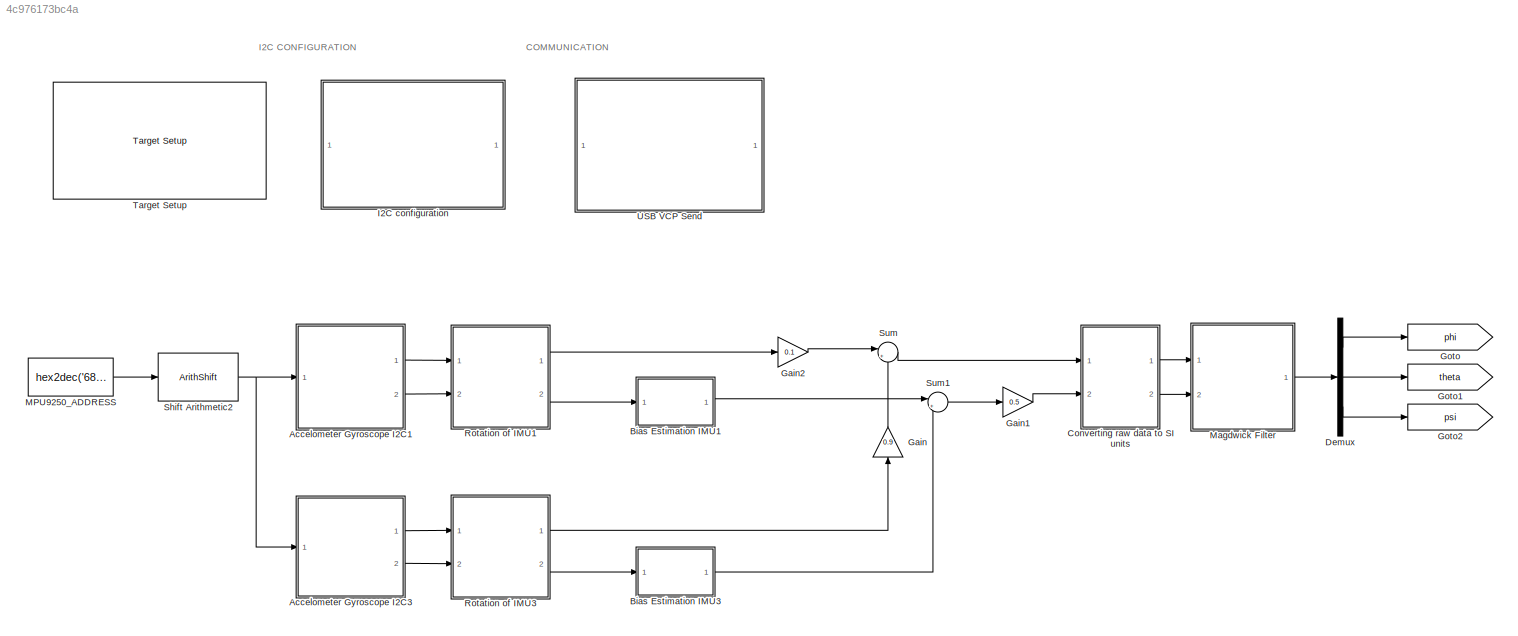
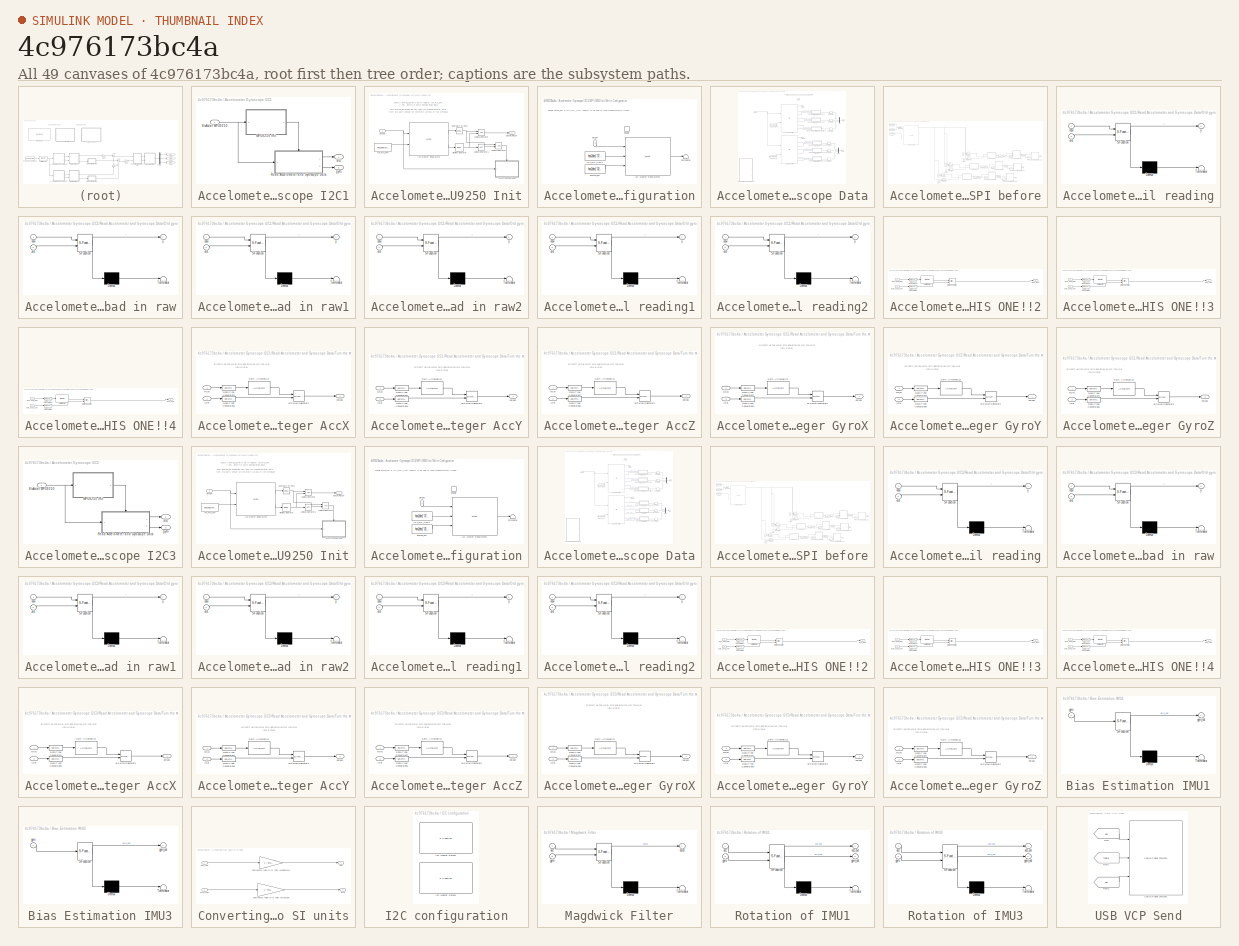
[diagram: thumbnail index - all 49 canvases of the model, root first then tree order]
MODEL slx_4c976173bc4a
KIND model
CONFIG AbsTol = auto
CONFIG EnableMultiTasking = off
CONFIG FixedStep = auto
CONFIG InitFcn = cubeparameters
CONFIG MaxStep = auto
CONFIG MinStep = auto
CONFIG PreLoadFcn = waijung.modelPreload; % Required for working with Waijung Blockset. Do not remove.
CONFIG RelTol = 1e-3
CONFIG SampleTimeConstraint = Unconstrained
CONFIG Solver = FixedStepAuto
CONFIG SolverName = FixedStepAuto
CONFIG StartTime = 0.0
CONFIG StopTime = 10.0
BLOCK [Constant]  MPU9250_ADDRESS
  OutDataTypeStr = uint8
  SampleTime = Ts.IMU
  Value = hex2dec('68')
BLOCK [SubSystem] Accelometer Gyroscope I2C1
  Ports = [1, 2]
  RequestExecContextInheritance = off
  Variant = off
BLOCK [SubSystem] Accelometer Gyroscope I2C1/MPU9250 Init
  Ports = [1, 1]
  RequestExecContextInheritance = off
  Variant = off
BLOCK [Reference] Accelometer Gyroscope I2C1/MPU9250 Init/Bitwise Operator  REF=simulink/Logic and Bit
Operations/Bitwise
Operator
  Ports = [1, 1]
  SourceBlock = simulink/Logic and Bit\nOperations/Bitwise\nOperator
  SourceType = Bitwise Operator
BLOCK [Reference] Accelometer Gyroscope I2C1/MPU9250 Init/Compare To Zero  REF=simulink/Logic and Bit
Operations/Compare
To Zero
  Ports = [1, 1]
  SourceBlock = simulink/Logic and Bit\nOperations/Compare\nTo Zero
  SourceType = Compare To Zero
BLOCK [Reference] Accelometer Gyroscope I2C1/MPU9250 Init/I2C Master Read//Write  REF=stm32f4_i2c_lib/I2C Master Read//Write
  Ports = [2, 2]
  SourceBlock = stm32f4_i2c_lib/I2C Master Read//Write
  SourceType = stm32f4_i2c
BLOCK [Constant] Accelometer Gyroscope I2C1/MPU9250 Init/INT_PIN_CFG
  OutDataTypeStr = uint8
  SampleTime = -1
  Value = hex2dec('37')
BLOCK [Logic] Accelometer Gyroscope I2C1/MPU9250 Init/Logical Operator
  AllPortsSameDT = off
  OutDataTypeStr = boolean
  Ports = [2, 1]
BLOCK [Logic] Accelometer Gyroscope I2C1/MPU9250 Init/Logical Operator1
  AllPortsSameDT = off
  Operator = NOT
  OutDataTypeStr = boolean
  Ports = [1, 1]
BLOCK [Logic] Accelometer Gyroscope I2C1/MPU9250 Init/Logical Operator2
  AllPortsSameDT = off
  OutDataTypeStr = boolean
  Ports = [2, 1]
BLOCK [Outport] Accelometer Gyroscope I2C1/MPU9250 Init/SETUP_READY
  IconDisplay = Port number
BLOCK [Inport] Accelometer Gyroscope I2C1/MPU9250 Init/SlvAddr
  IconDisplay = Port number
BLOCK [SubSystem] Accelometer Gyroscope I2C1/MPU9250 Init/Write Configuration
  Ports = [1, 0, 1]
  RequestExecContextInheritance = off
  Variant = off
BLOCK [Constant] Accelometer Gyroscope I2C1/MPU9250 Init/Write Configuration/BYPASS_EN
  OutDataTypeStr = uint8
  SampleTime = -1
  Value = hex2dec('02')
BLOCK [EnablePort] Accelometer Gyroscope I2C1/MPU9250 Init/Write Configuration/Enable
  Ports = []
BLOCK [Reference] Accelometer Gyroscope I2C1/MPU9250 Init/Write Configuration/I2C Master Read//Write1  REF=stm32f4_i2c_lib/I2C Master Read//Write
  Ports = [3, 1]
  SourceBlock = stm32f4_i2c_lib/I2C Master Read//Write
  SourceType = stm32f4_i2c
BLOCK [Constant] Accelometer Gyroscope I2C1/MPU9250 Init/Write Configuration/INT_PIN_CFG1
  OutDataTypeStr = uint8
  SampleTime = -1
  Value = hex2dec('37')
BLOCK [Inport] Accelometer Gyroscope I2C1/MPU9250 Init/Write Configuration/SlvAddr
  IconDisplay = Port number
BLOCK [Terminator] Accelometer Gyroscope I2C1/MPU9250 Init/Write Configuration/Terminator
BLOCK [SubSystem] Accelometer Gyroscope I2C1/Read Accelometer and Gyroscope Data
  Ports = [1, 2, 1]
  RequestExecContextInheritance = off
  Variant = off
BLOCK [Constant] Accelometer Gyroscope I2C1/Read Accelometer and Gyroscope Data/ACCEL_XOUT_H
  OutDataTypeStr = uint8
  SampleTime = -1
  Value = hex2dec('3B')
BLOCK [Terminator] Accelometer Gyroscope I2C1/Read Accelometer and Gyroscope Data/DUMMY
BLOCK [DataTypeConversion] Accelometer Gyroscope I2C1/Read Accelometer and Gyroscope Data/Data Type Conversion1
  OutDataTypeStr = int16
  RndMeth = Floor
  SaturateOnIntegerOverflow = off
BLOCK [DataTypeConversion] Accelometer Gyroscope I2C1/Read Accelometer and Gyroscope Data/Data Type Conversion12
  OutDataTypeStr = int16
  RndMeth = Floor
  SaturateOnIntegerOverflow = off
BLOCK [DataTypeConversion] Accelometer Gyroscope I2C1/Read Accelometer and Gyroscope Data/Data Type Conversion16
  OutDataTypeStr = int16
  RndMeth = Floor
  SaturateOnIntegerOverflow = off
BLOCK [DataTypeConversion] Accelometer Gyroscope I2C1/Read Accelometer and Gyroscope Data/Data Type Conversion17
  OutDataTypeStr = int16
  RndMeth = Floor
  SaturateOnIntegerOverflow = off
BLOCK [DataTypeConversion] Accelometer Gyroscope I2C1/Read Accelometer and Gyroscope Data/Data Type Conversion18
  OutDataTypeStr = int16
  RndMeth = Floor
  SaturateOnIntegerOverflow = off
BLOCK [DataTypeConversion] Accelometer Gyroscope I2C1/Read Accelometer and Gyroscope Data/Data Type Conversion6
  OutDataTypeStr = int16
  RndMeth = Floor
  SaturateOnIntegerOverflow = off
BLOCK [EnablePort] Accelometer Gyroscope I2C1/Read Accelometer and Gyroscope Data/Enable
  Ports = []
BLOCK [Constant] Accelometer Gyroscope I2C1/Read Accelometer and Gyroscope Data/GYRO_XOUT_H
  OutDataTypeStr = uint8
  SampleTime = -1
  Value = hex2dec('43')
BLOCK [Reference] Accelometer Gyroscope I2C1/Read Accelometer and Gyroscope Data/I2C Master Read//Write  REF=stm32f4_i2c_lib/I2C Master Read//Write
  Ports = [2, 7]
  SourceBlock = stm32f4_i2c_lib/I2C Master Read//Write
  SourceType = stm32f4_i2c
BLOCK [Reference] Accelometer Gyroscope I2C1/Read Accelometer and Gyroscope Data/I2C Master Read//Write2  REF=stm32f4_i2c_lib/I2C Master Read//Write
  Ports = [2, 7]
  SourceBlock = stm32f4_i2c_lib/I2C Master Read//Write
  SourceType = stm32f4_i2c
BLOCK [Mux] Accelometer Gyroscope I2C1/Read Accelometer and Gyroscope Data/Mux
  DisplayOption = bar
  Inputs = 3
  Ports = [3, 1]
BLOCK [Mux] Accelometer Gyroscope I2C1/Read Accelometer and Gyroscope Data/Mux1
  DisplayOption = bar
  Inputs = 3
  Ports = [3, 1]
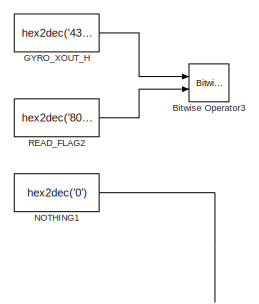
[diagram: Accelometer Gyroscope I2C1/Read Accelometer and Gyroscope Data/Old gyro get data Used during SPI before - part 1/4, top left region]
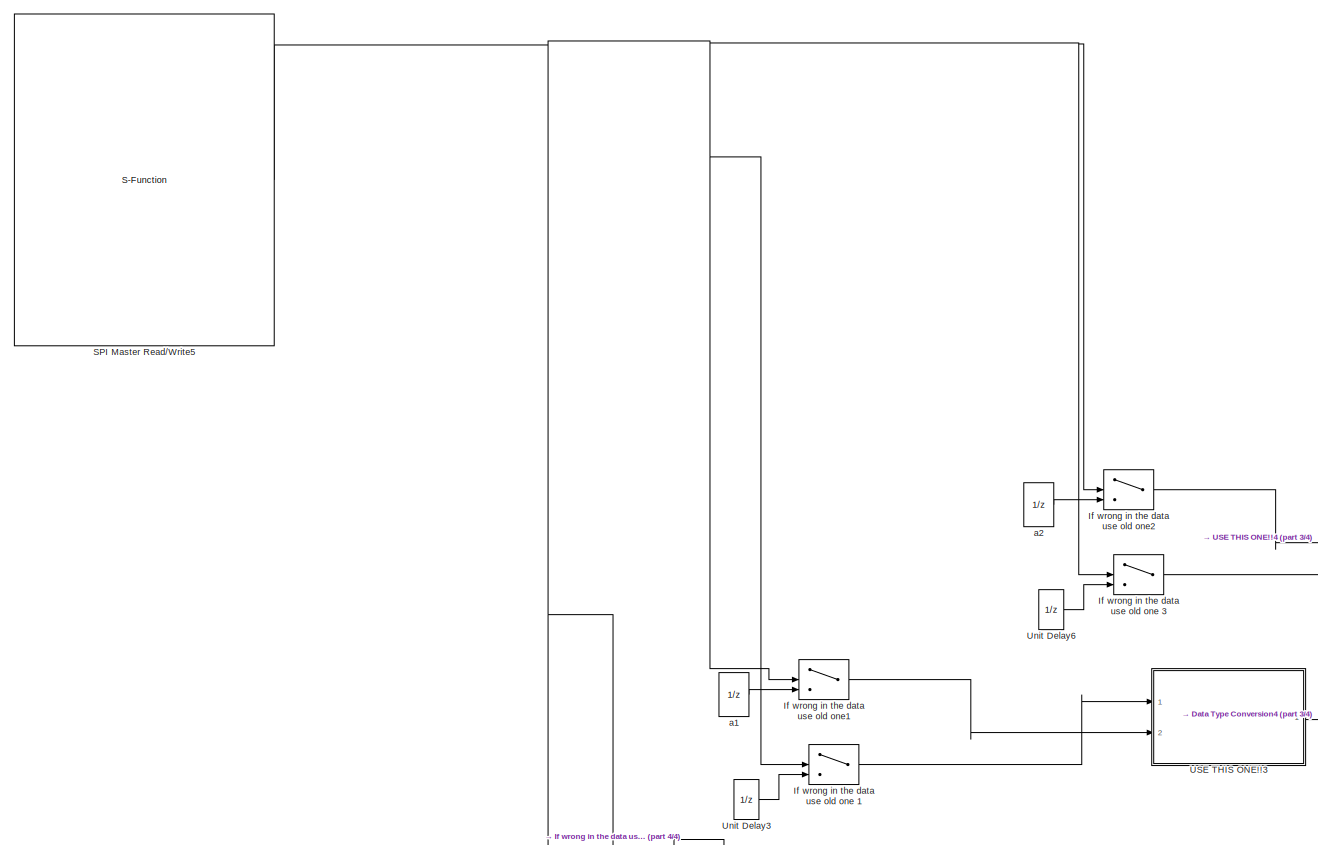
[diagram: Accelometer Gyroscope I2C1/Read Accelometer and Gyroscope Data/Old gyro get data Used during SPI before - part 2/4, center side, full height]
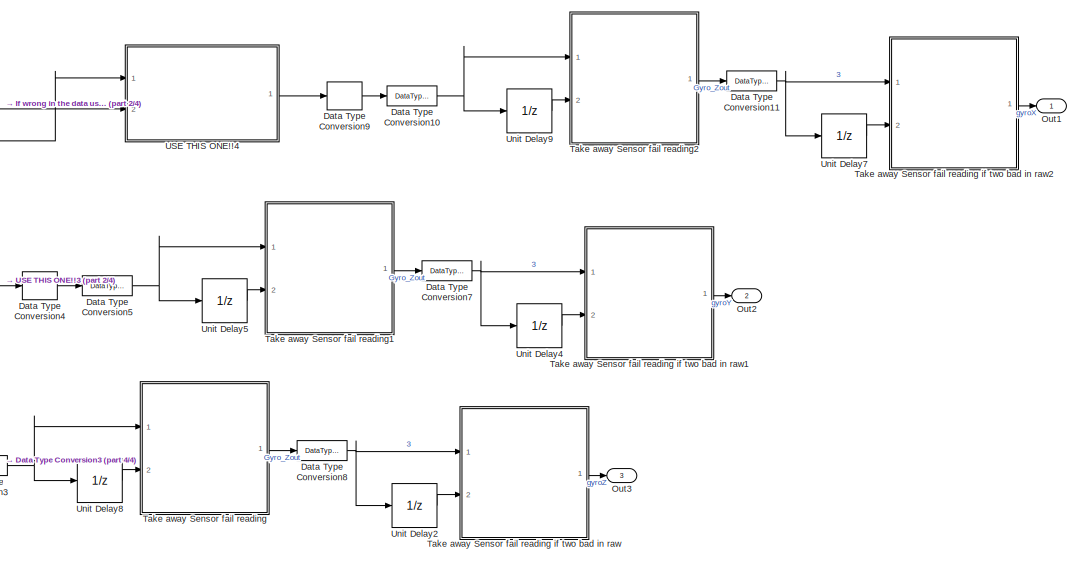
[diagram: Accelometer Gyroscope I2C1/Read Accelometer and Gyroscope Data/Old gyro get data Used during SPI before - part 3/4, bottom right region]
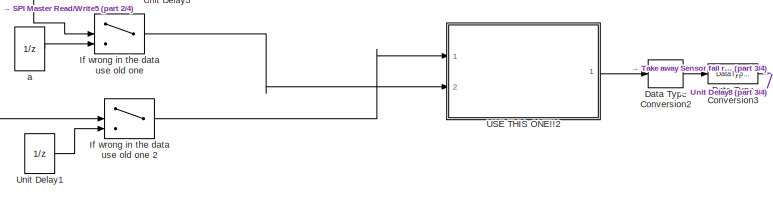
[diagram: Accelometer Gyroscope I2C1/Read Accelometer and Gyroscope Data/Old gyro get data Used during SPI before - part 4/4, bottom center region]
BLOCK [SubSystem] Accelometer Gyroscope I2C1/Read Accelometer and Gyroscope Data/Old gyro get data Used during SPI before
  Commented = on
  Ports = [0, 3]
  RequestExecContextInheritance = off
  Variant = off
BLOCK [UnitDelay] Accelometer Gyroscope I2C1/Read Accelometer and Gyroscope Data/Old gyro get data Used during SPI before/ a
  Commented = on
  InputProcessing = Elements as channels (sample based)
  SampleTime = -1
BLOCK [UnitDelay] Accelometer Gyroscope I2C1/Read Accelometer and Gyroscope Data/Old gyro get data Used during SPI before/ a1
  Commented = on
  InputProcessing = Elements as channels (sample based)
  SampleTime = -1
BLOCK [UnitDelay] Accelometer Gyroscope I2C1/Read Accelometer and Gyroscope Data/Old gyro get data Used during SPI before/ a2
  Commented = on
  InputProcessing = Elements as channels (sample based)
  SampleTime = -1
BLOCK [Reference] Accelometer Gyroscope I2C1/Read Accelometer and Gyroscope Data/Old gyro get data Used during SPI before/Bitwise Operator3  REF=simulink/Logic and Bit
Operations/Bitwise
Operator
  Commented = on
  Ports = [2, 1]
  SourceBlock = simulink/Logic and Bit\nOperations/Bitwise\nOperator
  SourceType = Bitwise Operator
BLOCK [DataTypeConversion] Accelometer Gyroscope I2C1/Read Accelometer and Gyroscope Data/Old gyro get data Used during SPI before/Data Type Conversion10
  Commented = on
  RndMeth = Floor
  SaturateOnIntegerOverflow = off
BLOCK [DataTypeConversion] Accelometer Gyroscope I2C1/Read Accelometer and Gyroscope Data/Old gyro get data Used during SPI before/Data Type Conversion11
  Commented = on
  RndMeth = Floor
  SaturateOnIntegerOverflow = off
BLOCK [DataTypeConversion] Accelometer Gyroscope I2C1/Read Accelometer and Gyroscope Data/Old gyro get data Used during SPI before/Data Type Conversion2
  Commented = on
  OutDataTypeStr = int16
  RndMeth = Floor
  SaturateOnIntegerOverflow = off
BLOCK [DataTypeConversion] Accelometer Gyroscope I2C1/Read Accelometer and Gyroscope Data/Old gyro get data Used during SPI before/Data Type Conversion3
  Commented = on
  RndMeth = Floor
  SaturateOnIntegerOverflow = off
BLOCK [DataTypeConversion] Accelometer Gyroscope I2C1/Read Accelometer and Gyroscope Data/Old gyro get data Used during SPI before/Data Type Conversion4
  Commented = on
  OutDataTypeStr = int16
  RndMeth = Floor
  SaturateOnIntegerOverflow = off
BLOCK [DataTypeConversion] Accelometer Gyroscope I2C1/Read Accelometer and Gyroscope Data/Old gyro get data Used during SPI before/Data Type Conversion5
  Commented = on
  RndMeth = Floor
  SaturateOnIntegerOverflow = off
BLOCK [DataTypeConversion] Accelometer Gyroscope I2C1/Read Accelometer and Gyroscope Data/Old gyro get data Used during SPI before/Data Type Conversion7
  Commented = on
  RndMeth = Floor
  SaturateOnIntegerOverflow = off
BLOCK [DataTypeConversion] Accelometer Gyroscope I2C1/Read Accelometer and Gyroscope Data/Old gyro get data Used during SPI before/Data Type Conversion8
  Commented = on
  RndMeth = Floor
  SaturateOnIntegerOverflow = off
BLOCK [DataTypeConversion] Accelometer Gyroscope I2C1/Read Accelometer and Gyroscope Data/Old gyro get data Used during SPI before/Data Type Conversion9
  Commented = on
  OutDataTypeStr = int16
  RndMeth = Floor
  SaturateOnIntegerOverflow = off
BLOCK [Constant] Accelometer Gyroscope I2C1/Read Accelometer and Gyroscope Data/Old gyro get data Used during SPI before/GYRO_XOUT_H
  Commented = on
  OutDataTypeStr = uint8
  Value = hex2dec('43')
BLOCK [Switch] Accelometer Gyroscope I2C1/Read Accelometer and Gyroscope Data/Old gyro get data Used during SPI before/If wrong in the data use old one
  Commented = on
  Criteria = u2 ~= 0
  InputSameDT = off
  SaturateOnIntegerOverflow = off
BLOCK [Switch] Accelometer Gyroscope I2C1/Read Accelometer and Gyroscope Data/Old gyro get data Used during SPI before/If wrong in the data use old one 1
  Commented = on
  Criteria = u2 ~= 0
  InputSameDT = off
  SaturateOnIntegerOverflow = off
BLOCK [Switch] Accelometer Gyroscope I2C1/Read Accelometer and Gyroscope Data/Old gyro get data Used during SPI before/If wrong in the data use old one 2
  Commented = on
  Criteria = u2 ~= 0
  InputSameDT = off
  SaturateOnIntegerOverflow = off
BLOCK [Switch] Accelometer Gyroscope I2C1/Read Accelometer and Gyroscope Data/Old gyro get data Used during SPI before/If wrong in the data use old one 3
  Commented = on
  Criteria = u2 ~= 0
  InputSameDT = off
  SaturateOnIntegerOverflow = off
BLOCK [Switch] Accelometer Gyroscope I2C1/Read Accelometer and Gyroscope Data/Old gyro get data Used during SPI before/If wrong in the data use old one1
  Commented = on
  Criteria = u2 ~= 0
  InputSameDT = off
  SaturateOnIntegerOverflow = off
BLOCK [Switch] Accelometer Gyroscope I2C1/Read Accelometer and Gyroscope Data/Old gyro get data Used during SPI before/If wrong in the data use old one2
  Commented = on
  Criteria = u2 ~= 0
  InputSameDT = off
  SaturateOnIntegerOverflow = off
BLOCK [Constant] Accelometer Gyroscope I2C1/Read Accelometer and Gyroscope Data/Old gyro get data Used during SPI before/NOTHING1
  Commented = on
  OutDataTypeStr = uint8
  Value = hex2dec('0')
BLOCK [Outport] Accelometer Gyroscope I2C1/Read Accelometer and Gyroscope Data/Old gyro get data Used during SPI before/Out1
  IconDisplay = Port number
BLOCK [Outport] Accelometer Gyroscope I2C1/Read Accelometer and Gyroscope Data/Old gyro get data Used during SPI before/Out2
  IconDisplay = Port number
  Port = 2
BLOCK [Outport] Accelometer Gyroscope I2C1/Read Accelometer and Gyroscope Data/Old gyro get data Used during SPI before/Out3
  IconDisplay = Port number
  Port = 3
BLOCK [Constant] Accelometer Gyroscope I2C1/Read Accelometer and Gyroscope Data/Old gyro get data Used during SPI before/READ_FLAG2
  Commented = on
  OutDataTypeStr = uint8
  Value = hex2dec('80')
BLOCK [S-Function] Accelometer Gyroscope I2C1/Read Accelometer and Gyroscope Data/Old gyro get data Used during SPI before/SPI Master Read//Write5
  Commented = on
  EnableBusSupport = off
  FunctionName = stm32f4_spimaster
  Parameters = mode,configuration,module,datacount,inputtypearray,outputtypearray,confstr,sampletime,sampletimestr,blockid
  Ports = [0, 1]
  SFcnIsStateOwnerBlock = off
  SFunctionDeploymentMode = off
BLOCK [SubSystem] Accelometer Gyroscope I2C1/Read Accelometer and Gyroscope Data/Old gyro get data Used during SPI before/Take away Sensor fail reading
  Commented = on
  ErrorFcn = Stateflow.Translate.translate
  PermitHierarchicalResolution = ExplicitOnly
  Ports = [2, 1]
  RequestExecContextInheritance = off
  SFBlockType = MATLAB Function
  TreatAsAtomicUnit = on
  Variant = off
BLOCK [SubSystem] Accelometer Gyroscope I2C1/Read Accelometer and Gyroscope Data/Old gyro get data Used during SPI before/Take away Sensor fail reading if two bad in raw
  Commented = on
  ErrorFcn = Stateflow.Translate.translate
  PermitHierarchicalResolution = ExplicitOnly
  Ports = [2, 1]
  RequestExecContextInheritance = off
  SFBlockType = MATLAB Function
  TreatAsAtomicUnit = on
  Variant = off
BLOCK [Demux] Accelometer Gyroscope I2C1/Read Accelometer and Gyroscope Data/Old gyro get data Used during SPI before/Take away Sensor fail reading if two bad in raw/ Demux 
  Outputs = 1
  Ports = [1, 1]
BLOCK [S-Function] Accelometer Gyroscope I2C1/Read Accelometer and Gyroscope Data/Old gyro get data Used during SPI before/Take away Sensor fail reading if two bad in raw/ SFunction 
  EnableBusSupport = on
  FunctionName = sf_sfun
  PortCounts = [2 2]
  Ports = [2, 2]
  SFcnIsStateOwnerBlock = off
  SFunctionDeploymentMode = off
  Tag = Stateflow S-Function I2C_communication 29
BLOCK [Terminator] Accelometer Gyroscope I2C1/Read Accelometer and Gyroscope Data/Old gyro get data Used during SPI before/Take away Sensor fail reading if two bad in raw/ Terminator 
BLOCK [Inport] Accelometer Gyroscope I2C1/Read Accelometer and Gyroscope Data/Old gyro get data Used during SPI before/Take away Sensor fail reading if two bad in raw/new
  IconDisplay = Port number
BLOCK [Inport] Accelometer Gyroscope I2C1/Read Accelometer and Gyroscope Data/Old gyro get data Used during SPI before/Take away Sensor fail reading if two bad in raw/old
  IconDisplay = Port number
  Port = 2
BLOCK [Outport] Accelometer Gyroscope I2C1/Read Accelometer and Gyroscope Data/Old gyro get data Used during SPI before/Take away Sensor fail reading if two bad in raw/y
  IconDisplay = Port number
BLOCK [SubSystem] Accelometer Gyroscope I2C1/Read Accelometer and Gyroscope Data/Old gyro get data Used during SPI before/Take away Sensor fail reading if two bad in raw1
  Commented = on
  ErrorFcn = Stateflow.Translate.translate
  PermitHierarchicalResolution = ExplicitOnly
  Ports = [2, 1]
  RequestExecContextInheritance = off
  SFBlockType = MATLAB Function
  TreatAsAtomicUnit = on
  Variant = off
BLOCK [Demux] Accelometer Gyroscope I2C1/Read Accelometer and Gyroscope Data/Old gyro get data Used during SPI before/Take away Sensor fail reading if two bad in raw1/ Demux 
  Outputs = 1
  Ports = [1, 1]
BLOCK [S-Function] Accelometer Gyroscope I2C1/Read Accelometer and Gyroscope Data/Old gyro get data Used during SPI before/Take away Sensor fail reading if two bad in raw1/ SFunction 
  EnableBusSupport = on
  FunctionName = sf_sfun
  PortCounts = [2 2]
  Ports = [2, 2]
  SFcnIsStateOwnerBlock = off
  SFunctionDeploymentMode = off
  Tag = Stateflow S-Function I2C_communication 30
BLOCK [Terminator] Accelometer Gyroscope I2C1/Read Accelometer and Gyroscope Data/Old gyro get data Used during SPI before/Take away Sensor fail reading if two bad in raw1/ Terminator 
BLOCK [Inport] Accelometer Gyroscope I2C1/Read Accelometer and Gyroscope Data/Old gyro get data Used during SPI before/Take away Sensor fail reading if two bad in raw1/new
  IconDisplay = Port number
BLOCK [Inport] Accelometer Gyroscope I2C1/Read Accelometer and Gyroscope Data/Old gyro get data Used during SPI before/Take away Sensor fail reading if two bad in raw1/old
  IconDisplay = Port number
  Port = 2
BLOCK [Outport] Accelometer Gyroscope I2C1/Read Accelometer and Gyroscope Data/Old gyro get data Used during SPI before/Take away Sensor fail reading if two bad in raw1/y
  IconDisplay = Port number
BLOCK [SubSystem] Accelometer Gyroscope I2C1/Read Accelometer and Gyroscope Data/Old gyro get data Used during SPI before/Take away Sensor fail reading if two bad in raw2
  Commented = on
  ErrorFcn = Stateflow.Translate.translate
  PermitHierarchicalResolution = ExplicitOnly
  Ports = [2, 1]
  RequestExecContextInheritance = off
  SFBlockType = MATLAB Function
  TreatAsAtomicUnit = on
  Variant = off
BLOCK [Demux] Accelometer Gyroscope I2C1/Read Accelometer and Gyroscope Data/Old gyro get data Used during SPI before/Take away Sensor fail reading if two bad in raw2/ Demux 
  Outputs = 1
  Ports = [1, 1]
BLOCK [S-Function] Accelometer Gyroscope I2C1/Read Accelometer and Gyroscope Data/Old gyro get data Used during SPI before/Take away Sensor fail reading if two bad in raw2/ SFunction 
  EnableBusSupport = on
  FunctionName = sf_sfun
  PortCounts = [2 2]
  Ports = [2, 2]
  SFcnIsStateOwnerBlock = off
  SFunctionDeploymentMode = off
  Tag = Stateflow S-Function I2C_communication 32
BLOCK [Terminator] Accelometer Gyroscope I2C1/Read Accelometer and Gyroscope Data/Old gyro get data Used during SPI before/Take away Sensor fail reading if two bad in raw2/ Terminator 
BLOCK [Inport] Accelometer Gyroscope I2C1/Read Accelometer and Gyroscope Data/Old gyro get data Used during SPI before/Take away Sensor fail reading if two bad in raw2/new
  IconDisplay = Port number
BLOCK [Inport] Accelometer Gyroscope I2C1/Read Accelometer and Gyroscope Data/Old gyro get data Used during SPI before/Take away Sensor fail reading if two bad in raw2/old
  IconDisplay = Port number
  Port = 2
BLOCK [Outport] Accelometer Gyroscope I2C1/Read Accelometer and Gyroscope Data/Old gyro get data Used during SPI before/Take away Sensor fail reading if two bad in raw2/y
  IconDisplay = Port number
BLOCK [Demux] Accelometer Gyroscope I2C1/Read Accelometer and Gyroscope Data/Old gyro get data Used during SPI before/Take away Sensor fail reading/ Demux 
  Outputs = 1
  Ports = [1, 1]
BLOCK [S-Function] Accelometer Gyroscope I2C1/Read Accelometer and Gyroscope Data/Old gyro get data Used during SPI before/Take away Sensor fail reading/ SFunction 
  EnableBusSupport = on
  FunctionName = sf_sfun
  PortCounts = [2 2]
  Ports = [2, 2]
  SFcnIsStateOwnerBlock = off
  SFunctionDeploymentMode = off
  Tag = Stateflow S-Function I2C_communication 28
BLOCK [Terminator] Accelometer Gyroscope I2C1/Read Accelometer and Gyroscope Data/Old gyro get data Used during SPI before/Take away Sensor fail reading/ Terminator 
BLOCK [Inport] Accelometer Gyroscope I2C1/Read Accelometer and Gyroscope Data/Old gyro get data Used during SPI before/Take away Sensor fail reading/new
  IconDisplay = Port number
BLOCK [Inport] Accelometer Gyroscope I2C1/Read Accelometer and Gyroscope Data/Old gyro get data Used during SPI before/Take away Sensor fail reading/old
  IconDisplay = Port number
  Port = 2
BLOCK [Outport] Accelometer Gyroscope I2C1/Read Accelometer and Gyroscope Data/Old gyro get data Used during SPI before/Take away Sensor fail reading/y
  IconDisplay = Port number
BLOCK [SubSystem] Accelometer Gyroscope I2C1/Read Accelometer and Gyroscope Data/Old gyro get data Used during SPI before/Take away Sensor fail reading1
  Commented = on
  ErrorFcn = Stateflow.Translate.translate
  PermitHierarchicalResolution = ExplicitOnly
  Ports = [2, 1]
  RequestExecContextInheritance = off
  SFBlockType = MATLAB Function
  TreatAsAtomicUnit = on
  Variant = off
BLOCK [Demux] Accelometer Gyroscope I2C1/Read Accelometer and Gyroscope Data/Old gyro get data Used during SPI before/Take away Sensor fail reading1/ Demux 
  Outputs = 1
  Ports = [1, 1]
BLOCK [S-Function] Accelometer Gyroscope I2C1/Read Accelometer and Gyroscope Data/Old gyro get data Used during SPI before/Take away Sensor fail reading1/ SFunction 
  EnableBusSupport = on
  FunctionName = sf_sfun
  PortCounts = [2 2]
  Ports = [2, 2]
  SFcnIsStateOwnerBlock = off
  SFunctionDeploymentMode = off
  Tag = Stateflow S-Function I2C_communication 31
BLOCK [Terminator] Accelometer Gyroscope I2C1/Read Accelometer and Gyroscope Data/Old gyro get data Used during SPI before/Take away Sensor fail reading1/ Terminator 
BLOCK [Inport] Accelometer Gyroscope I2C1/Read Accelometer and Gyroscope Data/Old gyro get data Used during SPI before/Take away Sensor fail reading1/new
  IconDisplay = Port number
BLOCK [Inport] Accelometer Gyroscope I2C1/Read Accelometer and Gyroscope Data/Old gyro get data Used during SPI before/Take away Sensor fail reading1/old
  IconDisplay = Port number
  Port = 2
BLOCK [Outport] Accelometer Gyroscope I2C1/Read Accelometer and Gyroscope Data/Old gyro get data Used during SPI before/Take away Sensor fail reading1/y
  IconDisplay = Port number
BLOCK [SubSystem] Accelometer Gyroscope I2C1/Read Accelometer and Gyroscope Data/Old gyro get data Used during SPI before/Take away Sensor fail reading2
  Commented = on
  ErrorFcn = Stateflow.Translate.translate
  PermitHierarchicalResolution = ExplicitOnly
  Ports = [2, 1]
  RequestExecContextInheritance = off
  SFBlockType = MATLAB Function
  TreatAsAtomicUnit = on
  Variant = off
BLOCK [Demux] Accelometer Gyroscope I2C1/Read Accelometer and Gyroscope Data/Old gyro get data Used during SPI before/Take away Sensor fail reading2/ Demux 
  Outputs = 1
  Ports = [1, 1]
BLOCK [S-Function] Accelometer Gyroscope I2C1/Read Accelometer and Gyroscope Data/Old gyro get data Used during SPI before/Take away Sensor fail reading2/ SFunction 
  EnableBusSupport = on
  FunctionName = sf_sfun
  PortCounts = [2 2]
  Ports = [2, 2]
  SFcnIsStateOwnerBlock = off
  SFunctionDeploymentMode = off
  Tag = Stateflow S-Function I2C_communication 33
BLOCK [Terminator] Accelometer Gyroscope I2C1/Read Accelometer and Gyroscope Data/Old gyro get data Used during SPI before/Take away Sensor fail reading2/ Terminator 
BLOCK [Inport] Accelometer Gyroscope I2C1/Read Accelometer and Gyroscope Data/Old gyro get data Used during SPI before/Take away Sensor fail reading2/new
  IconDisplay = Port number
BLOCK [Inport] Accelometer Gyroscope I2C1/Read Accelometer and Gyroscope Data/Old gyro get data Used during SPI before/Take away Sensor fail reading2/old
  IconDisplay = Port number
  Port = 2
BLOCK [Outport] Accelometer Gyroscope I2C1/Read Accelometer and Gyroscope Data/Old gyro get data Used during SPI before/Take away Sensor fail reading2/y
  IconDisplay = Port number
BLOCK [SubSystem] Accelometer Gyroscope I2C1/Read Accelometer and Gyroscope Data/Old gyro get data Used during SPI before/USE THIS ONE!!2
  Commented = on
  Ports = [2, 1]
  RequestExecContextInheritance = off
  Variant = off
BLOCK [Reference] Accelometer Gyroscope I2C1/Read Accelometer and Gyroscope Data/Old gyro get data Used during SPI before/USE THIS ONE!!2/Bitwise Operator  REF=simulink/Logic and Bit
Operations/Bitwise
Operator
  Ports = [2, 1]
  SourceBlock = simulink/Logic and Bit\nOperations/Bitwise\nOperator
  SourceType = Bitwise Operator
BLOCK [DataTypeConversion] Accelometer Gyroscope I2C1/Read Accelometer and Gyroscope Data/Old gyro get data Used during SPI before/USE THIS ONE!!2/Data Type Conversion
  OutDataTypeStr = uint16
  RndMeth = Floor
  SaturateOnIntegerOverflow = off
BLOCK [DataTypeConversion] Accelometer Gyroscope I2C1/Read Accelometer and Gyroscope Data/Old gyro get data Used during SPI before/USE THIS ONE!!2/Data Type Conversion1
  OutDataTypeStr = uint16
  RndMeth = Floor
  SaturateOnIntegerOverflow = off
BLOCK [Outport] Accelometer Gyroscope I2C1/Read Accelometer and Gyroscope Data/Old gyro get data Used during SPI before/USE THIS ONE!!2/Gyro_Zout
  IconDisplay = Port number
BLOCK [Inport] Accelometer Gyroscope I2C1/Read Accelometer and Gyroscope Data/Old gyro get data Used during SPI before/USE THIS ONE!!2/Gyro_Zout_High 
  IconDisplay = Port number
BLOCK [Inport] Accelometer Gyroscope I2C1/Read Accelometer and Gyroscope Data/Old gyro get data Used during SPI before/USE THIS ONE!!2/Gyro_Zout_Low
  IconDisplay = Port number
  Port = 2
BLOCK [ArithShift] Accelometer Gyroscope I2C1/Read Accelometer and Gyroscope Data/Old gyro get data Used during SPI before/USE THIS ONE!!2/Shift Arithmetic
  BitShiftNumber = -8
  InputPortMap = u0
  Ports = [1, 1]
BLOCK [SubSystem] Accelometer Gyroscope I2C1/Read Accelometer and Gyroscope Data/Old gyro get data Used during SPI before/USE THIS ONE!!3
  Commented = on
  Ports = [2, 1]
  RequestExecContextInheritance = off
  Variant = off
BLOCK [Reference] Accelometer Gyroscope I2C1/Read Accelometer and Gyroscope Data/Old gyro get data Used during SPI before/USE THIS ONE!!3/Bitwise Operator  REF=simulink/Logic and Bit
Operations/Bitwise
Operator
  Ports = [2, 1]
  SourceBlock = simulink/Logic and Bit\nOperations/Bitwise\nOperator
  SourceType = Bitwise Operator
BLOCK [DataTypeConversion] Accelometer Gyroscope I2C1/Read Accelometer and Gyroscope Data/Old gyro get data Used during SPI before/USE THIS ONE!!3/Data Type Conversion
  OutDataTypeStr = uint16
  RndMeth = Floor
  SaturateOnIntegerOverflow = off
BLOCK [DataTypeConversion] Accelometer Gyroscope I2C1/Read Accelometer and Gyroscope Data/Old gyro get data Used during SPI before/USE THIS ONE!!3/Data Type Conversion1
  OutDataTypeStr = uint16
  RndMeth = Floor
  SaturateOnIntegerOverflow = off
BLOCK [Outport] Accelometer Gyroscope I2C1/Read Accelometer and Gyroscope Data/Old gyro get data Used during SPI before/USE THIS ONE!!3/Gyro_Zout
  IconDisplay = Port number
BLOCK [Inport] Accelometer Gyroscope I2C1/Read Accelometer and Gyroscope Data/Old gyro get data Used during SPI before/USE THIS ONE!!3/Gyro_Zout_High 
  IconDisplay = Port number
BLOCK [Inport] Accelometer Gyroscope I2C1/Read Accelometer and Gyroscope Data/Old gyro get data Used during SPI before/USE THIS ONE!!3/Gyro_Zout_Low
  IconDisplay = Port number
  Port = 2
BLOCK [ArithShift] Accelometer Gyroscope I2C1/Read Accelometer and Gyroscope Data/Old gyro get data Used during SPI before/USE THIS ONE!!3/Shift Arithmetic
  BitShiftNumber = -8
  InputPortMap = u0
  Ports = [1, 1]
BLOCK [SubSystem] Accelometer Gyroscope I2C1/Read Accelometer and Gyroscope Data/Old gyro get data Used during SPI before/USE THIS ONE!!4
  Commented = on
  Ports = [2, 1]
  RequestExecContextInheritance = off
  Variant = off
BLOCK [Reference] Accelometer Gyroscope I2C1/Read Accelometer and Gyroscope Data/Old gyro get data Used during SPI before/USE THIS ONE!!4/Bitwise Operator  REF=simulink/Logic and Bit
Operations/Bitwise
Operator
  Ports = [2, 1]
  SourceBlock = simulink/Logic and Bit\nOperations/Bitwise\nOperator
  SourceType = Bitwise Operator
BLOCK [DataTypeConversion] Accelometer Gyroscope I2C1/Read Accelometer and Gyroscope Data/Old gyro get data Used during SPI before/USE THIS ONE!!4/Data Type Conversion
  OutDataTypeStr = uint16
  RndMeth = Floor
  SaturateOnIntegerOverflow = off
BLOCK [DataTypeConversion] Accelometer Gyroscope I2C1/Read Accelometer and Gyroscope Data/Old gyro get data Used during SPI before/USE THIS ONE!!4/Data Type Conversion1
  OutDataTypeStr = uint16
  RndMeth = Floor
  SaturateOnIntegerOverflow = off
BLOCK [Outport] Accelometer Gyroscope I2C1/Read Accelometer and Gyroscope Data/Old gyro get data Used during SPI before/USE THIS ONE!!4/Gyro_Zout
  IconDisplay = Port number
BLOCK [Inport] Accelometer Gyroscope I2C1/Read Accelometer and Gyroscope Data/Old gyro get data Used during SPI before/USE THIS ONE!!4/Gyro_Zout_High 
  IconDisplay = Port number
BLOCK [Inport] Accelometer Gyroscope I2C1/Read Accelometer and Gyroscope Data/Old gyro get data Used during SPI before/USE THIS ONE!!4/Gyro_Zout_Low
  IconDisplay = Port number
  Port = 2
BLOCK [ArithShift] Accelometer Gyroscope I2C1/Read Accelometer and Gyroscope Data/Old gyro get data Used during SPI before/USE THIS ONE!!4/Shift Arithmetic
  BitShiftNumber = -8
  InputPortMap = u0
  Ports = [1, 1]
BLOCK [UnitDelay] Accelometer Gyroscope I2C1/Read Accelometer and Gyroscope Data/Old gyro get data Used during SPI before/Unit Delay1
  Commented = on
  InputProcessing = Elements as channels (sample based)
  SampleTime = -1
BLOCK [UnitDelay] Accelometer Gyroscope I2C1/Read Accelometer and Gyroscope Data/Old gyro get data Used during SPI before/Unit Delay2
  Commented = on
  InitialCondition = -40.45
  InputProcessing = Elements as channels (sample based)
  SampleTime = -1
BLOCK [UnitDelay] Accelometer Gyroscope I2C1/Read Accelometer and Gyroscope Data/Old gyro get data Used during SPI before/Unit Delay3
  Commented = on
  InputProcessing = Elements as channels (sample based)
  SampleTime = -1
BLOCK [UnitDelay] Accelometer Gyroscope I2C1/Read Accelometer and Gyroscope Data/Old gyro get data Used during SPI before/Unit Delay4
  Commented = on
  InitialCondition = -40.45
  InputProcessing = Elements as channels (sample based)
  SampleTime = -1
BLOCK [UnitDelay] Accelometer Gyroscope I2C1/Read Accelometer and Gyroscope Data/Old gyro get data Used during SPI before/Unit Delay5
  Commented = on
  InitialCondition = -40.45
  InputProcessing = Elements as channels (sample based)
  SampleTime = -1
BLOCK [UnitDelay] Accelometer Gyroscope I2C1/Read Accelometer and Gyroscope Data/Old gyro get data Used during SPI before/Unit Delay6
  Commented = on
  InputProcessing = Elements as channels (sample based)
  SampleTime = -1
BLOCK [UnitDelay] Accelometer Gyroscope I2C1/Read Accelometer and Gyroscope Data/Old gyro get data Used during SPI before/Unit Delay7
  Commented = on
  InitialCondition = -40.45
  InputProcessing = Elements as channels (sample based)
  SampleTime = -1
BLOCK [UnitDelay] Accelometer Gyroscope I2C1/Read Accelometer and Gyroscope Data/Old gyro get data Used during SPI before/Unit Delay8
  Commented = on
  InitialCondition = -40.45
  InputProcessing = Elements as channels (sample based)
  SampleTime = -1
BLOCK [UnitDelay] Accelometer Gyroscope I2C1/Read Accelometer and Gyroscope Data/Old gyro get data Used during SPI before/Unit Delay9
  Commented = on
  InitialCondition = -40.45
  InputProcessing = Elements as channels (sample based)
  SampleTime = -1
BLOCK [Inport] Accelometer Gyroscope I2C1/Read Accelometer and Gyroscope Data/SlvAddr
  IconDisplay = Port number
BLOCK [Terminator] Accelometer Gyroscope I2C1/Read Accelometer and Gyroscope Data/Terminator
BLOCK [SubSystem] Accelometer Gyroscope I2C1/Read Accelometer and Gyroscope Data/Turn the MSB and LSB into a signed 16-bit integer AccX
  Ports = [2, 1]
  RequestExecContextInheritance = off
  Variant = off
BLOCK [Reference] Accelometer Gyroscope I2C1/Read Accelometer and Gyroscope Data/Turn the MSB and LSB into a signed 16-bit integer AccX/Bitwise Operator2  REF=simulink/Logic and Bit
Operations/Bitwise
Operator
  Ports = [2, 1]
  SourceBlock = simulink/Logic and Bit\nOperations/Bitwise\nOperator
  SourceType = Bitwise Operator
BLOCK [DataTypeConversion] Accelometer Gyroscope I2C1/Read Accelometer and Gyroscope Data/Turn the MSB and LSB into a signed 16-bit integer AccX/Data Type Conversion6
  OutDataTypeStr = uint16
  RndMeth = Floor
  SaturateOnIntegerOverflow = off
BLOCK [DataTypeConversion] Accelometer Gyroscope I2C1/Read Accelometer and Gyroscope Data/Turn the MSB and LSB into a signed 16-bit integer AccX/Data Type Conversion7
  OutDataTypeStr = uint16
  RndMeth = Floor
  SaturateOnIntegerOverflow = off
BLOCK [Inport] Accelometer Gyroscope I2C1/Read Accelometer and Gyroscope Data/Turn the MSB and LSB into a signed 16-bit integer AccX/LSB
  IconDisplay = Port number
  Port = 2
BLOCK [Inport] Accelometer Gyroscope I2C1/Read Accelometer and Gyroscope Data/Turn the MSB and LSB into a signed 16-bit integer AccX/MSB
  IconDisplay = Port number
BLOCK [ArithShift] Accelometer Gyroscope I2C1/Read Accelometer and Gyroscope Data/Turn the MSB and LSB into a signed 16-bit integer AccX/Shift Arithmetic2
  BitShiftNumber = -8
  InputPortMap = u0
  Ports = [1, 1]
BLOCK [Outport] Accelometer Gyroscope I2C1/Read Accelometer and Gyroscope Data/Turn the MSB and LSB into a signed 16-bit integer AccX/out16b
  IconDisplay = Port number
BLOCK [SubSystem] Accelometer Gyroscope I2C1/Read Accelometer and Gyroscope Data/Turn the MSB and LSB into a signed 16-bit integer AccY
  Ports = [2, 1]
  RequestExecContextInheritance = off
  Variant = off
BLOCK [Reference] Accelometer Gyroscope I2C1/Read Accelometer and Gyroscope Data/Turn the MSB and LSB into a signed 16-bit integer AccY/Bitwise Operator2  REF=simulink/Logic and Bit
Operations/Bitwise
Operator
  Ports = [2, 1]
  SourceBlock = simulink/Logic and Bit\nOperations/Bitwise\nOperator
  SourceType = Bitwise Operator
BLOCK [DataTypeConversion] Accelometer Gyroscope I2C1/Read Accelometer and Gyroscope Data/Turn the MSB and LSB into a signed 16-bit integer AccY/Data Type Conversion6
  OutDataTypeStr = uint16
  RndMeth = Floor
  SaturateOnIntegerOverflow = off
BLOCK [DataTypeConversion] Accelometer Gyroscope I2C1/Read Accelometer and Gyroscope Data/Turn the MSB and LSB into a signed 16-bit integer AccY/Data Type Conversion7
  OutDataTypeStr = uint16
  RndMeth = Floor
  SaturateOnIntegerOverflow = off
BLOCK [Inport] Accelometer Gyroscope I2C1/Read Accelometer and Gyroscope Data/Turn the MSB and LSB into a signed 16-bit integer AccY/LSB
  IconDisplay = Port number
  Port = 2
BLOCK [Inport] Accelometer Gyroscope I2C1/Read Accelometer and Gyroscope Data/Turn the MSB and LSB into a signed 16-bit integer AccY/MSB
  IconDisplay = Port number
BLOCK [ArithShift] Accelometer Gyroscope I2C1/Read Accelometer and Gyroscope Data/Turn the MSB and LSB into a signed 16-bit integer AccY/Shift Arithmetic2
  BitShiftNumber = -8
  InputPortMap = u0
  Ports = [1, 1]
BLOCK [Outport] Accelometer Gyroscope I2C1/Read Accelometer and Gyroscope Data/Turn the MSB and LSB into a signed 16-bit integer AccY/out16b
  IconDisplay = Port number
BLOCK [SubSystem] Accelometer Gyroscope I2C1/Read Accelometer and Gyroscope Data/Turn the MSB and LSB into a signed 16-bit integer AccZ
  Ports = [2, 1]
  RequestExecContextInheritance = off
  Variant = off
BLOCK [Reference] Accelometer Gyroscope I2C1/Read Accelometer and Gyroscope Data/Turn the MSB and LSB into a signed 16-bit integer AccZ/Bitwise Operator2  REF=simulink/Logic and Bit
Operations/Bitwise
Operator
  Ports = [2, 1]
  SourceBlock = simulink/Logic and Bit\nOperations/Bitwise\nOperator
  SourceType = Bitwise Operator
BLOCK [DataTypeConversion] Accelometer Gyroscope I2C1/Read Accelometer and Gyroscope Data/Turn the MSB and LSB into a signed 16-bit integer AccZ/Data Type Conversion6
  OutDataTypeStr = uint16
  RndMeth = Floor
  SaturateOnIntegerOverflow = off
BLOCK [DataTypeConversion] Accelometer Gyroscope I2C1/Read Accelometer and Gyroscope Data/Turn the MSB and LSB into a signed 16-bit integer AccZ/Data Type Conversion7
  OutDataTypeStr = uint16
  RndMeth = Floor
  SaturateOnIntegerOverflow = off
BLOCK [Inport] Accelometer Gyroscope I2C1/Read Accelometer and Gyroscope Data/Turn the MSB and LSB into a signed 16-bit integer AccZ/LSB
  IconDisplay = Port number
  Port = 2
BLOCK [Inport] Accelometer Gyroscope I2C1/Read Accelometer and Gyroscope Data/Turn the MSB and LSB into a signed 16-bit integer AccZ/MSB
  IconDisplay = Port number
BLOCK [ArithShift] Accelometer Gyroscope I2C1/Read Accelometer and Gyroscope Data/Turn the MSB and LSB into a signed 16-bit integer AccZ/Shift Arithmetic2
  BitShiftNumber = -8
  InputPortMap = u0
  Ports = [1, 1]
BLOCK [Outport] Accelometer Gyroscope I2C1/Read Accelometer and Gyroscope Data/Turn the MSB and LSB into a signed 16-bit integer AccZ/out16b
  IconDisplay = Port number
BLOCK [SubSystem] Accelometer Gyroscope I2C1/Read Accelometer and Gyroscope Data/Turn the MSB and LSB into a signed 16-bit integer GyroX
  Ports = [2, 1]
  RequestExecContextInheritance = off
  Variant = off
BLOCK [Reference] Accelometer Gyroscope I2C1/Read Accelometer and Gyroscope Data/Turn the MSB and LSB into a signed 16-bit integer GyroX/Bitwise Operator2  REF=simulink/Logic and Bit
Operations/Bitwise
Operator
  Ports = [2, 1]
  SourceBlock = simulink/Logic and Bit\nOperations/Bitwise\nOperator
  SourceType = Bitwise Operator
BLOCK [DataTypeConversion] Accelometer Gyroscope I2C1/Read Accelometer and Gyroscope Data/Turn the MSB and LSB into a signed 16-bit integer GyroX/Data Type Conversion6
  OutDataTypeStr = uint16
  RndMeth = Floor
  SaturateOnIntegerOverflow = off
BLOCK [DataTypeConversion] Accelometer Gyroscope I2C1/Read Accelometer and Gyroscope Data/Turn the MSB and LSB into a signed 16-bit integer GyroX/Data Type Conversion7
  OutDataTypeStr = uint16
  RndMeth = Floor
  SaturateOnIntegerOverflow = off
BLOCK [Inport] Accelometer Gyroscope I2C1/Read Accelometer and Gyroscope Data/Turn the MSB and LSB into a signed 16-bit integer GyroX/LSB
  IconDisplay = Port number
  Port = 2
BLOCK [Inport] Accelometer Gyroscope I2C1/Read Accelometer and Gyroscope Data/Turn the MSB and LSB into a signed 16-bit integer GyroX/MSB
  IconDisplay = Port number
BLOCK [ArithShift] Accelometer Gyroscope I2C1/Read Accelometer and Gyroscope Data/Turn the MSB and LSB into a signed 16-bit integer GyroX/Shift Arithmetic2
  BitShiftNumber = -8
  InputPortMap = u0
  Ports = [1, 1]
BLOCK [Outport] Accelometer Gyroscope I2C1/Read Accelometer and Gyroscope Data/Turn the MSB and LSB into a signed 16-bit integer GyroX/out16b
  IconDisplay = Port number
BLOCK [SubSystem] Accelometer Gyroscope I2C1/Read Accelometer and Gyroscope Data/Turn the MSB and LSB into a signed 16-bit integer GyroY
  Ports = [2, 1]
  RequestExecContextInheritance = off
  Variant = off
BLOCK [Reference] Accelometer Gyroscope I2C1/Read Accelometer and Gyroscope Data/Turn the MSB and LSB into a signed 16-bit integer GyroY/Bitwise Operator2  REF=simulink/Logic and Bit
Operations/Bitwise
Operator
  Ports = [2, 1]
  SourceBlock = simulink/Logic and Bit\nOperations/Bitwise\nOperator
  SourceType = Bitwise Operator
BLOCK [DataTypeConversion] Accelometer Gyroscope I2C1/Read Accelometer and Gyroscope Data/Turn the MSB and LSB into a signed 16-bit integer GyroY/Data Type Conversion6
  OutDataTypeStr = uint16
  RndMeth = Floor
  SaturateOnIntegerOverflow = off
BLOCK [DataTypeConversion] Accelometer Gyroscope I2C1/Read Accelometer and Gyroscope Data/Turn the MSB and LSB into a signed 16-bit integer GyroY/Data Type Conversion7
  OutDataTypeStr = uint16
  RndMeth = Floor
  SaturateOnIntegerOverflow = off
BLOCK [Inport] Accelometer Gyroscope I2C1/Read Accelometer and Gyroscope Data/Turn the MSB and LSB into a signed 16-bit integer GyroY/LSB
  IconDisplay = Port number
  Port = 2
BLOCK [Inport] Accelometer Gyroscope I2C1/Read Accelometer and Gyroscope Data/Turn the MSB and LSB into a signed 16-bit integer GyroY/MSB
  IconDisplay = Port number
BLOCK [ArithShift] Accelometer Gyroscope I2C1/Read Accelometer and Gyroscope Data/Turn the MSB and LSB into a signed 16-bit integer GyroY/Shift Arithmetic2
  BitShiftNumber = -8
  InputPortMap = u0
  Ports = [1, 1]
BLOCK [Outport] Accelometer Gyroscope I2C1/Read Accelometer and Gyroscope Data/Turn the MSB and LSB into a signed 16-bit integer GyroY/out16b
  IconDisplay = Port number
BLOCK [SubSystem] Accelometer Gyroscope I2C1/Read Accelometer and Gyroscope Data/Turn the MSB and LSB into a signed 16-bit integer GyroZ
  Ports = [2, 1]
  RequestExecContextInheritance = off
  Variant = off
BLOCK [Reference] Accelometer Gyroscope I2C1/Read Accelometer and Gyroscope Data/Turn the MSB and LSB into a signed 16-bit integer GyroZ/Bitwise Operator2  REF=simulink/Logic and Bit
Operations/Bitwise
Operator
  Ports = [2, 1]
  SourceBlock = simulink/Logic and Bit\nOperations/Bitwise\nOperator
  SourceType = Bitwise Operator
BLOCK [DataTypeConversion] Accelometer Gyroscope I2C1/Read Accelometer and Gyroscope Data/Turn the MSB and LSB into a signed 16-bit integer GyroZ/Data Type Conversion6
  OutDataTypeStr = uint16
  RndMeth = Floor
  SaturateOnIntegerOverflow = off
BLOCK [DataTypeConversion] Accelometer Gyroscope I2C1/Read Accelometer and Gyroscope Data/Turn the MSB and LSB into a signed 16-bit integer GyroZ/Data Type Conversion7
  OutDataTypeStr = uint16
  RndMeth = Floor
  SaturateOnIntegerOverflow = off
BLOCK [Inport] Accelometer Gyroscope I2C1/Read Accelometer and Gyroscope Data/Turn the MSB and LSB into a signed 16-bit integer GyroZ/LSB
  IconDisplay = Port number
  Port = 2
BLOCK [Inport] Accelometer Gyroscope I2C1/Read Accelometer and Gyroscope Data/Turn the MSB and LSB into a signed 16-bit integer GyroZ/MSB
  IconDisplay = Port number
BLOCK [ArithShift] Accelometer Gyroscope I2C1/Read Accelometer and Gyroscope Data/Turn the MSB and LSB into a signed 16-bit integer GyroZ/Shift Arithmetic2
  BitShiftNumber = -8
  InputPortMap = u0
  Ports = [1, 1]
BLOCK [Outport] Accelometer Gyroscope I2C1/Read Accelometer and Gyroscope Data/Turn the MSB and LSB into a signed 16-bit integer GyroZ/out16b
  IconDisplay = Port number
BLOCK [Outport] Accelometer Gyroscope I2C1/Read Accelometer and Gyroscope Data/acc
  IconDisplay = Port number
BLOCK [Outport] Accelometer Gyroscope I2C1/Read Accelometer and Gyroscope Data/gyro
  IconDisplay = Port number
  Port = 2
BLOCK [Inport] Accelometer Gyroscope I2C1/SlvAddr MPU9250
  IconDisplay = Port number
BLOCK [Outport] Accelometer Gyroscope I2C1/acc
  IconDisplay = Port number
BLOCK [Outport] Accelometer Gyroscope I2C1/gyro
  IconDisplay = Port number
  Port = 2
BLOCK [SubSystem] Accelometer Gyroscope I2C3
  Ports = [1, 2]
  RequestExecContextInheritance = off
  Variant = off
BLOCK [SubSystem] Accelometer Gyroscope I2C3/MPU9250 Init
  Ports = [1, 1]
  RequestExecContextInheritance = off
  Variant = off
BLOCK [Reference] Accelometer Gyroscope I2C3/MPU9250 Init/Bitwise Operator  REF=simulink/Logic and Bit
Operations/Bitwise
Operator
  Ports = [1, 1]
  SourceBlock = simulink/Logic and Bit\nOperations/Bitwise\nOperator
  SourceType = Bitwise Operator
BLOCK [Reference] Accelometer Gyroscope I2C3/MPU9250 Init/Compare To Zero  REF=simulink/Logic and Bit
Operations/Compare
To Zero
  Ports = [1, 1]
  SourceBlock = simulink/Logic and Bit\nOperations/Compare\nTo Zero
  SourceType = Compare To Zero
BLOCK [Reference] Accelometer Gyroscope I2C3/MPU9250 Init/I2C Master Read//Write  REF=stm32f4_i2c_lib/I2C Master Read//Write
  Ports = [2, 2]
  SourceBlock = stm32f4_i2c_lib/I2C Master Read//Write
  SourceType = stm32f4_i2c
BLOCK [Constant] Accelometer Gyroscope I2C3/MPU9250 Init/INT_PIN_CFG
  OutDataTypeStr = uint8
  SampleTime = -1
  Value = hex2dec('37')
BLOCK [Logic] Accelometer Gyroscope I2C3/MPU9250 Init/Logical Operator
  AllPortsSameDT = off
  OutDataTypeStr = boolean
  Ports = [2, 1]
BLOCK [Logic] Accelometer Gyroscope I2C3/MPU9250 Init/Logical Operator1
  AllPortsSameDT = off
  Operator = NOT
  OutDataTypeStr = boolean
  Ports = [1, 1]
BLOCK [Logic] Accelometer Gyroscope I2C3/MPU9250 Init/Logical Operator2
  AllPortsSameDT = off
  OutDataTypeStr = boolean
  Ports = [2, 1]
BLOCK [Outport] Accelometer Gyroscope I2C3/MPU9250 Init/SETUP_READY
  IconDisplay = Port number
BLOCK [Inport] Accelometer Gyroscope I2C3/MPU9250 Init/SlvAddr
  IconDisplay = Port number
BLOCK [SubSystem] Accelometer Gyroscope I2C3/MPU9250 Init/Write Configuration
  Ports = [1, 0, 1]
  RequestExecContextInheritance = off
  Variant = off
BLOCK [Constant] Accelometer Gyroscope I2C3/MPU9250 Init/Write Configuration/BYPASS_EN
  OutDataTypeStr = uint8
  SampleTime = -1
  Value = hex2dec('02')
BLOCK [EnablePort] Accelometer Gyroscope I2C3/MPU9250 Init/Write Configuration/Enable
  Ports = []
BLOCK [Reference] Accelometer Gyroscope I2C3/MPU9250 Init/Write Configuration/I2C Master Read//Write1  REF=stm32f4_i2c_lib/I2C Master Read//Write
  Ports = [3, 1]
  SourceBlock = stm32f4_i2c_lib/I2C Master Read//Write
  SourceType = stm32f4_i2c
BLOCK [Constant] Accelometer Gyroscope I2C3/MPU9250 Init/Write Configuration/INT_PIN_CFG1
  OutDataTypeStr = uint8
  SampleTime = -1
  Value = hex2dec('37')
BLOCK [Inport] Accelometer Gyroscope I2C3/MPU9250 Init/Write Configuration/SlvAddr
  IconDisplay = Port number
BLOCK [Terminator] Accelometer Gyroscope I2C3/MPU9250 Init/Write Configuration/Terminator
BLOCK [SubSystem] Accelometer Gyroscope I2C3/Read Accelometer and Gyroscope Data
  Ports = [1, 2, 1]
  RequestExecContextInheritance = off
  Variant = off
BLOCK [Constant] Accelometer Gyroscope I2C3/Read Accelometer and Gyroscope Data/ACCEL_XOUT_H
  OutDataTypeStr = uint8
  SampleTime = -1
  Value = hex2dec('3B')
BLOCK [Terminator] Accelometer Gyroscope I2C3/Read Accelometer and Gyroscope Data/DUMMY
BLOCK [Terminator] Accelometer Gyroscope I2C3/Read Accelometer and Gyroscope Data/DUMMY2
BLOCK [DataTypeConversion] Accelometer Gyroscope I2C3/Read Accelometer and Gyroscope Data/Data Type Conversion1
  OutDataTypeStr = int16
  RndMeth = Floor
  SaturateOnIntegerOverflow = off
BLOCK [DataTypeConversion] Accelometer Gyroscope I2C3/Read Accelometer and Gyroscope Data/Data Type Conversion12
  OutDataTypeStr = int16
  RndMeth = Floor
  SaturateOnIntegerOverflow = off
BLOCK [DataTypeConversion] Accelometer Gyroscope I2C3/Read Accelometer and Gyroscope Data/Data Type Conversion16
  OutDataTypeStr = int16
  RndMeth = Floor
  SaturateOnIntegerOverflow = off
BLOCK [DataTypeConversion] Accelometer Gyroscope I2C3/Read Accelometer and Gyroscope Data/Data Type Conversion17
  OutDataTypeStr = int16
  RndMeth = Floor
  SaturateOnIntegerOverflow = off
BLOCK [DataTypeConversion] Accelometer Gyroscope I2C3/Read Accelometer and Gyroscope Data/Data Type Conversion18
  OutDataTypeStr = int16
  RndMeth = Floor
  SaturateOnIntegerOverflow = off
BLOCK [DataTypeConversion] Accelometer Gyroscope I2C3/Read Accelometer and Gyroscope Data/Data Type Conversion6
  OutDataTypeStr = int16
  RndMeth = Floor
  SaturateOnIntegerOverflow = off
BLOCK [EnablePort] Accelometer Gyroscope I2C3/Read Accelometer and Gyroscope Data/Enable
  Ports = []
BLOCK [Constant] Accelometer Gyroscope I2C3/Read Accelometer and Gyroscope Data/GYRO_XOUT_H
  OutDataTypeStr = uint8
  SampleTime = -1
  Value = hex2dec('43')
BLOCK [Reference] Accelometer Gyroscope I2C3/Read Accelometer and Gyroscope Data/I2C Master Read//Write1  REF=stm32f4_i2c_lib/I2C Master Read//Write
  Ports = [2, 7]
  SourceBlock = stm32f4_i2c_lib/I2C Master Read//Write
  SourceType = stm32f4_i2c
BLOCK [Reference] Accelometer Gyroscope I2C3/Read Accelometer and Gyroscope Data/I2C Master Read//Write2  REF=stm32f4_i2c_lib/I2C Master Read//Write
  Ports = [2, 7]
  SourceBlock = stm32f4_i2c_lib/I2C Master Read//Write
  SourceType = stm32f4_i2c
BLOCK [Mux] Accelometer Gyroscope I2C3/Read Accelometer and Gyroscope Data/Mux
  DisplayOption = bar
  Inputs = 3
  Ports = [3, 1]
BLOCK [Mux] Accelometer Gyroscope I2C3/Read Accelometer and Gyroscope Data/Mux1
  DisplayOption = bar
  Inputs = 3
  Ports = [3, 1]
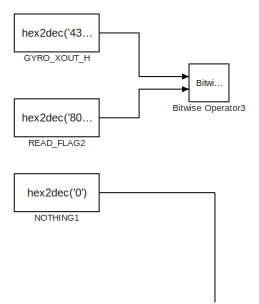
[diagram: Accelometer Gyroscope I2C3/Read Accelometer and Gyroscope Data/Old gyro get data Used during SPI before - part 1/4, top left region]
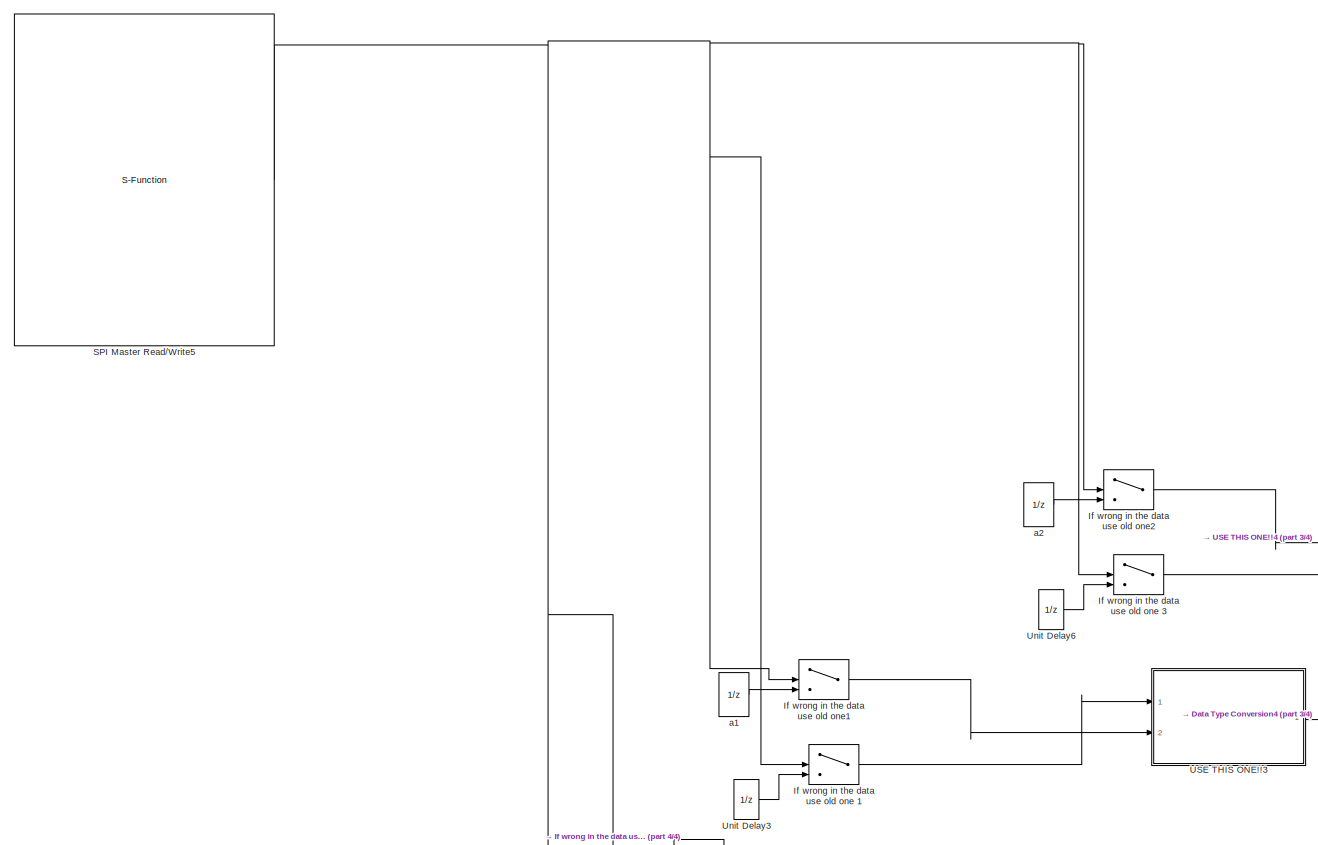
[diagram: Accelometer Gyroscope I2C3/Read Accelometer and Gyroscope Data/Old gyro get data Used during SPI before - part 2/4, center side, full height]
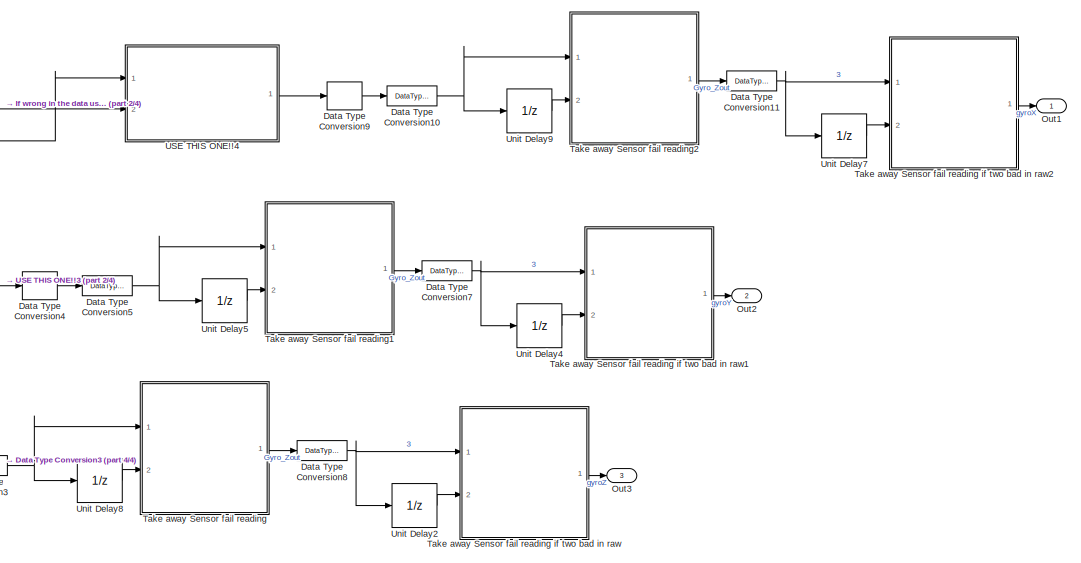
[diagram: Accelometer Gyroscope I2C3/Read Accelometer and Gyroscope Data/Old gyro get data Used during SPI before - part 3/4, bottom right region]
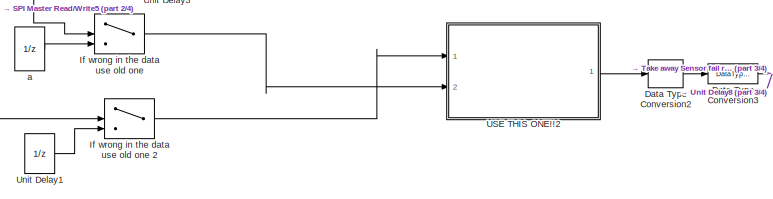
[diagram: Accelometer Gyroscope I2C3/Read Accelometer and Gyroscope Data/Old gyro get data Used during SPI before - part 4/4, bottom center region]
BLOCK [SubSystem] Accelometer Gyroscope I2C3/Read Accelometer and Gyroscope Data/Old gyro get data Used during SPI before
  Commented = on
  Ports = [0, 3]
  RequestExecContextInheritance = off
  Variant = off
BLOCK [UnitDelay] Accelometer Gyroscope I2C3/Read Accelometer and Gyroscope Data/Old gyro get data Used during SPI before/ a
  Commented = on
  InputProcessing = Elements as channels (sample based)
  SampleTime = -1
BLOCK [UnitDelay] Accelometer Gyroscope I2C3/Read Accelometer and Gyroscope Data/Old gyro get data Used during SPI before/ a1
  Commented = on
  InputProcessing = Elements as channels (sample based)
  SampleTime = -1
BLOCK [UnitDelay] Accelometer Gyroscope I2C3/Read Accelometer and Gyroscope Data/Old gyro get data Used during SPI before/ a2
  Commented = on
  InputProcessing = Elements as channels (sample based)
  SampleTime = -1
BLOCK [Reference] Accelometer Gyroscope I2C3/Read Accelometer and Gyroscope Data/Old gyro get data Used during SPI before/Bitwise Operator3  REF=simulink/Logic and Bit
Operations/Bitwise
Operator
  Commented = on
  Ports = [2, 1]
  SourceBlock = simulink/Logic and Bit\nOperations/Bitwise\nOperator
  SourceType = Bitwise Operator
BLOCK [DataTypeConversion] Accelometer Gyroscope I2C3/Read Accelometer and Gyroscope Data/Old gyro get data Used during SPI before/Data Type Conversion10
  Commented = on
  RndMeth = Floor
  SaturateOnIntegerOverflow = off
BLOCK [DataTypeConversion] Accelometer Gyroscope I2C3/Read Accelometer and Gyroscope Data/Old gyro get data Used during SPI before/Data Type Conversion11
  Commented = on
  RndMeth = Floor
  SaturateOnIntegerOverflow = off
BLOCK [DataTypeConversion] Accelometer Gyroscope I2C3/Read Accelometer and Gyroscope Data/Old gyro get data Used during SPI before/Data Type Conversion2
  Commented = on
  OutDataTypeStr = int16
  RndMeth = Floor
  SaturateOnIntegerOverflow = off
BLOCK [DataTypeConversion] Accelometer Gyroscope I2C3/Read Accelometer and Gyroscope Data/Old gyro get data Used during SPI before/Data Type Conversion3
  Commented = on
  RndMeth = Floor
  SaturateOnIntegerOverflow = off
BLOCK [DataTypeConversion] Accelometer Gyroscope I2C3/Read Accelometer and Gyroscope Data/Old gyro get data Used during SPI before/Data Type Conversion4
  Commented = on
  OutDataTypeStr = int16
  RndMeth = Floor
  SaturateOnIntegerOverflow = off
BLOCK [DataTypeConversion] Accelometer Gyroscope I2C3/Read Accelometer and Gyroscope Data/Old gyro get data Used during SPI before/Data Type Conversion5
  Commented = on
  RndMeth = Floor
  SaturateOnIntegerOverflow = off
BLOCK [DataTypeConversion] Accelometer Gyroscope I2C3/Read Accelometer and Gyroscope Data/Old gyro get data Used during SPI before/Data Type Conversion7
  Commented = on
  RndMeth = Floor
  SaturateOnIntegerOverflow = off
BLOCK [DataTypeConversion] Accelometer Gyroscope I2C3/Read Accelometer and Gyroscope Data/Old gyro get data Used during SPI before/Data Type Conversion8
  Commented = on
  RndMeth = Floor
  SaturateOnIntegerOverflow = off
BLOCK [DataTypeConversion] Accelometer Gyroscope I2C3/Read Accelometer and Gyroscope Data/Old gyro get data Used during SPI before/Data Type Conversion9
  Commented = on
  OutDataTypeStr = int16
  RndMeth = Floor
  SaturateOnIntegerOverflow = off
BLOCK [Constant] Accelometer Gyroscope I2C3/Read Accelometer and Gyroscope Data/Old gyro get data Used during SPI before/GYRO_XOUT_H
  Commented = on
  OutDataTypeStr = uint8
  Value = hex2dec('43')
BLOCK [Switch] Accelometer Gyroscope I2C3/Read Accelometer and Gyroscope Data/Old gyro get data Used during SPI before/If wrong in the data use old one
  Commented = on
  Criteria = u2 ~= 0
  InputSameDT = off
  SaturateOnIntegerOverflow = off
BLOCK [Switch] Accelometer Gyroscope I2C3/Read Accelometer and Gyroscope Data/Old gyro get data Used during SPI before/If wrong in the data use old one 1
  Commented = on
  Criteria = u2 ~= 0
  InputSameDT = off
  SaturateOnIntegerOverflow = off
BLOCK [Switch] Accelometer Gyroscope I2C3/Read Accelometer and Gyroscope Data/Old gyro get data Used during SPI before/If wrong in the data use old one 2
  Commented = on
  Criteria = u2 ~= 0
  InputSameDT = off
  SaturateOnIntegerOverflow = off
BLOCK [Switch] Accelometer Gyroscope I2C3/Read Accelometer and Gyroscope Data/Old gyro get data Used during SPI before/If wrong in the data use old one 3
  Commented = on
  Criteria = u2 ~= 0
  InputSameDT = off
  SaturateOnIntegerOverflow = off
BLOCK [Switch] Accelometer Gyroscope I2C3/Read Accelometer and Gyroscope Data/Old gyro get data Used during SPI before/If wrong in the data use old one1
  Commented = on
  Criteria = u2 ~= 0
  InputSameDT = off
  SaturateOnIntegerOverflow = off
BLOCK [Switch] Accelometer Gyroscope I2C3/Read Accelometer and Gyroscope Data/Old gyro get data Used during SPI before/If wrong in the data use old one2
  Commented = on
  Criteria = u2 ~= 0
  InputSameDT = off
  SaturateOnIntegerOverflow = off
BLOCK [Constant] Accelometer Gyroscope I2C3/Read Accelometer and Gyroscope Data/Old gyro get data Used during SPI before/NOTHING1
  Commented = on
  OutDataTypeStr = uint8
  Value = hex2dec('0')
BLOCK [Outport] Accelometer Gyroscope I2C3/Read Accelometer and Gyroscope Data/Old gyro get data Used during SPI before/Out1
  IconDisplay = Port number
BLOCK [Outport] Accelometer Gyroscope I2C3/Read Accelometer and Gyroscope Data/Old gyro get data Used during SPI before/Out2
  IconDisplay = Port number
  Port = 2
BLOCK [Outport] Accelometer Gyroscope I2C3/Read Accelometer and Gyroscope Data/Old gyro get data Used during SPI before/Out3
  IconDisplay = Port number
  Port = 3
BLOCK [Constant] Accelometer Gyroscope I2C3/Read Accelometer and Gyroscope Data/Old gyro get data Used during SPI before/READ_FLAG2
  Commented = on
  OutDataTypeStr = uint8
  Value = hex2dec('80')
BLOCK [S-Function] Accelometer Gyroscope I2C3/Read Accelometer and Gyroscope Data/Old gyro get data Used during SPI before/SPI Master Read//Write5
  Commented = on
  EnableBusSupport = off
  FunctionName = stm32f4_spimaster
  Parameters = mode,configuration,module,datacount,inputtypearray,outputtypearray,confstr,sampletime,sampletimestr,blockid
  Ports = [0, 1]
  SFcnIsStateOwnerBlock = off
  SFunctionDeploymentMode = off
BLOCK [SubSystem] Accelometer Gyroscope I2C3/Read Accelometer and Gyroscope Data/Old gyro get data Used during SPI before/Take away Sensor fail reading
  Commented = on
  ErrorFcn = Stateflow.Translate.translate
  PermitHierarchicalResolution = ExplicitOnly
  Ports = [2, 1]
  RequestExecContextInheritance = off
  SFBlockType = MATLAB Function
  TreatAsAtomicUnit = on
  Variant = off
BLOCK [SubSystem] Accelometer Gyroscope I2C3/Read Accelometer and Gyroscope Data/Old gyro get data Used during SPI before/Take away Sensor fail reading if two bad in raw
  Commented = on
  ErrorFcn = Stateflow.Translate.translate
  PermitHierarchicalResolution = ExplicitOnly
  Ports = [2, 1]
  RequestExecContextInheritance = off
  SFBlockType = MATLAB Function
  TreatAsAtomicUnit = on
  Variant = off
BLOCK [Demux] Accelometer Gyroscope I2C3/Read Accelometer and Gyroscope Data/Old gyro get data Used during SPI before/Take away Sensor fail reading if two bad in raw/ Demux 
  Outputs = 1
  Ports = [1, 1]
BLOCK [S-Function] Accelometer Gyroscope I2C3/Read Accelometer and Gyroscope Data/Old gyro get data Used during SPI before/Take away Sensor fail reading if two bad in raw/ SFunction 
  EnableBusSupport = on
  FunctionName = sf_sfun
  PortCounts = [2 2]
  Ports = [2, 2]
  SFcnIsStateOwnerBlock = off
  SFunctionDeploymentMode = off
  Tag = Stateflow S-Function I2C_communication 13
BLOCK [Terminator] Accelometer Gyroscope I2C3/Read Accelometer and Gyroscope Data/Old gyro get data Used during SPI before/Take away Sensor fail reading if two bad in raw/ Terminator 
BLOCK [Inport] Accelometer Gyroscope I2C3/Read Accelometer and Gyroscope Data/Old gyro get data Used during SPI before/Take away Sensor fail reading if two bad in raw/new
  IconDisplay = Port number
BLOCK [Inport] Accelometer Gyroscope I2C3/Read Accelometer and Gyroscope Data/Old gyro get data Used during SPI before/Take away Sensor fail reading if two bad in raw/old
  IconDisplay = Port number
  Port = 2
BLOCK [Outport] Accelometer Gyroscope I2C3/Read Accelometer and Gyroscope Data/Old gyro get data Used during SPI before/Take away Sensor fail reading if two bad in raw/y
  IconDisplay = Port number
BLOCK [SubSystem] Accelometer Gyroscope I2C3/Read Accelometer and Gyroscope Data/Old gyro get data Used during SPI before/Take away Sensor fail reading if two bad in raw1
  Commented = on
  ErrorFcn = Stateflow.Translate.translate
  PermitHierarchicalResolution = ExplicitOnly
  Ports = [2, 1]
  RequestExecContextInheritance = off
  SFBlockType = MATLAB Function
  TreatAsAtomicUnit = on
  Variant = off
BLOCK [Demux] Accelometer Gyroscope I2C3/Read Accelometer and Gyroscope Data/Old gyro get data Used during SPI before/Take away Sensor fail reading if two bad in raw1/ Demux 
  Outputs = 1
  Ports = [1, 1]
BLOCK [S-Function] Accelometer Gyroscope I2C3/Read Accelometer and Gyroscope Data/Old gyro get data Used during SPI before/Take away Sensor fail reading if two bad in raw1/ SFunction 
  EnableBusSupport = on
  FunctionName = sf_sfun
  PortCounts = [2 2]
  Ports = [2, 2]
  SFcnIsStateOwnerBlock = off
  SFunctionDeploymentMode = off
  Tag = Stateflow S-Function I2C_communication 14
BLOCK [Terminator] Accelometer Gyroscope I2C3/Read Accelometer and Gyroscope Data/Old gyro get data Used during SPI before/Take away Sensor fail reading if two bad in raw1/ Terminator 
BLOCK [Inport] Accelometer Gyroscope I2C3/Read Accelometer and Gyroscope Data/Old gyro get data Used during SPI before/Take away Sensor fail reading if two bad in raw1/new
  IconDisplay = Port number
BLOCK [Inport] Accelometer Gyroscope I2C3/Read Accelometer and Gyroscope Data/Old gyro get data Used during SPI before/Take away Sensor fail reading if two bad in raw1/old
  IconDisplay = Port number
  Port = 2
BLOCK [Outport] Accelometer Gyroscope I2C3/Read Accelometer and Gyroscope Data/Old gyro get data Used during SPI before/Take away Sensor fail reading if two bad in raw1/y
  IconDisplay = Port number
BLOCK [SubSystem] Accelometer Gyroscope I2C3/Read Accelometer and Gyroscope Data/Old gyro get data Used during SPI before/Take away Sensor fail reading if two bad in raw2
  Commented = on
  ErrorFcn = Stateflow.Translate.translate
  PermitHierarchicalResolution = ExplicitOnly
  Ports = [2, 1]
  RequestExecContextInheritance = off
  SFBlockType = MATLAB Function
  TreatAsAtomicUnit = on
  Variant = off
BLOCK [Demux] Accelometer Gyroscope I2C3/Read Accelometer and Gyroscope Data/Old gyro get data Used during SPI before/Take away Sensor fail reading if two bad in raw2/ Demux 
  Outputs = 1
  Ports = [1, 1]
BLOCK [S-Function] Accelometer Gyroscope I2C3/Read Accelometer and Gyroscope Data/Old gyro get data Used during SPI before/Take away Sensor fail reading if two bad in raw2/ SFunction 
  EnableBusSupport = on
  FunctionName = sf_sfun
  PortCounts = [2 2]
  Ports = [2, 2]
  SFcnIsStateOwnerBlock = off
  SFunctionDeploymentMode = off
  Tag = Stateflow S-Function I2C_communication 15
BLOCK [Terminator] Accelometer Gyroscope I2C3/Read Accelometer and Gyroscope Data/Old gyro get data Used during SPI before/Take away Sensor fail reading if two bad in raw2/ Terminator 
BLOCK [Inport] Accelometer Gyroscope I2C3/Read Accelometer and Gyroscope Data/Old gyro get data Used during SPI before/Take away Sensor fail reading if two bad in raw2/new
  IconDisplay = Port number
BLOCK [Inport] Accelometer Gyroscope I2C3/Read Accelometer and Gyroscope Data/Old gyro get data Used during SPI before/Take away Sensor fail reading if two bad in raw2/old
  IconDisplay = Port number
  Port = 2
BLOCK [Outport] Accelometer Gyroscope I2C3/Read Accelometer and Gyroscope Data/Old gyro get data Used during SPI before/Take away Sensor fail reading if two bad in raw2/y
  IconDisplay = Port number
BLOCK [Demux] Accelometer Gyroscope I2C3/Read Accelometer and Gyroscope Data/Old gyro get data Used during SPI before/Take away Sensor fail reading/ Demux 
  Outputs = 1
  Ports = [1, 1]
BLOCK [S-Function] Accelometer Gyroscope I2C3/Read Accelometer and Gyroscope Data/Old gyro get data Used during SPI before/Take away Sensor fail reading/ SFunction 
  EnableBusSupport = on
  FunctionName = sf_sfun
  PortCounts = [2 2]
  Ports = [2, 2]
  SFcnIsStateOwnerBlock = off
  SFunctionDeploymentMode = off
  Tag = Stateflow S-Function I2C_communication 12
BLOCK [Terminator] Accelometer Gyroscope I2C3/Read Accelometer and Gyroscope Data/Old gyro get data Used during SPI before/Take away Sensor fail reading/ Terminator 
BLOCK [Inport] Accelometer Gyroscope I2C3/Read Accelometer and Gyroscope Data/Old gyro get data Used during SPI before/Take away Sensor fail reading/new
  IconDisplay = Port number
BLOCK [Inport] Accelometer Gyroscope I2C3/Read Accelometer and Gyroscope Data/Old gyro get data Used during SPI before/Take away Sensor fail reading/old
  IconDisplay = Port number
  Port = 2
BLOCK [Outport] Accelometer Gyroscope I2C3/Read Accelometer and Gyroscope Data/Old gyro get data Used during SPI before/Take away Sensor fail reading/y
  IconDisplay = Port number
BLOCK [SubSystem] Accelometer Gyroscope I2C3/Read Accelometer and Gyroscope Data/Old gyro get data Used during SPI before/Take away Sensor fail reading1
  Commented = on
  ErrorFcn = Stateflow.Translate.translate
  PermitHierarchicalResolution = ExplicitOnly
  Ports = [2, 1]
  RequestExecContextInheritance = off
  SFBlockType = MATLAB Function
  TreatAsAtomicUnit = on
  Variant = off
BLOCK [Demux] Accelometer Gyroscope I2C3/Read Accelometer and Gyroscope Data/Old gyro get data Used during SPI before/Take away Sensor fail reading1/ Demux 
  Outputs = 1
  Ports = [1, 1]
BLOCK [S-Function] Accelometer Gyroscope I2C3/Read Accelometer and Gyroscope Data/Old gyro get data Used during SPI before/Take away Sensor fail reading1/ SFunction 
  EnableBusSupport = on
  FunctionName = sf_sfun
  PortCounts = [2 2]
  Ports = [2, 2]
  SFcnIsStateOwnerBlock = off
  SFunctionDeploymentMode = off
  Tag = Stateflow S-Function I2C_communication 18
BLOCK [Terminator] Accelometer Gyroscope I2C3/Read Accelometer and Gyroscope Data/Old gyro get data Used during SPI before/Take away Sensor fail reading1/ Terminator 
BLOCK [Inport] Accelometer Gyroscope I2C3/Read Accelometer and Gyroscope Data/Old gyro get data Used during SPI before/Take away Sensor fail reading1/new
  IconDisplay = Port number
BLOCK [Inport] Accelometer Gyroscope I2C3/Read Accelometer and Gyroscope Data/Old gyro get data Used during SPI before/Take away Sensor fail reading1/old
  IconDisplay = Port number
  Port = 2
BLOCK [Outport] Accelometer Gyroscope I2C3/Read Accelometer and Gyroscope Data/Old gyro get data Used during SPI before/Take away Sensor fail reading1/y
  IconDisplay = Port number
BLOCK [SubSystem] Accelometer Gyroscope I2C3/Read Accelometer and Gyroscope Data/Old gyro get data Used during SPI before/Take away Sensor fail reading2
  Commented = on
  ErrorFcn = Stateflow.Translate.translate
  PermitHierarchicalResolution = ExplicitOnly
  Ports = [2, 1]
  RequestExecContextInheritance = off
  SFBlockType = MATLAB Function
  TreatAsAtomicUnit = on
  Variant = off
BLOCK [Demux] Accelometer Gyroscope I2C3/Read Accelometer and Gyroscope Data/Old gyro get data Used during SPI before/Take away Sensor fail reading2/ Demux 
  Outputs = 1
  Ports = [1, 1]
BLOCK [S-Function] Accelometer Gyroscope I2C3/Read Accelometer and Gyroscope Data/Old gyro get data Used during SPI before/Take away Sensor fail reading2/ SFunction 
  EnableBusSupport = on
  FunctionName = sf_sfun
  PortCounts = [2 2]
  Ports = [2, 2]
  SFcnIsStateOwnerBlock = off
  SFunctionDeploymentMode = off
  Tag = Stateflow S-Function I2C_communication 19
BLOCK [Terminator] Accelometer Gyroscope I2C3/Read Accelometer and Gyroscope Data/Old gyro get data Used during SPI before/Take away Sensor fail reading2/ Terminator 
BLOCK [Inport] Accelometer Gyroscope I2C3/Read Accelometer and Gyroscope Data/Old gyro get data Used during SPI before/Take away Sensor fail reading2/new
  IconDisplay = Port number
BLOCK [Inport] Accelometer Gyroscope I2C3/Read Accelometer and Gyroscope Data/Old gyro get data Used during SPI before/Take away Sensor fail reading2/old
  IconDisplay = Port number
  Port = 2
BLOCK [Outport] Accelometer Gyroscope I2C3/Read Accelometer and Gyroscope Data/Old gyro get data Used during SPI before/Take away Sensor fail reading2/y
  IconDisplay = Port number
BLOCK [SubSystem] Accelometer Gyroscope I2C3/Read Accelometer and Gyroscope Data/Old gyro get data Used during SPI before/USE THIS ONE!!2
  Commented = on
  Ports = [2, 1]
  RequestExecContextInheritance = off
  Variant = off
BLOCK [Reference] Accelometer Gyroscope I2C3/Read Accelometer and Gyroscope Data/Old gyro get data Used during SPI before/USE THIS ONE!!2/Bitwise Operator  REF=simulink/Logic and Bit
Operations/Bitwise
Operator
  Ports = [2, 1]
  SourceBlock = simulink/Logic and Bit\nOperations/Bitwise\nOperator
  SourceType = Bitwise Operator
BLOCK [DataTypeConversion] Accelometer Gyroscope I2C3/Read Accelometer and Gyroscope Data/Old gyro get data Used during SPI before/USE THIS ONE!!2/Data Type Conversion
  OutDataTypeStr = uint16
  RndMeth = Floor
  SaturateOnIntegerOverflow = off
BLOCK [DataTypeConversion] Accelometer Gyroscope I2C3/Read Accelometer and Gyroscope Data/Old gyro get data Used during SPI before/USE THIS ONE!!2/Data Type Conversion1
  OutDataTypeStr = uint16
  RndMeth = Floor
  SaturateOnIntegerOverflow = off
BLOCK [Outport] Accelometer Gyroscope I2C3/Read Accelometer and Gyroscope Data/Old gyro get data Used during SPI before/USE THIS ONE!!2/Gyro_Zout
  IconDisplay = Port number
BLOCK [Inport] Accelometer Gyroscope I2C3/Read Accelometer and Gyroscope Data/Old gyro get data Used during SPI before/USE THIS ONE!!2/Gyro_Zout_High 
  IconDisplay = Port number
BLOCK [Inport] Accelometer Gyroscope I2C3/Read Accelometer and Gyroscope Data/Old gyro get data Used during SPI before/USE THIS ONE!!2/Gyro_Zout_Low
  IconDisplay = Port number
  Port = 2
BLOCK [ArithShift] Accelometer Gyroscope I2C3/Read Accelometer and Gyroscope Data/Old gyro get data Used during SPI before/USE THIS ONE!!2/Shift Arithmetic
  BitShiftNumber = -8
  InputPortMap = u0
  Ports = [1, 1]
BLOCK [SubSystem] Accelometer Gyroscope I2C3/Read Accelometer and Gyroscope Data/Old gyro get data Used during SPI before/USE THIS ONE!!3
  Commented = on
  Ports = [2, 1]
  RequestExecContextInheritance = off
  Variant = off
BLOCK [Reference] Accelometer Gyroscope I2C3/Read Accelometer and Gyroscope Data/Old gyro get data Used during SPI before/USE THIS ONE!!3/Bitwise Operator  REF=simulink/Logic and Bit
Operations/Bitwise
Operator
  Ports = [2, 1]
  SourceBlock = simulink/Logic and Bit\nOperations/Bitwise\nOperator
  SourceType = Bitwise Operator
BLOCK [DataTypeConversion] Accelometer Gyroscope I2C3/Read Accelometer and Gyroscope Data/Old gyro get data Used during SPI before/USE THIS ONE!!3/Data Type Conversion
  OutDataTypeStr = uint16
  RndMeth = Floor
  SaturateOnIntegerOverflow = off
BLOCK [DataTypeConversion] Accelometer Gyroscope I2C3/Read Accelometer and Gyroscope Data/Old gyro get data Used during SPI before/USE THIS ONE!!3/Data Type Conversion1
  OutDataTypeStr = uint16
  RndMeth = Floor
  SaturateOnIntegerOverflow = off
BLOCK [Outport] Accelometer Gyroscope I2C3/Read Accelometer and Gyroscope Data/Old gyro get data Used during SPI before/USE THIS ONE!!3/Gyro_Zout
  IconDisplay = Port number
BLOCK [Inport] Accelometer Gyroscope I2C3/Read Accelometer and Gyroscope Data/Old gyro get data Used during SPI before/USE THIS ONE!!3/Gyro_Zout_High 
  IconDisplay = Port number
BLOCK [Inport] Accelometer Gyroscope I2C3/Read Accelometer and Gyroscope Data/Old gyro get data Used during SPI before/USE THIS ONE!!3/Gyro_Zout_Low
  IconDisplay = Port number
  Port = 2
BLOCK [ArithShift] Accelometer Gyroscope I2C3/Read Accelometer and Gyroscope Data/Old gyro get data Used during SPI before/USE THIS ONE!!3/Shift Arithmetic
  BitShiftNumber = -8
  InputPortMap = u0
  Ports = [1, 1]
BLOCK [SubSystem] Accelometer Gyroscope I2C3/Read Accelometer and Gyroscope Data/Old gyro get data Used during SPI before/USE THIS ONE!!4
  Commented = on
  Ports = [2, 1]
  RequestExecContextInheritance = off
  Variant = off
BLOCK [Reference] Accelometer Gyroscope I2C3/Read Accelometer and Gyroscope Data/Old gyro get data Used during SPI before/USE THIS ONE!!4/Bitwise Operator  REF=simulink/Logic and Bit
Operations/Bitwise
Operator
  Ports = [2, 1]
  SourceBlock = simulink/Logic and Bit\nOperations/Bitwise\nOperator
  SourceType = Bitwise Operator
BLOCK [DataTypeConversion] Accelometer Gyroscope I2C3/Read Accelometer and Gyroscope Data/Old gyro get data Used during SPI before/USE THIS ONE!!4/Data Type Conversion
  OutDataTypeStr = uint16
  RndMeth = Floor
  SaturateOnIntegerOverflow = off
BLOCK [DataTypeConversion] Accelometer Gyroscope I2C3/Read Accelometer and Gyroscope Data/Old gyro get data Used during SPI before/USE THIS ONE!!4/Data Type Conversion1
  OutDataTypeStr = uint16
  RndMeth = Floor
  SaturateOnIntegerOverflow = off
BLOCK [Outport] Accelometer Gyroscope I2C3/Read Accelometer and Gyroscope Data/Old gyro get data Used during SPI before/USE THIS ONE!!4/Gyro_Zout
  IconDisplay = Port number
BLOCK [Inport] Accelometer Gyroscope I2C3/Read Accelometer and Gyroscope Data/Old gyro get data Used during SPI before/USE THIS ONE!!4/Gyro_Zout_High 
  IconDisplay = Port number
BLOCK [Inport] Accelometer Gyroscope I2C3/Read Accelometer and Gyroscope Data/Old gyro get data Used during SPI before/USE THIS ONE!!4/Gyro_Zout_Low
  IconDisplay = Port number
  Port = 2
BLOCK [ArithShift] Accelometer Gyroscope I2C3/Read Accelometer and Gyroscope Data/Old gyro get data Used during SPI before/USE THIS ONE!!4/Shift Arithmetic
  BitShiftNumber = -8
  InputPortMap = u0
  Ports = [1, 1]
BLOCK [UnitDelay] Accelometer Gyroscope I2C3/Read Accelometer and Gyroscope Data/Old gyro get data Used during SPI before/Unit Delay1
  Commented = on
  InputProcessing = Elements as channels (sample based)
  SampleTime = -1
BLOCK [UnitDelay] Accelometer Gyroscope I2C3/Read Accelometer and Gyroscope Data/Old gyro get data Used during SPI before/Unit Delay2
  Commented = on
  InitialCondition = -40.45
  InputProcessing = Elements as channels (sample based)
  SampleTime = -1
BLOCK [UnitDelay] Accelometer Gyroscope I2C3/Read Accelometer and Gyroscope Data/Old gyro get data Used during SPI before/Unit Delay3
  Commented = on
  InputProcessing = Elements as channels (sample based)
  SampleTime = -1
BLOCK [UnitDelay] Accelometer Gyroscope I2C3/Read Accelometer and Gyroscope Data/Old gyro get data Used during SPI before/Unit Delay4
  Commented = on
  InitialCondition = -40.45
  InputProcessing = Elements as channels (sample based)
  SampleTime = -1
BLOCK [UnitDelay] Accelometer Gyroscope I2C3/Read Accelometer and Gyroscope Data/Old gyro get data Used during SPI before/Unit Delay5
  Commented = on
  InitialCondition = -40.45
  InputProcessing = Elements as channels (sample based)
  SampleTime = -1
BLOCK [UnitDelay] Accelometer Gyroscope I2C3/Read Accelometer and Gyroscope Data/Old gyro get data Used during SPI before/Unit Delay6
  Commented = on
  InputProcessing = Elements as channels (sample based)
  SampleTime = -1
BLOCK [UnitDelay] Accelometer Gyroscope I2C3/Read Accelometer and Gyroscope Data/Old gyro get data Used during SPI before/Unit Delay7
  Commented = on
  InitialCondition = -40.45
  InputProcessing = Elements as channels (sample based)
  SampleTime = -1
BLOCK [UnitDelay] Accelometer Gyroscope I2C3/Read Accelometer and Gyroscope Data/Old gyro get data Used during SPI before/Unit Delay8
  Commented = on
  InitialCondition = -40.45
  InputProcessing = Elements as channels (sample based)
  SampleTime = -1
BLOCK [UnitDelay] Accelometer Gyroscope I2C3/Read Accelometer and Gyroscope Data/Old gyro get data Used during SPI before/Unit Delay9
  Commented = on
  InitialCondition = -40.45
  InputProcessing = Elements as channels (sample based)
  SampleTime = -1
BLOCK [Inport] Accelometer Gyroscope I2C3/Read Accelometer and Gyroscope Data/SlvAddr
  IconDisplay = Port number
BLOCK [SubSystem] Accelometer Gyroscope I2C3/Read Accelometer and Gyroscope Data/Turn the MSB and LSB into a signed 16-bit integer AccX
  Ports = [2, 1]
  RequestExecContextInheritance = off
  Variant = off
BLOCK [Reference] Accelometer Gyroscope I2C3/Read Accelometer and Gyroscope Data/Turn the MSB and LSB into a signed 16-bit integer AccX/Bitwise Operator2  REF=simulink/Logic and Bit
Operations/Bitwise
Operator
  Ports = [2, 1]
  SourceBlock = simulink/Logic and Bit\nOperations/Bitwise\nOperator
  SourceType = Bitwise Operator
BLOCK [DataTypeConversion] Accelometer Gyroscope I2C3/Read Accelometer and Gyroscope Data/Turn the MSB and LSB into a signed 16-bit integer AccX/Data Type Conversion6
  OutDataTypeStr = uint16
  RndMeth = Floor
  SaturateOnIntegerOverflow = off
BLOCK [DataTypeConversion] Accelometer Gyroscope I2C3/Read Accelometer and Gyroscope Data/Turn the MSB and LSB into a signed 16-bit integer AccX/Data Type Conversion7
  OutDataTypeStr = uint16
  RndMeth = Floor
  SaturateOnIntegerOverflow = off
BLOCK [Inport] Accelometer Gyroscope I2C3/Read Accelometer and Gyroscope Data/Turn the MSB and LSB into a signed 16-bit integer AccX/LSB
  IconDisplay = Port number
  Port = 2
BLOCK [Inport] Accelometer Gyroscope I2C3/Read Accelometer and Gyroscope Data/Turn the MSB and LSB into a signed 16-bit integer AccX/MSB
  IconDisplay = Port number
BLOCK [ArithShift] Accelometer Gyroscope I2C3/Read Accelometer and Gyroscope Data/Turn the MSB and LSB into a signed 16-bit integer AccX/Shift Arithmetic2
  BitShiftNumber = -8
  InputPortMap = u0
  Ports = [1, 1]
BLOCK [Outport] Accelometer Gyroscope I2C3/Read Accelometer and Gyroscope Data/Turn the MSB and LSB into a signed 16-bit integer AccX/out16b
  IconDisplay = Port number
BLOCK [SubSystem] Accelometer Gyroscope I2C3/Read Accelometer and Gyroscope Data/Turn the MSB and LSB into a signed 16-bit integer AccY
  Ports = [2, 1]
  RequestExecContextInheritance = off
  Variant = off
BLOCK [Reference] Accelometer Gyroscope I2C3/Read Accelometer and Gyroscope Data/Turn the MSB and LSB into a signed 16-bit integer AccY/Bitwise Operator2  REF=simulink/Logic and Bit
Operations/Bitwise
Operator
  Ports = [2, 1]
  SourceBlock = simulink/Logic and Bit\nOperations/Bitwise\nOperator
  SourceType = Bitwise Operator
BLOCK [DataTypeConversion] Accelometer Gyroscope I2C3/Read Accelometer and Gyroscope Data/Turn the MSB and LSB into a signed 16-bit integer AccY/Data Type Conversion6
  OutDataTypeStr = uint16
  RndMeth = Floor
  SaturateOnIntegerOverflow = off
BLOCK [DataTypeConversion] Accelometer Gyroscope I2C3/Read Accelometer and Gyroscope Data/Turn the MSB and LSB into a signed 16-bit integer AccY/Data Type Conversion7
  OutDataTypeStr = uint16
  RndMeth = Floor
  SaturateOnIntegerOverflow = off
BLOCK [Inport] Accelometer Gyroscope I2C3/Read Accelometer and Gyroscope Data/Turn the MSB and LSB into a signed 16-bit integer AccY/LSB
  IconDisplay = Port number
  Port = 2
BLOCK [Inport] Accelometer Gyroscope I2C3/Read Accelometer and Gyroscope Data/Turn the MSB and LSB into a signed 16-bit integer AccY/MSB
  IconDisplay = Port number
BLOCK [ArithShift] Accelometer Gyroscope I2C3/Read Accelometer and Gyroscope Data/Turn the MSB and LSB into a signed 16-bit integer AccY/Shift Arithmetic2
  BitShiftNumber = -8
  InputPortMap = u0
  Ports = [1, 1]
BLOCK [Outport] Accelometer Gyroscope I2C3/Read Accelometer and Gyroscope Data/Turn the MSB and LSB into a signed 16-bit integer AccY/out16b
  IconDisplay = Port number
BLOCK [SubSystem] Accelometer Gyroscope I2C3/Read Accelometer and Gyroscope Data/Turn the MSB and LSB into a signed 16-bit integer AccZ
  Ports = [2, 1]
  RequestExecContextInheritance = off
  Variant = off
BLOCK [Reference] Accelometer Gyroscope I2C3/Read Accelometer and Gyroscope Data/Turn the MSB and LSB into a signed 16-bit integer AccZ/Bitwise Operator2  REF=simulink/Logic and Bit
Operations/Bitwise
Operator
  Ports = [2, 1]
  SourceBlock = simulink/Logic and Bit\nOperations/Bitwise\nOperator
  SourceType = Bitwise Operator
BLOCK [DataTypeConversion] Accelometer Gyroscope I2C3/Read Accelometer and Gyroscope Data/Turn the MSB and LSB into a signed 16-bit integer AccZ/Data Type Conversion6
  OutDataTypeStr = uint16
  RndMeth = Floor
  SaturateOnIntegerOverflow = off
BLOCK [DataTypeConversion] Accelometer Gyroscope I2C3/Read Accelometer and Gyroscope Data/Turn the MSB and LSB into a signed 16-bit integer AccZ/Data Type Conversion7
  OutDataTypeStr = uint16
  RndMeth = Floor
  SaturateOnIntegerOverflow = off
BLOCK [Inport] Accelometer Gyroscope I2C3/Read Accelometer and Gyroscope Data/Turn the MSB and LSB into a signed 16-bit integer AccZ/LSB
  IconDisplay = Port number
  Port = 2
BLOCK [Inport] Accelometer Gyroscope I2C3/Read Accelometer and Gyroscope Data/Turn the MSB and LSB into a signed 16-bit integer AccZ/MSB
  IconDisplay = Port number
BLOCK [ArithShift] Accelometer Gyroscope I2C3/Read Accelometer and Gyroscope Data/Turn the MSB and LSB into a signed 16-bit integer AccZ/Shift Arithmetic2
  BitShiftNumber = -8
  InputPortMap = u0
  Ports = [1, 1]
BLOCK [Outport] Accelometer Gyroscope I2C3/Read Accelometer and Gyroscope Data/Turn the MSB and LSB into a signed 16-bit integer AccZ/out16b
  IconDisplay = Port number
BLOCK [SubSystem] Accelometer Gyroscope I2C3/Read Accelometer and Gyroscope Data/Turn the MSB and LSB into a signed 16-bit integer GyroX
  Ports = [2, 1]
  RequestExecContextInheritance = off
  Variant = off
BLOCK [Reference] Accelometer Gyroscope I2C3/Read Accelometer and Gyroscope Data/Turn the MSB and LSB into a signed 16-bit integer GyroX/Bitwise Operator2  REF=simulink/Logic and Bit
Operations/Bitwise
Operator
  Ports = [2, 1]
  SourceBlock = simulink/Logic and Bit\nOperations/Bitwise\nOperator
  SourceType = Bitwise Operator
BLOCK [DataTypeConversion] Accelometer Gyroscope I2C3/Read Accelometer and Gyroscope Data/Turn the MSB and LSB into a signed 16-bit integer GyroX/Data Type Conversion6
  OutDataTypeStr = uint16
  RndMeth = Floor
  SaturateOnIntegerOverflow = off
BLOCK [DataTypeConversion] Accelometer Gyroscope I2C3/Read Accelometer and Gyroscope Data/Turn the MSB and LSB into a signed 16-bit integer GyroX/Data Type Conversion7
  OutDataTypeStr = uint16
  RndMeth = Floor
  SaturateOnIntegerOverflow = off
BLOCK [Inport] Accelometer Gyroscope I2C3/Read Accelometer and Gyroscope Data/Turn the MSB and LSB into a signed 16-bit integer GyroX/LSB
  IconDisplay = Port number
  Port = 2
BLOCK [Inport] Accelometer Gyroscope I2C3/Read Accelometer and Gyroscope Data/Turn the MSB and LSB into a signed 16-bit integer GyroX/MSB
  IconDisplay = Port number
BLOCK [ArithShift] Accelometer Gyroscope I2C3/Read Accelometer and Gyroscope Data/Turn the MSB and LSB into a signed 16-bit integer GyroX/Shift Arithmetic2
  BitShiftNumber = -8
  InputPortMap = u0
  Ports = [1, 1]
BLOCK [Outport] Accelometer Gyroscope I2C3/Read Accelometer and Gyroscope Data/Turn the MSB and LSB into a signed 16-bit integer GyroX/out16b
  IconDisplay = Port number
BLOCK [SubSystem] Accelometer Gyroscope I2C3/Read Accelometer and Gyroscope Data/Turn the MSB and LSB into a signed 16-bit integer GyroY
  Ports = [2, 1]
  RequestExecContextInheritance = off
  Variant = off
BLOCK [Reference] Accelometer Gyroscope I2C3/Read Accelometer and Gyroscope Data/Turn the MSB and LSB into a signed 16-bit integer GyroY/Bitwise Operator2  REF=simulink/Logic and Bit
Operations/Bitwise
Operator
  Ports = [2, 1]
  SourceBlock = simulink/Logic and Bit\nOperations/Bitwise\nOperator
  SourceType = Bitwise Operator
BLOCK [DataTypeConversion] Accelometer Gyroscope I2C3/Read Accelometer and Gyroscope Data/Turn the MSB and LSB into a signed 16-bit integer GyroY/Data Type Conversion6
  OutDataTypeStr = uint16
  RndMeth = Floor
  SaturateOnIntegerOverflow = off
BLOCK [DataTypeConversion] Accelometer Gyroscope I2C3/Read Accelometer and Gyroscope Data/Turn the MSB and LSB into a signed 16-bit integer GyroY/Data Type Conversion7
  OutDataTypeStr = uint16
  RndMeth = Floor
  SaturateOnIntegerOverflow = off
BLOCK [Inport] Accelometer Gyroscope I2C3/Read Accelometer and Gyroscope Data/Turn the MSB and LSB into a signed 16-bit integer GyroY/LSB
  IconDisplay = Port number
  Port = 2
BLOCK [Inport] Accelometer Gyroscope I2C3/Read Accelometer and Gyroscope Data/Turn the MSB and LSB into a signed 16-bit integer GyroY/MSB
  IconDisplay = Port number
BLOCK [ArithShift] Accelometer Gyroscope I2C3/Read Accelometer and Gyroscope Data/Turn the MSB and LSB into a signed 16-bit integer GyroY/Shift Arithmetic2
  BitShiftNumber = -8
  InputPortMap = u0
  Ports = [1, 1]
BLOCK [Outport] Accelometer Gyroscope I2C3/Read Accelometer and Gyroscope Data/Turn the MSB and LSB into a signed 16-bit integer GyroY/out16b
  IconDisplay = Port number
BLOCK [SubSystem] Accelometer Gyroscope I2C3/Read Accelometer and Gyroscope Data/Turn the MSB and LSB into a signed 16-bit integer GyroZ
  Ports = [2, 1]
  RequestExecContextInheritance = off
  Variant = off
BLOCK [Reference] Accelometer Gyroscope I2C3/Read Accelometer and Gyroscope Data/Turn the MSB and LSB into a signed 16-bit integer GyroZ/Bitwise Operator2  REF=simulink/Logic and Bit
Operations/Bitwise
Operator
  Ports = [2, 1]
  SourceBlock = simulink/Logic and Bit\nOperations/Bitwise\nOperator
  SourceType = Bitwise Operator
BLOCK [DataTypeConversion] Accelometer Gyroscope I2C3/Read Accelometer and Gyroscope Data/Turn the MSB and LSB into a signed 16-bit integer GyroZ/Data Type Conversion6
  OutDataTypeStr = uint16
  RndMeth = Floor
  SaturateOnIntegerOverflow = off
BLOCK [DataTypeConversion] Accelometer Gyroscope I2C3/Read Accelometer and Gyroscope Data/Turn the MSB and LSB into a signed 16-bit integer GyroZ/Data Type Conversion7
  OutDataTypeStr = uint16
  RndMeth = Floor
  SaturateOnIntegerOverflow = off
BLOCK [Inport] Accelometer Gyroscope I2C3/Read Accelometer and Gyroscope Data/Turn the MSB and LSB into a signed 16-bit integer GyroZ/LSB
  IconDisplay = Port number
  Port = 2
BLOCK [Inport] Accelometer Gyroscope I2C3/Read Accelometer and Gyroscope Data/Turn the MSB and LSB into a signed 16-bit integer GyroZ/MSB
  IconDisplay = Port number
BLOCK [ArithShift] Accelometer Gyroscope I2C3/Read Accelometer and Gyroscope Data/Turn the MSB and LSB into a signed 16-bit integer GyroZ/Shift Arithmetic2
  BitShiftNumber = -8
  InputPortMap = u0
  Ports = [1, 1]
BLOCK [Outport] Accelometer Gyroscope I2C3/Read Accelometer and Gyroscope Data/Turn the MSB and LSB into a signed 16-bit integer GyroZ/out16b
  IconDisplay = Port number
BLOCK [Outport] Accelometer Gyroscope I2C3/Read Accelometer and Gyroscope Data/acc
  IconDisplay = Port number
BLOCK [Outport] Accelometer Gyroscope I2C3/Read Accelometer and Gyroscope Data/gyro
  IconDisplay = Port number
  Port = 2
BLOCK [Inport] Accelometer Gyroscope I2C3/SlvAddr MPU9250
  IconDisplay = Port number
BLOCK [Outport] Accelometer Gyroscope I2C3/acc
  IconDisplay = Port number
BLOCK [Outport] Accelometer Gyroscope I2C3/gyro
  IconDisplay = Port number
  Port = 2
BLOCK [SubSystem] Bias Estimation IMU1
  ErrorFcn = Stateflow.Translate.translate
  PermitHierarchicalResolution = ExplicitOnly
  Ports = [1, 1]
  RequestExecContextInheritance = off
  SFBlockType = MATLAB Function
  TreatAsAtomicUnit = on
  Variant = off
BLOCK [Demux] Bias Estimation IMU1/ Demux 
  Outputs = 1
  Ports = [1, 1]
BLOCK [S-Function] Bias Estimation IMU1/ SFunction 
  EnableBusSupport = on
  FunctionName = sf_sfun
  PortCounts = [1 2]
  Ports = [1, 2]
  SFcnIsStateOwnerBlock = off
  SFunctionDeploymentMode = off
  Tag = Stateflow S-Function I2C_communication 26
BLOCK [Terminator] Bias Estimation IMU1/ Terminator 
BLOCK [Inport] Bias Estimation IMU1/gyro
  IconDisplay = Port number
BLOCK [Outport] Bias Estimation IMU1/gyro_out
  IconDisplay = Port number
BLOCK [SubSystem] Bias Estimation IMU3
  ErrorFcn = Stateflow.Translate.translate
  PermitHierarchicalResolution = ExplicitOnly
  Ports = [1, 1]
  RequestExecContextInheritance = off
  SFBlockType = MATLAB Function
  TreatAsAtomicUnit = on
  Variant = off
BLOCK [Demux] Bias Estimation IMU3/ Demux 
  Outputs = 1
  Ports = [1, 1]
BLOCK [S-Function] Bias Estimation IMU3/ SFunction 
  EnableBusSupport = on
  FunctionName = sf_sfun
  PortCounts = [1 2]
  Ports = [1, 2]
  SFcnIsStateOwnerBlock = off
  SFunctionDeploymentMode = off
  Tag = Stateflow S-Function I2C_communication 21
BLOCK [Terminator] Bias Estimation IMU3/ Terminator 
BLOCK [Inport] Bias Estimation IMU3/gyro
  IconDisplay = Port number
BLOCK [Outport] Bias Estimation IMU3/gyro_out
  IconDisplay = Port number
BLOCK [SubSystem] Converting raw data to SI units
  Ports = [2, 2]
  RequestExecContextInheritance = off
  Variant = off
BLOCK [Gain] Converting raw data to SI units/Raw sensor value to SI units Accelometer
  Gain = 1 / imu.a_scaling * g
  OutDataTypeStr = Inherit: Inherit via internal rule
  ParamDataTypeStr = Inherit: Inherit via internal rule
  SaturateOnIntegerOverflow = off
BLOCK [Gain] Converting raw data to SI units/Raw sensor value to SI units Gyroscope
  Gain = 1 / imu.w_scaling * deg_
  OutDataTypeStr = Inherit: Inherit via internal rule
  ParamDataTypeStr = Inherit: Inherit via internal rule
  SaturateOnIntegerOverflow = off
BLOCK [Outport] Converting raw data to SI units/acc
  IconDisplay = Port number
BLOCK [Inport] Converting raw data to SI units/acc_raw
  IconDisplay = Port number
BLOCK [Outport] Converting raw data to SI units/gyro
  IconDisplay = Port number
  Port = 2
BLOCK [Inport] Converting raw data to SI units/gyro_raw
  IconDisplay = Port number
  Port = 2
BLOCK [Demux] Demux
  DisplayOption = bar
  Outputs = 3
  Ports = [1, 3]
BLOCK [Gain] Gain
  Gain = 0.9
  OutDataTypeStr = Inherit: Inherit via internal rule
  ParamDataTypeStr = Inherit: Inherit via internal rule
  SaturateOnIntegerOverflow = off
BLOCK [Gain] Gain1
  Gain = 0.5
  OutDataTypeStr = Inherit: Inherit via internal rule
  ParamDataTypeStr = Inherit: Inherit via internal rule
  SaturateOnIntegerOverflow = off
BLOCK [Gain] Gain2
  Gain = 0.1
  OutDataTypeStr = Inherit: Inherit via internal rule
  ParamDataTypeStr = Inherit: Inherit via internal rule
  SaturateOnIntegerOverflow = off
BLOCK [Goto] Goto
  GotoTag = phi
  TagVisibility = global
BLOCK [Goto] Goto1
  GotoTag = theta
  TagVisibility = global
BLOCK [Goto] Goto2
  GotoTag = psi
  TagVisibility = global
BLOCK [SubSystem] I2C configuration
  Ports = []
  RequestExecContextInheritance = off
  Variant = off
BLOCK [S-Function] I2C configuration/I2C Master Setup1
  EnableBusSupport = off
  FunctionName = stm32f4_i2c
  Parameters = configuration,module,transfer,clkspeed,timeout,sdapin,sclpin,writecount,readcount,inputtypearray,outputtypearray,confstr,sampletime,sampletimestr,blockid
  Ports = []
  SFcnIsStateOwnerBlock = off
  SFunctionDeploymentMode = off
BLOCK [S-Function] I2C configuration/I2C Master Setup2
  EnableBusSupport = off
  FunctionName = stm32f4_i2c
  Parameters = configuration,module,transfer,clkspeed,timeout,sdapin,sclpin,writecount,readcount,inputtypearray,outputtypearray,confstr,sampletime,sampletimestr,blockid
  Ports = []
  SFcnIsStateOwnerBlock = off
  SFunctionDeploymentMode = off
BLOCK [SubSystem] Magdwick Filter
  ErrorFcn = Stateflow.Translate.translate
  PermitHierarchicalResolution = ExplicitOnly
  Ports = [2, 1]
  RequestExecContextInheritance = off
  SFBlockType = MATLAB Function
  TreatAsAtomicUnit = on
  Variant = off
BLOCK [Demux] Magdwick Filter/ Demux 
  Outputs = 1
  Ports = [1, 1]
BLOCK [S-Function] Magdwick Filter/ SFunction 
  EnableBusSupport = on
  FunctionName = sf_sfun
  Parameters = Ts
  PortCounts = [2 2]
  Ports = [2, 2]
  SFcnIsStateOwnerBlock = off
  SFunctionDeploymentMode = off
  Tag = Stateflow S-Function I2C_communication 4
BLOCK [Terminator] Magdwick Filter/ Terminator 
BLOCK [Inport] Magdwick Filter/acc
  IconDisplay = Port number
BLOCK [Outport] Magdwick Filter/euler
  IconDisplay = Port number
BLOCK [Inport] Magdwick Filter/gyro
  IconDisplay = Port number
  Port = 2
BLOCK [SubSystem] Rotation of IMU1
  ErrorFcn = Stateflow.Translate.translate
  PermitHierarchicalResolution = ExplicitOnly
  Ports = [2, 2]
  RequestExecContextInheritance = off
  SFBlockType = MATLAB Function
  TreatAsAtomicUnit = on
  Variant = off
BLOCK [Demux] Rotation of IMU1/ Demux 
  Outputs = 1
  Ports = [1, 1]
BLOCK [S-Function] Rotation of IMU1/ SFunction 
  EnableBusSupport = on
  FunctionName = sf_sfun
  Parameters = imu
  PortCounts = [2 3]
  Ports = [2, 3]
  SFcnIsStateOwnerBlock = off
  SFunctionDeploymentMode = off
  Tag = Stateflow S-Function I2C_communication 3
BLOCK [Terminator] Rotation of IMU1/ Terminator 
BLOCK [Inport] Rotation of IMU1/acc
  IconDisplay = Port number
BLOCK [Outport] Rotation of IMU1/acc_out
  IconDisplay = Port number
BLOCK [Inport] Rotation of IMU1/gyro
  IconDisplay = Port number
  Port = 2
BLOCK [Outport] Rotation of IMU1/gyro_out
  IconDisplay = Port number
  Port = 2
BLOCK [SubSystem] Rotation of IMU3
  ErrorFcn = Stateflow.Translate.translate
  PermitHierarchicalResolution = ExplicitOnly
  Ports = [2, 2]
  RequestExecContextInheritance = off
  SFBlockType = MATLAB Function
  TreatAsAtomicUnit = on
  Variant = off
BLOCK [Demux] Rotation of IMU3/ Demux 
  Outputs = 1
  Ports = [1, 1]
BLOCK [S-Function] Rotation of IMU3/ SFunction 
  EnableBusSupport = on
  FunctionName = sf_sfun
  Parameters = imu
  PortCounts = [2 3]
  Ports = [2, 3]
  SFcnIsStateOwnerBlock = off
  SFunctionDeploymentMode = off
  Tag = Stateflow S-Function I2C_communication 20
BLOCK [Terminator] Rotation of IMU3/ Terminator 
BLOCK [Inport] Rotation of IMU3/acc
  IconDisplay = Port number
BLOCK [Outport] Rotation of IMU3/acc_out
  IconDisplay = Port number
BLOCK [Inport] Rotation of IMU3/gyro
  IconDisplay = Port number
  Port = 2
BLOCK [Outport] Rotation of IMU3/gyro_out
  IconDisplay = Port number
  Port = 2
BLOCK [ArithShift] Shift Arithmetic2
  BitShiftNumber = -1
  InputPortMap = u0
  Ports = [1, 1]
BLOCK [Sum] Sum
  IconShape = round
  InputSameDT = off
  Inputs = |++
  OutDataTypeStr = Inherit: Inherit via internal rule
  Ports = [2, 1]
  SaturateOnIntegerOverflow = off
BLOCK [Sum] Sum1
  IconShape = round
  InputSameDT = off
  Inputs = |++
  OutDataTypeStr = Inherit: Inherit via internal rule
  Ports = [2, 1]
  SaturateOnIntegerOverflow = off
BLOCK [Reference] Target Setup  REF=stm32f4_device_config_lib/Target Setup
  Ports = []
  Priority = 100
  SourceBlock = stm32f4_device_config_lib/Target Setup
  SourceType = stm32f4_target_setup
BLOCK [SubSystem] USB VCP Send
  Ports = []
  RequestExecContextInheritance = off
  Variant = off
BLOCK [From] USB VCP Send/From
  GotoTag = phi
  TagVisibility = global
BLOCK [From] USB VCP Send/From1
  GotoTag = theta
  TagVisibility = global
BLOCK [From] USB VCP Send/From2
  GotoTag = psi
  TagVisibility = global
BLOCK [Reference] USB VCP Send/USB VCP Send STM32F1  REF=BC_USB/USB VCP Send STM32F4
  Ports = [3]
  SourceBlock = BC_USB/USB VCP Send STM32F4
  SourceType = USB_VCP_SEND_STM32F4 High Speed Large Data Packet Size
ANNOTATION (root): COMMUNICATION
ANNOTATION (root): I2C CONFIGURATION
ANNOTATION Accelometer Gyroscope I2C1/MPU9250 Init: Check if BYPASS_EN bit is set in register INT_PIN_CFG If not, write it in Wirte Configuration block With BYPASS_EN enable we can read the magnetometer data from 3rd party sensor on the intern I2C bus of the MPU9250
ANNOTATION Accelometer Gyroscope I2C1/MPU9250 Init/Write Configuration: Enable BYPSS_EN in INT_PIN_CFG register to be able to read magnetometer trough I2C
ANNOTATION Accelometer Gyroscope I2C1/Read Accelometer and Gyroscope Data: Read the accelometer and gyroscope data using I2C communication Write to both ACCEL_XOUT_H and GYRO_XOUT_H to read data
ANNOTATION Accelometer Gyroscope I2C1/Read Accelometer and Gyroscope Data/Turn the MSB and LSB into a signed 16-bit integer AccX: Bitshift up the MSB bits and bitwise OR the LSB into a int16
ANNOTATION Accelometer Gyroscope I2C1/Read Accelometer and Gyroscope Data/Turn the MSB and LSB into a signed 16-bit integer AccY: Bitshift up the MSB bits and bitwise OR the LSB into a int16
ANNOTATION Accelometer Gyroscope I2C1/Read Accelometer and Gyroscope Data/Turn the MSB and LSB into a signed 16-bit integer AccZ: Bitshift up the MSB bits and bitwise OR the LSB into a int16
ANNOTATION Accelometer Gyroscope I2C1/Read Accelometer and Gyroscope Data/Turn the MSB and LSB into a signed 16-bit integer GyroX: Bitshift up the MSB bits and bitwise OR the LSB into a int16
ANNOTATION Accelometer Gyroscope I2C1/Read Accelometer and Gyroscope Data/Turn the MSB and LSB into a signed 16-bit integer GyroY: Bitshift up the MSB bits and bitwise OR the LSB into a int16
ANNOTATION Accelometer Gyroscope I2C1/Read Accelometer and Gyroscope Data/Turn the MSB and LSB into a signed 16-bit integer GyroZ: Bitshift up the MSB bits and bitwise OR the LSB into a int16
ANNOTATION Accelometer Gyroscope I2C3/MPU9250 Init: Check if BYPASS_EN bit is set in register INT_PIN_CFG If not, write it in Wirte Configuration block With BYPASS_EN enable we can read the magnetometer data from 3rd party sensor on the intern I2C bus of the MPU9250
ANNOTATION Accelometer Gyroscope I2C3/MPU9250 Init/Write Configuration: Enable BYPSS_EN in INT_PIN_CFG register to be able to read magnetometer trough I2C
ANNOTATION Accelometer Gyroscope I2C3/Read Accelometer and Gyroscope Data: Read the accelometer and gyroscope data using I2C communication Write to both ACCEL_XOUT_H and GYRO_XOUT_H to read data
ANNOTATION Accelometer Gyroscope I2C3/Read Accelometer and Gyroscope Data/Turn the MSB and LSB into a signed 16-bit integer AccX: Bitshift up the MSB bits and bitwise OR the LSB into a int16
ANNOTATION Accelometer Gyroscope I2C3/Read Accelometer and Gyroscope Data/Turn the MSB and LSB into a signed 16-bit integer AccY: Bitshift up the MSB bits and bitwise OR the LSB into a int16
ANNOTATION Accelometer Gyroscope I2C3/Read Accelometer and Gyroscope Data/Turn the MSB and LSB into a signed 16-bit integer AccZ: Bitshift up the MSB bits and bitwise OR the LSB into a int16
ANNOTATION Accelometer Gyroscope I2C3/Read Accelometer and Gyroscope Data/Turn the MSB and LSB into a signed 16-bit integer GyroX: Bitshift up the MSB bits and bitwise OR the LSB into a int16
ANNOTATION Accelometer Gyroscope I2C3/Read Accelometer and Gyroscope Data/Turn the MSB and LSB into a signed 16-bit integer GyroY: Bitshift up the MSB bits and bitwise OR the LSB into a int16
ANNOTATION Accelometer Gyroscope I2C3/Read Accelometer and Gyroscope Data/Turn the MSB and LSB into a signed 16-bit integer GyroZ: Bitshift up the MSB bits and bitwise OR the LSB into a int16
LINE  MPU9250_ADDRESS:1 -> Shift Arithmetic2:1
NET Accelometer Gyroscope I2C1/MPU9250 Init/Bitwise Operator:1 -> Accelometer Gyroscope I2C1/MPU9250 Init/Logical Operator1:1, Accelometer Gyroscope I2C1/MPU9250 Init/Logical Operator:2
NET Accelometer Gyroscope I2C1/MPU9250 Init/Compare To Zero:1 -> Accelometer Gyroscope I2C1/MPU9250 Init/Logical Operator2:1, Accelometer Gyroscope I2C1/MPU9250 Init/Logical Operator:1
LINE Accelometer Gyroscope I2C1/MPU9250 Init/I2C Master Read//Write:1 -> Accelometer Gyroscope I2C1/MPU9250 Init/Compare To Zero:1
LINE Accelometer Gyroscope I2C1/MPU9250 Init/I2C Master Read//Write:2 -> Accelometer Gyroscope I2C1/MPU9250 Init/Bitwise Operator:1
LINE Accelometer Gyroscope I2C1/MPU9250 Init/INT_PIN_CFG:1 -> Accelometer Gyroscope I2C1/MPU9250 Init/I2C Master Read//Write:2
LINE Accelometer Gyroscope I2C1/MPU9250 Init/Logical Operator1:1 -> Accelometer Gyroscope I2C1/MPU9250 Init/Logical Operator2:2
LINE Accelometer Gyroscope I2C1/MPU9250 Init/Logical Operator2:1 -> Accelometer Gyroscope I2C1/MPU9250 Init/Write Configuration:enable
LINE Accelometer Gyroscope I2C1/MPU9250 Init/Logical Operator:1 -> Accelometer Gyroscope I2C1/MPU9250 Init/SETUP_READY:1
NET Accelometer Gyroscope I2C1/MPU9250 Init/SlvAddr:1 -> Accelometer Gyroscope I2C1/MPU9250 Init/I2C Master Read//Write:1, Accelometer Gyroscope I2C1/MPU9250 Init/Write Configuration:1
LINE Accelometer Gyroscope I2C1/MPU9250 Init/Write Configuration/BYPASS_EN:1 -> Accelometer Gyroscope I2C1/MPU9250 Init/Write Configuration/I2C Master Read//Write1:3
LINE Accelometer Gyroscope I2C1/MPU9250 Init/Write Configuration/I2C Master Read//Write1:1 -> Accelometer Gyroscope I2C1/MPU9250 Init/Write Configuration/Terminator:1
LINE Accelometer Gyroscope I2C1/MPU9250 Init/Write Configuration/INT_PIN_CFG1:1 -> Accelometer Gyroscope I2C1/MPU9250 Init/Write Configuration/I2C Master Read//Write1:2
LINE Accelometer Gyroscope I2C1/MPU9250 Init/Write Configuration/SlvAddr:1 -> Accelometer Gyroscope I2C1/MPU9250 Init/Write Configuration/I2C Master Read//Write1:1
LINE Accelometer Gyroscope I2C1/MPU9250 Init:1 -> Accelometer Gyroscope I2C1/Read Accelometer and Gyroscope Data:enable
LINE Accelometer Gyroscope I2C1/Read Accelometer and Gyroscope Data/ACCEL_XOUT_H:1 -> Accelometer Gyroscope I2C1/Read Accelometer and Gyroscope Data/I2C Master Read//Write2:2
LINE Accelometer Gyroscope I2C1/Read Accelometer and Gyroscope Data/Data Type Conversion12:1 -> Accelometer Gyroscope I2C1/Read Accelometer and Gyroscope Data/Mux:3
LINE Accelometer Gyroscope I2C1/Read Accelometer and Gyroscope Data/Data Type Conversion16:1 -> Accelometer Gyroscope I2C1/Read Accelometer and Gyroscope Data/Mux1:1
LINE Accelometer Gyroscope I2C1/Read Accelometer and Gyroscope Data/Data Type Conversion17:1 -> Accelometer Gyroscope I2C1/Read Accelometer and Gyroscope Data/Mux1:3
LINE Accelometer Gyroscope I2C1/Read Accelometer and Gyroscope Data/Data Type Conversion18:1 -> Accelometer Gyroscope I2C1/Read Accelometer and Gyroscope Data/Mux1:2
LINE Accelometer Gyroscope I2C1/Read Accelometer and Gyroscope Data/Data Type Conversion1:1 -> Accelometer Gyroscope I2C1/Read Accelometer and Gyroscope Data/Mux:1
LINE Accelometer Gyroscope I2C1/Read Accelometer and Gyroscope Data/Data Type Conversion6:1 -> Accelometer Gyroscope I2C1/Read Accelometer and Gyroscope Data/Mux:2
LINE Accelometer Gyroscope I2C1/Read Accelometer and Gyroscope Data/GYRO_XOUT_H:1 -> Accelometer Gyroscope I2C1/Read Accelometer and Gyroscope Data/I2C Master Read//Write:2
LINE Accelometer Gyroscope I2C1/Read Accelometer and Gyroscope Data/I2C Master Read//Write2:1 -> Accelometer Gyroscope I2C1/Read Accelometer and Gyroscope Data/DUMMY:1
LINE Accelometer Gyroscope I2C1/Read Accelometer and Gyroscope Data/I2C Master Read//Write2:2 -> Accelometer Gyroscope I2C1/Read Accelometer and Gyroscope Data/Turn the MSB and LSB into a signed 16-bit integer AccX:1
LINE Accelometer Gyroscope I2C1/Read Accelometer and Gyroscope Data/I2C Master Read//Write2:3 -> Accelometer Gyroscope I2C1/Read Accelometer and Gyroscope Data/Turn the MSB and LSB into a signed 16-bit integer AccX:2
LINE Accelometer Gyroscope I2C1/Read Accelometer and Gyroscope Data/I2C Master Read//Write2:4 -> Accelometer Gyroscope I2C1/Read Accelometer and Gyroscope Data/Turn the MSB and LSB into a signed 16-bit integer AccY:1
LINE Accelometer Gyroscope I2C1/Read Accelometer and Gyroscope Data/I2C Master Read//Write2:5 -> Accelometer Gyroscope I2C1/Read Accelometer and Gyroscope Data/Turn the MSB and LSB into a signed 16-bit integer AccY:2
LINE Accelometer Gyroscope I2C1/Read Accelometer and Gyroscope Data/I2C Master Read//Write2:6 -> Accelometer Gyroscope I2C1/Read Accelometer and Gyroscope Data/Turn the MSB and LSB into a signed 16-bit integer AccZ:1
LINE Accelometer Gyroscope I2C1/Read Accelometer and Gyroscope Data/I2C Master Read//Write2:7 -> Accelometer Gyroscope I2C1/Read Accelometer and Gyroscope Data/Turn the MSB and LSB into a signed 16-bit integer AccZ:2
LINE Accelometer Gyroscope I2C1/Read Accelometer and Gyroscope Data/I2C Master Read//Write:1 -> Accelometer Gyroscope I2C1/Read Accelometer and Gyroscope Data/Terminator:1
LINE Accelometer Gyroscope I2C1/Read Accelometer and Gyroscope Data/I2C Master Read//Write:2 -> Accelometer Gyroscope I2C1/Read Accelometer and Gyroscope Data/Turn the MSB and LSB into a signed 16-bit integer GyroX:1
LINE Accelometer Gyroscope I2C1/Read Accelometer and Gyroscope Data/I2C Master Read//Write:3 -> Accelometer Gyroscope I2C1/Read Accelometer and Gyroscope Data/Turn the MSB and LSB into a signed 16-bit integer GyroX:2
LINE Accelometer Gyroscope I2C1/Read Accelometer and Gyroscope Data/I2C Master Read//Write:4 -> Accelometer Gyroscope I2C1/Read Accelometer and Gyroscope Data/Turn the MSB and LSB into a signed 16-bit integer GyroY:1
LINE Accelometer Gyroscope I2C1/Read Accelometer and Gyroscope Data/I2C Master Read//Write:5 -> Accelometer Gyroscope I2C1/Read Accelometer and Gyroscope Data/Turn the MSB and LSB into a signed 16-bit integer GyroY:2
LINE Accelometer Gyroscope I2C1/Read Accelometer and Gyroscope Data/I2C Master Read//Write:6 -> Accelometer Gyroscope I2C1/Read Accelometer and Gyroscope Data/Turn the MSB and LSB into a signed 16-bit integer GyroZ:1
LINE Accelometer Gyroscope I2C1/Read Accelometer and Gyroscope Data/I2C Master Read//Write:7 -> Accelometer Gyroscope I2C1/Read Accelometer and Gyroscope Data/Turn the MSB and LSB into a signed 16-bit integer GyroZ:2
LINE Accelometer Gyroscope I2C1/Read Accelometer and Gyroscope Data/Mux1:1 -> Accelometer Gyroscope I2C1/Read Accelometer and Gyroscope Data/gyro:1
LINE Accelometer Gyroscope I2C1/Read Accelometer and Gyroscope Data/Mux:1 -> Accelometer Gyroscope I2C1/Read Accelometer and Gyroscope Data/acc:1
LINE Accelometer Gyroscope I2C1/Read Accelometer and Gyroscope Data/Old gyro get data Used during SPI before/ a1:1 -> Accelometer Gyroscope I2C1/Read Accelometer and Gyroscope Data/Old gyro get data Used during SPI before/If wrong in the data use old one1:3
LINE Accelometer Gyroscope I2C1/Read Accelometer and Gyroscope Data/Old gyro get data Used during SPI before/ a2:1 -> Accelometer Gyroscope I2C1/Read Accelometer and Gyroscope Data/Old gyro get data Used during SPI before/If wrong in the data use old one2:3
LINE Accelometer Gyroscope I2C1/Read Accelometer and Gyroscope Data/Old gyro get data Used during SPI before/ a:1 -> Accelometer Gyroscope I2C1/Read Accelometer and Gyroscope Data/Old gyro get data Used during SPI before/If wrong in the data use old one:3
NET Accelometer Gyroscope I2C1/Read Accelometer and Gyroscope Data/Old gyro get data Used during SPI before/Data Type Conversion10:1 -> Accelometer Gyroscope I2C1/Read Accelometer and Gyroscope Data/Old gyro get data Used during SPI before/Take away Sensor fail reading2:1, Accelometer Gyroscope I2C1/Read Accelometer and Gyroscope Data/Old gyro get data Used during SPI before/Unit Delay9:1
NET Accelometer Gyroscope I2C1/Read Accelometer and Gyroscope Data/Old gyro get data Used during SPI before/Data Type Conversion11:1 -> Accelometer Gyroscope I2C1/Read Accelometer and Gyroscope Data/Old gyro get data Used during SPI before/Take away Sensor fail reading if two bad in raw2:1, Accelometer Gyroscope I2C1/Read Accelometer and Gyroscope Data/Old gyro get data Used during SPI before/Unit Delay7:1
LINE Accelometer Gyroscope I2C1/Read Accelometer and Gyroscope Data/Old gyro get data Used during SPI before/Data Type Conversion2:1 -> Accelometer Gyroscope I2C1/Read Accelometer and Gyroscope Data/Old gyro get data Used during SPI before/Data Type Conversion3:1
NET Accelometer Gyroscope I2C1/Read Accelometer and Gyroscope Data/Old gyro get data Used during SPI before/Data Type Conversion3:1 -> Accelometer Gyroscope I2C1/Read Accelometer and Gyroscope Data/Old gyro get data Used during SPI before/Take away Sensor fail reading:1, Accelometer Gyroscope I2C1/Read Accelometer and Gyroscope Data/Old gyro get data Used during SPI before/Unit Delay8:1
LINE Accelometer Gyroscope I2C1/Read Accelometer and Gyroscope Data/Old gyro get data Used during SPI before/Data Type Conversion4:1 -> Accelometer Gyroscope I2C1/Read Accelometer and Gyroscope Data/Old gyro get data Used during SPI before/Data Type Conversion5:1
NET Accelometer Gyroscope I2C1/Read Accelometer and Gyroscope Data/Old gyro get data Used during SPI before/Data Type Conversion5:1 -> Accelometer Gyroscope I2C1/Read Accelometer and Gyroscope Data/Old gyro get data Used during SPI before/Take away Sensor fail reading1:1, Accelometer Gyroscope I2C1/Read Accelometer and Gyroscope Data/Old gyro get data Used during SPI before/Unit Delay5:1
NET Accelometer Gyroscope I2C1/Read Accelometer and Gyroscope Data/Old gyro get data Used during SPI before/Data Type Conversion7:1 -> Accelometer Gyroscope I2C1/Read Accelometer and Gyroscope Data/Old gyro get data Used during SPI before/Take away Sensor fail reading if two bad in raw1:1, Accelometer Gyroscope I2C1/Read Accelometer and Gyroscope Data/Old gyro get data Used during SPI before/Unit Delay4:1
NET Accelometer Gyroscope I2C1/Read Accelometer and Gyroscope Data/Old gyro get data Used during SPI before/Data Type Conversion8:1 -> Accelometer Gyroscope I2C1/Read Accelometer and Gyroscope Data/Old gyro get data Used during SPI before/Take away Sensor fail reading if two bad in raw:1, Accelometer Gyroscope I2C1/Read Accelometer and Gyroscope Data/Old gyro get data Used during SPI before/Unit Delay2:1
LINE Accelometer Gyroscope I2C1/Read Accelometer and Gyroscope Data/Old gyro get data Used during SPI before/Data Type Conversion9:1 -> Accelometer Gyroscope I2C1/Read Accelometer and Gyroscope Data/Old gyro get data Used during SPI before/Data Type Conversion10:1
LINE Accelometer Gyroscope I2C1/Read Accelometer and Gyroscope Data/Old gyro get data Used during SPI before/GYRO_XOUT_H:1 -> Accelometer Gyroscope I2C1/Read Accelometer and Gyroscope Data/Old gyro get data Used during SPI before/Bitwise Operator3:1
LINE Accelometer Gyroscope I2C1/Read Accelometer and Gyroscope Data/Old gyro get data Used during SPI before/If wrong in the data use old one 1:1 -> Accelometer Gyroscope I2C1/Read Accelometer and Gyroscope Data/Old gyro get data Used during SPI before/USE THIS ONE!!3:1
LINE Accelometer Gyroscope I2C1/Read Accelometer and Gyroscope Data/Old gyro get data Used during SPI before/If wrong in the data use old one 2:1 -> Accelometer Gyroscope I2C1/Read Accelometer and Gyroscope Data/Old gyro get data Used during SPI before/USE THIS ONE!!2:1
LINE Accelometer Gyroscope I2C1/Read Accelometer and Gyroscope Data/Old gyro get data Used during SPI before/If wrong in the data use old one 3:1 -> Accelometer Gyroscope I2C1/Read Accelometer and Gyroscope Data/Old gyro get data Used during SPI before/USE THIS ONE!!4:1
LINE Accelometer Gyroscope I2C1/Read Accelometer and Gyroscope Data/Old gyro get data Used during SPI before/If wrong in the data use old one1:1 -> Accelometer Gyroscope I2C1/Read Accelometer and Gyroscope Data/Old gyro get data Used during SPI before/USE THIS ONE!!3:2
LINE Accelometer Gyroscope I2C1/Read Accelometer and Gyroscope Data/Old gyro get data Used during SPI before/If wrong in the data use old one2:1 -> Accelometer Gyroscope I2C1/Read Accelometer and Gyroscope Data/Old gyro get data Used during SPI before/USE THIS ONE!!4:2
LINE Accelometer Gyroscope I2C1/Read Accelometer and Gyroscope Data/Old gyro get data Used during SPI before/If wrong in the data use old one:1 -> Accelometer Gyroscope I2C1/Read Accelometer and Gyroscope Data/Old gyro get data Used during SPI before/USE THIS ONE!!2:2
LINE Accelometer Gyroscope I2C1/Read Accelometer and Gyroscope Data/Old gyro get data Used during SPI before/READ_FLAG2:1 -> Accelometer Gyroscope I2C1/Read Accelometer and Gyroscope Data/Old gyro get data Used during SPI before/Bitwise Operator3:2
NET Accelometer Gyroscope I2C1/Read Accelometer and Gyroscope Data/Old gyro get data Used during SPI before/SPI Master Read//Write5:1 -> Accelometer Gyroscope I2C1/Read Accelometer and Gyroscope Data/Old gyro get data Used during SPI before/If wrong in the data use old one 1:2, Accelometer Gyroscope I2C1/Read Accelometer and Gyroscope Data/Old gyro get data Used during SPI before/If wrong in the data use old one 2:2, Accelometer Gyroscope I2C1/Read Accelometer and Gyroscope Data/Old gyro get data Used during SPI before/If wrong in the data use old one 3:2, Accelometer Gyroscope I2C1/Read Accelometer and Gyroscope Data/Old gyro get data Used during SPI before/If wrong in the data use old one1:2, Accelometer Gyroscope I2C1/Read Accelometer and Gyroscope Data/Old gyro get data Used during SPI before/If wrong in the data use old one2:2, Accelometer Gyroscope I2C1/Read Accelometer and Gyroscope Data/Old gyro get data Used during SPI before/If wrong in the data use old one:2
LINE Accelometer Gyroscope I2C1/Read Accelometer and Gyroscope Data/Old gyro get data Used during SPI before/Take away Sensor fail reading if two bad in raw1:1 -> Accelometer Gyroscope I2C1/Read Accelometer and Gyroscope Data/Old gyro get data Used during SPI before/Out2:1
LINE Accelometer Gyroscope I2C1/Read Accelometer and Gyroscope Data/Old gyro get data Used during SPI before/Take away Sensor fail reading if two bad in raw2:1 -> Accelometer Gyroscope I2C1/Read Accelometer and Gyroscope Data/Old gyro get data Used during SPI before/Out1:1
LINE Accelometer Gyroscope I2C1/Read Accelometer and Gyroscope Data/Old gyro get data Used during SPI before/Take away Sensor fail reading if two bad in raw:1 -> Accelometer Gyroscope I2C1/Read Accelometer and Gyroscope Data/Old gyro get data Used during SPI before/Out3:1
LINE Accelometer Gyroscope I2C1/Read Accelometer and Gyroscope Data/Old gyro get data Used during SPI before/Take away Sensor fail reading1:1 -> Accelometer Gyroscope I2C1/Read Accelometer and Gyroscope Data/Old gyro get data Used during SPI before/Data Type Conversion7:1
LINE Accelometer Gyroscope I2C1/Read Accelometer and Gyroscope Data/Old gyro get data Used during SPI before/Take away Sensor fail reading2:1 -> Accelometer Gyroscope I2C1/Read Accelometer and Gyroscope Data/Old gyro get data Used during SPI before/Data Type Conversion11:1
LINE Accelometer Gyroscope I2C1/Read Accelometer and Gyroscope Data/Old gyro get data Used during SPI before/Take away Sensor fail reading:1 -> Accelometer Gyroscope I2C1/Read Accelometer and Gyroscope Data/Old gyro get data Used during SPI before/Data Type Conversion8:1
LINE Accelometer Gyroscope I2C1/Read Accelometer and Gyroscope Data/Old gyro get data Used during SPI before/USE THIS ONE!!2/Bitwise Operator:1 -> Accelometer Gyroscope I2C1/Read Accelometer and Gyroscope Data/Old gyro get data Used during SPI before/USE THIS ONE!!2/Gyro_Zout:1
LINE Accelometer Gyroscope I2C1/Read Accelometer and Gyroscope Data/Old gyro get data Used during SPI before/USE THIS ONE!!2/Data Type Conversion1:1 -> Accelometer Gyroscope I2C1/Read Accelometer and Gyroscope Data/Old gyro get data Used during SPI before/USE THIS ONE!!2/Shift Arithmetic:1
LINE Accelometer Gyroscope I2C1/Read Accelometer and Gyroscope Data/Old gyro get data Used during SPI before/USE THIS ONE!!2/Data Type Conversion:1 -> Accelometer Gyroscope I2C1/Read Accelometer and Gyroscope Data/Old gyro get data Used during SPI before/USE THIS ONE!!2/Bitwise Operator:2
LINE Accelometer Gyroscope I2C1/Read Accelometer and Gyroscope Data/Old gyro get data Used during SPI before/USE THIS ONE!!2/Gyro_Zout_High :1 -> Accelometer Gyroscope I2C1/Read Accelometer and Gyroscope Data/Old gyro get data Used during SPI before/USE THIS ONE!!2/Data Type Conversion1:1
LINE Accelometer Gyroscope I2C1/Read Accelometer and Gyroscope Data/Old gyro get data Used during SPI before/USE THIS ONE!!2/Gyro_Zout_Low:1 -> Accelometer Gyroscope I2C1/Read Accelometer and Gyroscope Data/Old gyro get data Used during SPI before/USE THIS ONE!!2/Data Type Conversion:1
LINE Accelometer Gyroscope I2C1/Read Accelometer and Gyroscope Data/Old gyro get data Used during SPI before/USE THIS ONE!!2/Shift Arithmetic:1 -> Accelometer Gyroscope I2C1/Read Accelometer and Gyroscope Data/Old gyro get data Used during SPI before/USE THIS ONE!!2/Bitwise Operator:1
LINE Accelometer Gyroscope I2C1/Read Accelometer and Gyroscope Data/Old gyro get data Used during SPI before/USE THIS ONE!!2:1 -> Accelometer Gyroscope I2C1/Read Accelometer and Gyroscope Data/Old gyro get data Used during SPI before/Data Type Conversion2:1
LINE Accelometer Gyroscope I2C1/Read Accelometer and Gyroscope Data/Old gyro get data Used during SPI before/USE THIS ONE!!3/Bitwise Operator:1 -> Accelometer Gyroscope I2C1/Read Accelometer and Gyroscope Data/Old gyro get data Used during SPI before/USE THIS ONE!!3/Gyro_Zout:1
LINE Accelometer Gyroscope I2C1/Read Accelometer and Gyroscope Data/Old gyro get data Used during SPI before/USE THIS ONE!!3/Data Type Conversion1:1 -> Accelometer Gyroscope I2C1/Read Accelometer and Gyroscope Data/Old gyro get data Used during SPI before/USE THIS ONE!!3/Shift Arithmetic:1
LINE Accelometer Gyroscope I2C1/Read Accelometer and Gyroscope Data/Old gyro get data Used during SPI before/USE THIS ONE!!3/Data Type Conversion:1 -> Accelometer Gyroscope I2C1/Read Accelometer and Gyroscope Data/Old gyro get data Used during SPI before/USE THIS ONE!!3/Bitwise Operator:2
LINE Accelometer Gyroscope I2C1/Read Accelometer and Gyroscope Data/Old gyro get data Used during SPI before/USE THIS ONE!!3/Gyro_Zout_High :1 -> Accelometer Gyroscope I2C1/Read Accelometer and Gyroscope Data/Old gyro get data Used during SPI before/USE THIS ONE!!3/Data Type Conversion1:1
LINE Accelometer Gyroscope I2C1/Read Accelometer and Gyroscope Data/Old gyro get data Used during SPI before/USE THIS ONE!!3/Gyro_Zout_Low:1 -> Accelometer Gyroscope I2C1/Read Accelometer and Gyroscope Data/Old gyro get data Used during SPI before/USE THIS ONE!!3/Data Type Conversion:1
LINE Accelometer Gyroscope I2C1/Read Accelometer and Gyroscope Data/Old gyro get data Used during SPI before/USE THIS ONE!!3/Shift Arithmetic:1 -> Accelometer Gyroscope I2C1/Read Accelometer and Gyroscope Data/Old gyro get data Used during SPI before/USE THIS ONE!!3/Bitwise Operator:1
LINE Accelometer Gyroscope I2C1/Read Accelometer and Gyroscope Data/Old gyro get data Used during SPI before/USE THIS ONE!!3:1 -> Accelometer Gyroscope I2C1/Read Accelometer and Gyroscope Data/Old gyro get data Used during SPI before/Data Type Conversion4:1
LINE Accelometer Gyroscope I2C1/Read Accelometer and Gyroscope Data/Old gyro get data Used during SPI before/USE THIS ONE!!4/Bitwise Operator:1 -> Accelometer Gyroscope I2C1/Read Accelometer and Gyroscope Data/Old gyro get data Used during SPI before/USE THIS ONE!!4/Gyro_Zout:1
LINE Accelometer Gyroscope I2C1/Read Accelometer and Gyroscope Data/Old gyro get data Used during SPI before/USE THIS ONE!!4/Data Type Conversion1:1 -> Accelometer Gyroscope I2C1/Read Accelometer and Gyroscope Data/Old gyro get data Used during SPI before/USE THIS ONE!!4/Shift Arithmetic:1
LINE Accelometer Gyroscope I2C1/Read Accelometer and Gyroscope Data/Old gyro get data Used during SPI before/USE THIS ONE!!4/Data Type Conversion:1 -> Accelometer Gyroscope I2C1/Read Accelometer and Gyroscope Data/Old gyro get data Used during SPI before/USE THIS ONE!!4/Bitwise Operator:2
LINE Accelometer Gyroscope I2C1/Read Accelometer and Gyroscope Data/Old gyro get data Used during SPI before/USE THIS ONE!!4/Gyro_Zout_High :1 -> Accelometer Gyroscope I2C1/Read Accelometer and Gyroscope Data/Old gyro get data Used during SPI before/USE THIS ONE!!4/Data Type Conversion1:1
LINE Accelometer Gyroscope I2C1/Read Accelometer and Gyroscope Data/Old gyro get data Used during SPI before/USE THIS ONE!!4/Gyro_Zout_Low:1 -> Accelometer Gyroscope I2C1/Read Accelometer and Gyroscope Data/Old gyro get data Used during SPI before/USE THIS ONE!!4/Data Type Conversion:1
LINE Accelometer Gyroscope I2C1/Read Accelometer and Gyroscope Data/Old gyro get data Used during SPI before/USE THIS ONE!!4/Shift Arithmetic:1 -> Accelometer Gyroscope I2C1/Read Accelometer and Gyroscope Data/Old gyro get data Used during SPI before/USE THIS ONE!!4/Bitwise Operator:1
LINE Accelometer Gyroscope I2C1/Read Accelometer and Gyroscope Data/Old gyro get data Used during SPI before/USE THIS ONE!!4:1 -> Accelometer Gyroscope I2C1/Read Accelometer and Gyroscope Data/Old gyro get data Used during SPI before/Data Type Conversion9:1
LINE Accelometer Gyroscope I2C1/Read Accelometer and Gyroscope Data/Old gyro get data Used during SPI before/Unit Delay1:1 -> Accelometer Gyroscope I2C1/Read Accelometer and Gyroscope Data/Old gyro get data Used during SPI before/If wrong in the data use old one 2:3
LINE Accelometer Gyroscope I2C1/Read Accelometer and Gyroscope Data/Old gyro get data Used during SPI before/Unit Delay2:1 -> Accelometer Gyroscope I2C1/Read Accelometer and Gyroscope Data/Old gyro get data Used during SPI before/Take away Sensor fail reading if two bad in raw:2
LINE Accelometer Gyroscope I2C1/Read Accelometer and Gyroscope Data/Old gyro get data Used during SPI before/Unit Delay3:1 -> Accelometer Gyroscope I2C1/Read Accelometer and Gyroscope Data/Old gyro get data Used during SPI before/If wrong in the data use old one 1:3
LINE Accelometer Gyroscope I2C1/Read Accelometer and Gyroscope Data/Old gyro get data Used during SPI before/Unit Delay4:1 -> Accelometer Gyroscope I2C1/Read Accelometer and Gyroscope Data/Old gyro get data Used during SPI before/Take away Sensor fail reading if two bad in raw1:2
LINE Accelometer Gyroscope I2C1/Read Accelometer and Gyroscope Data/Old gyro get data Used during SPI before/Unit Delay5:1 -> Accelometer Gyroscope I2C1/Read Accelometer and Gyroscope Data/Old gyro get data Used during SPI before/Take away Sensor fail reading1:2
LINE Accelometer Gyroscope I2C1/Read Accelometer and Gyroscope Data/Old gyro get data Used during SPI before/Unit Delay6:1 -> Accelometer Gyroscope I2C1/Read Accelometer and Gyroscope Data/Old gyro get data Used during SPI before/If wrong in the data use old one 3:3
LINE Accelometer Gyroscope I2C1/Read Accelometer and Gyroscope Data/Old gyro get data Used during SPI before/Unit Delay7:1 -> Accelometer Gyroscope I2C1/Read Accelometer and Gyroscope Data/Old gyro get data Used during SPI before/Take away Sensor fail reading if two bad in raw2:2
LINE Accelometer Gyroscope I2C1/Read Accelometer and Gyroscope Data/Old gyro get data Used during SPI before/Unit Delay8:1 -> Accelometer Gyroscope I2C1/Read Accelometer and Gyroscope Data/Old gyro get data Used during SPI before/Take away Sensor fail reading:2
LINE Accelometer Gyroscope I2C1/Read Accelometer and Gyroscope Data/Old gyro get data Used during SPI before/Unit Delay9:1 -> Accelometer Gyroscope I2C1/Read Accelometer and Gyroscope Data/Old gyro get data Used during SPI before/Take away Sensor fail reading2:2
NET Accelometer Gyroscope I2C1/Read Accelometer and Gyroscope Data/SlvAddr:1 -> Accelometer Gyroscope I2C1/Read Accelometer and Gyroscope Data/I2C Master Read//Write2:1, Accelometer Gyroscope I2C1/Read Accelometer and Gyroscope Data/I2C Master Read//Write:1
LINE Accelometer Gyroscope I2C1/Read Accelometer and Gyroscope Data/Turn the MSB and LSB into a signed 16-bit integer AccX/Bitwise Operator2:1 -> Accelometer Gyroscope I2C1/Read Accelometer and Gyroscope Data/Turn the MSB and LSB into a signed 16-bit integer AccX/out16b:1
LINE Accelometer Gyroscope I2C1/Read Accelometer and Gyroscope Data/Turn the MSB and LSB into a signed 16-bit integer AccX/Data Type Conversion6:1 -> Accelometer Gyroscope I2C1/Read Accelometer and Gyroscope Data/Turn the MSB and LSB into a signed 16-bit integer AccX/Bitwise Operator2:2
LINE Accelometer Gyroscope I2C1/Read Accelometer and Gyroscope Data/Turn the MSB and LSB into a signed 16-bit integer AccX/Data Type Conversion7:1 -> Accelometer Gyroscope I2C1/Read Accelometer and Gyroscope Data/Turn the MSB and LSB into a signed 16-bit integer AccX/Shift Arithmetic2:1
LINE Accelometer Gyroscope I2C1/Read Accelometer and Gyroscope Data/Turn the MSB and LSB into a signed 16-bit integer AccX/LSB:1 -> Accelometer Gyroscope I2C1/Read Accelometer and Gyroscope Data/Turn the MSB and LSB into a signed 16-bit integer AccX/Data Type Conversion6:1
LINE Accelometer Gyroscope I2C1/Read Accelometer and Gyroscope Data/Turn the MSB and LSB into a signed 16-bit integer AccX/MSB:1 -> Accelometer Gyroscope I2C1/Read Accelometer and Gyroscope Data/Turn the MSB and LSB into a signed 16-bit integer AccX/Data Type Conversion7:1
LINE Accelometer Gyroscope I2C1/Read Accelometer and Gyroscope Data/Turn the MSB and LSB into a signed 16-bit integer AccX/Shift Arithmetic2:1 -> Accelometer Gyroscope I2C1/Read Accelometer and Gyroscope Data/Turn the MSB and LSB into a signed 16-bit integer AccX/Bitwise Operator2:1
LINE Accelometer Gyroscope I2C1/Read Accelometer and Gyroscope Data/Turn the MSB and LSB into a signed 16-bit integer AccX:1 -> Accelometer Gyroscope I2C1/Read Accelometer and Gyroscope Data/Data Type Conversion1:1
LINE Accelometer Gyroscope I2C1/Read Accelometer and Gyroscope Data/Turn the MSB and LSB into a signed 16-bit integer AccY/Bitwise Operator2:1 -> Accelometer Gyroscope I2C1/Read Accelometer and Gyroscope Data/Turn the MSB and LSB into a signed 16-bit integer AccY/out16b:1
LINE Accelometer Gyroscope I2C1/Read Accelometer and Gyroscope Data/Turn the MSB and LSB into a signed 16-bit integer AccY/Data Type Conversion6:1 -> Accelometer Gyroscope I2C1/Read Accelometer and Gyroscope Data/Turn the MSB and LSB into a signed 16-bit integer AccY/Bitwise Operator2:2
LINE Accelometer Gyroscope I2C1/Read Accelometer and Gyroscope Data/Turn the MSB and LSB into a signed 16-bit integer AccY/Data Type Conversion7:1 -> Accelometer Gyroscope I2C1/Read Accelometer and Gyroscope Data/Turn the MSB and LSB into a signed 16-bit integer AccY/Shift Arithmetic2:1
LINE Accelometer Gyroscope I2C1/Read Accelometer and Gyroscope Data/Turn the MSB and LSB into a signed 16-bit integer AccY/LSB:1 -> Accelometer Gyroscope I2C1/Read Accelometer and Gyroscope Data/Turn the MSB and LSB into a signed 16-bit integer AccY/Data Type Conversion6:1
LINE Accelometer Gyroscope I2C1/Read Accelometer and Gyroscope Data/Turn the MSB and LSB into a signed 16-bit integer AccY/MSB:1 -> Accelometer Gyroscope I2C1/Read Accelometer and Gyroscope Data/Turn the MSB and LSB into a signed 16-bit integer AccY/Data Type Conversion7:1
LINE Accelometer Gyroscope I2C1/Read Accelometer and Gyroscope Data/Turn the MSB and LSB into a signed 16-bit integer AccY/Shift Arithmetic2:1 -> Accelometer Gyroscope I2C1/Read Accelometer and Gyroscope Data/Turn the MSB and LSB into a signed 16-bit integer AccY/Bitwise Operator2:1
LINE Accelometer Gyroscope I2C1/Read Accelometer and Gyroscope Data/Turn the MSB and LSB into a signed 16-bit integer AccY:1 -> Accelometer Gyroscope I2C1/Read Accelometer and Gyroscope Data/Data Type Conversion6:1
LINE Accelometer Gyroscope I2C1/Read Accelometer and Gyroscope Data/Turn the MSB and LSB into a signed 16-bit integer AccZ/Bitwise Operator2:1 -> Accelometer Gyroscope I2C1/Read Accelometer and Gyroscope Data/Turn the MSB and LSB into a signed 16-bit integer AccZ/out16b:1
LINE Accelometer Gyroscope I2C1/Read Accelometer and Gyroscope Data/Turn the MSB and LSB into a signed 16-bit integer AccZ/Data Type Conversion6:1 -> Accelometer Gyroscope I2C1/Read Accelometer and Gyroscope Data/Turn the MSB and LSB into a signed 16-bit integer AccZ/Bitwise Operator2:2
LINE Accelometer Gyroscope I2C1/Read Accelometer and Gyroscope Data/Turn the MSB and LSB into a signed 16-bit integer AccZ/Data Type Conversion7:1 -> Accelometer Gyroscope I2C1/Read Accelometer and Gyroscope Data/Turn the MSB and LSB into a signed 16-bit integer AccZ/Shift Arithmetic2:1
LINE Accelometer Gyroscope I2C1/Read Accelometer and Gyroscope Data/Turn the MSB and LSB into a signed 16-bit integer AccZ/LSB:1 -> Accelometer Gyroscope I2C1/Read Accelometer and Gyroscope Data/Turn the MSB and LSB into a signed 16-bit integer AccZ/Data Type Conversion6:1
LINE Accelometer Gyroscope I2C1/Read Accelometer and Gyroscope Data/Turn the MSB and LSB into a signed 16-bit integer AccZ/MSB:1 -> Accelometer Gyroscope I2C1/Read Accelometer and Gyroscope Data/Turn the MSB and LSB into a signed 16-bit integer AccZ/Data Type Conversion7:1
LINE Accelometer Gyroscope I2C1/Read Accelometer and Gyroscope Data/Turn the MSB and LSB into a signed 16-bit integer AccZ/Shift Arithmetic2:1 -> Accelometer Gyroscope I2C1/Read Accelometer and Gyroscope Data/Turn the MSB and LSB into a signed 16-bit integer AccZ/Bitwise Operator2:1
LINE Accelometer Gyroscope I2C1/Read Accelometer and Gyroscope Data/Turn the MSB and LSB into a signed 16-bit integer AccZ:1 -> Accelometer Gyroscope I2C1/Read Accelometer and Gyroscope Data/Data Type Conversion12:1
LINE Accelometer Gyroscope I2C1/Read Accelometer and Gyroscope Data/Turn the MSB and LSB into a signed 16-bit integer GyroX/Bitwise Operator2:1 -> Accelometer Gyroscope I2C1/Read Accelometer and Gyroscope Data/Turn the MSB and LSB into a signed 16-bit integer GyroX/out16b:1
LINE Accelometer Gyroscope I2C1/Read Accelometer and Gyroscope Data/Turn the MSB and LSB into a signed 16-bit integer GyroX/Data Type Conversion6:1 -> Accelometer Gyroscope I2C1/Read Accelometer and Gyroscope Data/Turn the MSB and LSB into a signed 16-bit integer GyroX/Bitwise Operator2:2
LINE Accelometer Gyroscope I2C1/Read Accelometer and Gyroscope Data/Turn the MSB and LSB into a signed 16-bit integer GyroX/Data Type Conversion7:1 -> Accelometer Gyroscope I2C1/Read Accelometer and Gyroscope Data/Turn the MSB and LSB into a signed 16-bit integer GyroX/Shift Arithmetic2:1
LINE Accelometer Gyroscope I2C1/Read Accelometer and Gyroscope Data/Turn the MSB and LSB into a signed 16-bit integer GyroX/LSB:1 -> Accelometer Gyroscope I2C1/Read Accelometer and Gyroscope Data/Turn the MSB and LSB into a signed 16-bit integer GyroX/Data Type Conversion6:1
LINE Accelometer Gyroscope I2C1/Read Accelometer and Gyroscope Data/Turn the MSB and LSB into a signed 16-bit integer GyroX/MSB:1 -> Accelometer Gyroscope I2C1/Read Accelometer and Gyroscope Data/Turn the MSB and LSB into a signed 16-bit integer GyroX/Data Type Conversion7:1
LINE Accelometer Gyroscope I2C1/Read Accelometer and Gyroscope Data/Turn the MSB and LSB into a signed 16-bit integer GyroX/Shift Arithmetic2:1 -> Accelometer Gyroscope I2C1/Read Accelometer and Gyroscope Data/Turn the MSB and LSB into a signed 16-bit integer GyroX/Bitwise Operator2:1
LINE Accelometer Gyroscope I2C1/Read Accelometer and Gyroscope Data/Turn the MSB and LSB into a signed 16-bit integer GyroX:1 -> Accelometer Gyroscope I2C1/Read Accelometer and Gyroscope Data/Data Type Conversion16:1
LINE Accelometer Gyroscope I2C1/Read Accelometer and Gyroscope Data/Turn the MSB and LSB into a signed 16-bit integer GyroY/Bitwise Operator2:1 -> Accelometer Gyroscope I2C1/Read Accelometer and Gyroscope Data/Turn the MSB and LSB into a signed 16-bit integer GyroY/out16b:1
LINE Accelometer Gyroscope I2C1/Read Accelometer and Gyroscope Data/Turn the MSB and LSB into a signed 16-bit integer GyroY/Data Type Conversion6:1 -> Accelometer Gyroscope I2C1/Read Accelometer and Gyroscope Data/Turn the MSB and LSB into a signed 16-bit integer GyroY/Bitwise Operator2:2
LINE Accelometer Gyroscope I2C1/Read Accelometer and Gyroscope Data/Turn the MSB and LSB into a signed 16-bit integer GyroY/Data Type Conversion7:1 -> Accelometer Gyroscope I2C1/Read Accelometer and Gyroscope Data/Turn the MSB and LSB into a signed 16-bit integer GyroY/Shift Arithmetic2:1
LINE Accelometer Gyroscope I2C1/Read Accelometer and Gyroscope Data/Turn the MSB and LSB into a signed 16-bit integer GyroY/LSB:1 -> Accelometer Gyroscope I2C1/Read Accelometer and Gyroscope Data/Turn the MSB and LSB into a signed 16-bit integer GyroY/Data Type Conversion6:1
LINE Accelometer Gyroscope I2C1/Read Accelometer and Gyroscope Data/Turn the MSB and LSB into a signed 16-bit integer GyroY/MSB:1 -> Accelometer Gyroscope I2C1/Read Accelometer and Gyroscope Data/Turn the MSB and LSB into a signed 16-bit integer GyroY/Data Type Conversion7:1
LINE Accelometer Gyroscope I2C1/Read Accelometer and Gyroscope Data/Turn the MSB and LSB into a signed 16-bit integer GyroY/Shift Arithmetic2:1 -> Accelometer Gyroscope I2C1/Read Accelometer and Gyroscope Data/Turn the MSB and LSB into a signed 16-bit integer GyroY/Bitwise Operator2:1
LINE Accelometer Gyroscope I2C1/Read Accelometer and Gyroscope Data/Turn the MSB and LSB into a signed 16-bit integer GyroY:1 -> Accelometer Gyroscope I2C1/Read Accelometer and Gyroscope Data/Data Type Conversion18:1
LINE Accelometer Gyroscope I2C1/Read Accelometer and Gyroscope Data/Turn the MSB and LSB into a signed 16-bit integer GyroZ/Bitwise Operator2:1 -> Accelometer Gyroscope I2C1/Read Accelometer and Gyroscope Data/Turn the MSB and LSB into a signed 16-bit integer GyroZ/out16b:1
LINE Accelometer Gyroscope I2C1/Read Accelometer and Gyroscope Data/Turn the MSB and LSB into a signed 16-bit integer GyroZ/Data Type Conversion6:1 -> Accelometer Gyroscope I2C1/Read Accelometer and Gyroscope Data/Turn the MSB and LSB into a signed 16-bit integer GyroZ/Bitwise Operator2:2
LINE Accelometer Gyroscope I2C1/Read Accelometer and Gyroscope Data/Turn the MSB and LSB into a signed 16-bit integer GyroZ/Data Type Conversion7:1 -> Accelometer Gyroscope I2C1/Read Accelometer and Gyroscope Data/Turn the MSB and LSB into a signed 16-bit integer GyroZ/Shift Arithmetic2:1
LINE Accelometer Gyroscope I2C1/Read Accelometer and Gyroscope Data/Turn the MSB and LSB into a signed 16-bit integer GyroZ/LSB:1 -> Accelometer Gyroscope I2C1/Read Accelometer and Gyroscope Data/Turn the MSB and LSB into a signed 16-bit integer GyroZ/Data Type Conversion6:1
LINE Accelometer Gyroscope I2C1/Read Accelometer and Gyroscope Data/Turn the MSB and LSB into a signed 16-bit integer GyroZ/MSB:1 -> Accelometer Gyroscope I2C1/Read Accelometer and Gyroscope Data/Turn the MSB and LSB into a signed 16-bit integer GyroZ/Data Type Conversion7:1
LINE Accelometer Gyroscope I2C1/Read Accelometer and Gyroscope Data/Turn the MSB and LSB into a signed 16-bit integer GyroZ/Shift Arithmetic2:1 -> Accelometer Gyroscope I2C1/Read Accelometer and Gyroscope Data/Turn the MSB and LSB into a signed 16-bit integer GyroZ/Bitwise Operator2:1
LINE Accelometer Gyroscope I2C1/Read Accelometer and Gyroscope Data/Turn the MSB and LSB into a signed 16-bit integer GyroZ:1 -> Accelometer Gyroscope I2C1/Read Accelometer and Gyroscope Data/Data Type Conversion17:1
LINE Accelometer Gyroscope I2C1/Read Accelometer and Gyroscope Data:1 -> Accelometer Gyroscope I2C1/acc:1
LINE Accelometer Gyroscope I2C1/Read Accelometer and Gyroscope Data:2 -> Accelometer Gyroscope I2C1/gyro:1
NET Accelometer Gyroscope I2C1/SlvAddr MPU9250:1 -> Accelometer Gyroscope I2C1/MPU9250 Init:1, Accelometer Gyroscope I2C1/Read Accelometer and Gyroscope Data:1
LINE Accelometer Gyroscope I2C1:1 -> Rotation of IMU1:1
LINE Accelometer Gyroscope I2C1:2 -> Rotation of IMU1:2
NET Accelometer Gyroscope I2C3/MPU9250 Init/Bitwise Operator:1 -> Accelometer Gyroscope I2C3/MPU9250 Init/Logical Operator1:1, Accelometer Gyroscope I2C3/MPU9250 Init/Logical Operator:2
NET Accelometer Gyroscope I2C3/MPU9250 Init/Compare To Zero:1 -> Accelometer Gyroscope I2C3/MPU9250 Init/Logical Operator2:1, Accelometer Gyroscope I2C3/MPU9250 Init/Logical Operator:1
LINE Accelometer Gyroscope I2C3/MPU9250 Init/I2C Master Read//Write:1 -> Accelometer Gyroscope I2C3/MPU9250 Init/Compare To Zero:1
LINE Accelometer Gyroscope I2C3/MPU9250 Init/I2C Master Read//Write:2 -> Accelometer Gyroscope I2C3/MPU9250 Init/Bitwise Operator:1
LINE Accelometer Gyroscope I2C3/MPU9250 Init/INT_PIN_CFG:1 -> Accelometer Gyroscope I2C3/MPU9250 Init/I2C Master Read//Write:2
LINE Accelometer Gyroscope I2C3/MPU9250 Init/Logical Operator1:1 -> Accelometer Gyroscope I2C3/MPU9250 Init/Logical Operator2:2
LINE Accelometer Gyroscope I2C3/MPU9250 Init/Logical Operator2:1 -> Accelometer Gyroscope I2C3/MPU9250 Init/Write Configuration:enable
LINE Accelometer Gyroscope I2C3/MPU9250 Init/Logical Operator:1 -> Accelometer Gyroscope I2C3/MPU9250 Init/SETUP_READY:1
NET Accelometer Gyroscope I2C3/MPU9250 Init/SlvAddr:1 -> Accelometer Gyroscope I2C3/MPU9250 Init/I2C Master Read//Write:1, Accelometer Gyroscope I2C3/MPU9250 Init/Write Configuration:1
LINE Accelometer Gyroscope I2C3/MPU9250 Init/Write Configuration/BYPASS_EN:1 -> Accelometer Gyroscope I2C3/MPU9250 Init/Write Configuration/I2C Master Read//Write1:3
LINE Accelometer Gyroscope I2C3/MPU9250 Init/Write Configuration/I2C Master Read//Write1:1 -> Accelometer Gyroscope I2C3/MPU9250 Init/Write Configuration/Terminator:1
LINE Accelometer Gyroscope I2C3/MPU9250 Init/Write Configuration/INT_PIN_CFG1:1 -> Accelometer Gyroscope I2C3/MPU9250 Init/Write Configuration/I2C Master Read//Write1:2
LINE Accelometer Gyroscope I2C3/MPU9250 Init/Write Configuration/SlvAddr:1 -> Accelometer Gyroscope I2C3/MPU9250 Init/Write Configuration/I2C Master Read//Write1:1
LINE Accelometer Gyroscope I2C3/MPU9250 Init:1 -> Accelometer Gyroscope I2C3/Read Accelometer and Gyroscope Data:enable
LINE Accelometer Gyroscope I2C3/Read Accelometer and Gyroscope Data/ACCEL_XOUT_H:1 -> Accelometer Gyroscope I2C3/Read Accelometer and Gyroscope Data/I2C Master Read//Write2:2
LINE Accelometer Gyroscope I2C3/Read Accelometer and Gyroscope Data/Data Type Conversion12:1 -> Accelometer Gyroscope I2C3/Read Accelometer and Gyroscope Data/Mux:3
LINE Accelometer Gyroscope I2C3/Read Accelometer and Gyroscope Data/Data Type Conversion16:1 -> Accelometer Gyroscope I2C3/Read Accelometer and Gyroscope Data/Mux1:1
LINE Accelometer Gyroscope I2C3/Read Accelometer and Gyroscope Data/Data Type Conversion17:1 -> Accelometer Gyroscope I2C3/Read Accelometer and Gyroscope Data/Mux1:3
LINE Accelometer Gyroscope I2C3/Read Accelometer and Gyroscope Data/Data Type Conversion18:1 -> Accelometer Gyroscope I2C3/Read Accelometer and Gyroscope Data/Mux1:2
LINE Accelometer Gyroscope I2C3/Read Accelometer and Gyroscope Data/Data Type Conversion1:1 -> Accelometer Gyroscope I2C3/Read Accelometer and Gyroscope Data/Mux:1
LINE Accelometer Gyroscope I2C3/Read Accelometer and Gyroscope Data/Data Type Conversion6:1 -> Accelometer Gyroscope I2C3/Read Accelometer and Gyroscope Data/Mux:2
LINE Accelometer Gyroscope I2C3/Read Accelometer and Gyroscope Data/GYRO_XOUT_H:1 -> Accelometer Gyroscope I2C3/Read Accelometer and Gyroscope Data/I2C Master Read//Write1:2
LINE Accelometer Gyroscope I2C3/Read Accelometer and Gyroscope Data/I2C Master Read//Write1:1 -> Accelometer Gyroscope I2C3/Read Accelometer and Gyroscope Data/DUMMY2:1
LINE Accelometer Gyroscope I2C3/Read Accelometer and Gyroscope Data/I2C Master Read//Write1:2 -> Accelometer Gyroscope I2C3/Read Accelometer and Gyroscope Data/Turn the MSB and LSB into a signed 16-bit integer GyroX:1
LINE Accelometer Gyroscope I2C3/Read Accelometer and Gyroscope Data/I2C Master Read//Write1:3 -> Accelometer Gyroscope I2C3/Read Accelometer and Gyroscope Data/Turn the MSB and LSB into a signed 16-bit integer GyroX:2
LINE Accelometer Gyroscope I2C3/Read Accelometer and Gyroscope Data/I2C Master Read//Write1:4 -> Accelometer Gyroscope I2C3/Read Accelometer and Gyroscope Data/Turn the MSB and LSB into a signed 16-bit integer GyroY:1
LINE Accelometer Gyroscope I2C3/Read Accelometer and Gyroscope Data/I2C Master Read//Write1:5 -> Accelometer Gyroscope I2C3/Read Accelometer and Gyroscope Data/Turn the MSB and LSB into a signed 16-bit integer GyroY:2
LINE Accelometer Gyroscope I2C3/Read Accelometer and Gyroscope Data/I2C Master Read//Write1:6 -> Accelometer Gyroscope I2C3/Read Accelometer and Gyroscope Data/Turn the MSB and LSB into a signed 16-bit integer GyroZ:1
LINE Accelometer Gyroscope I2C3/Read Accelometer and Gyroscope Data/I2C Master Read//Write1:7 -> Accelometer Gyroscope I2C3/Read Accelometer and Gyroscope Data/Turn the MSB and LSB into a signed 16-bit integer GyroZ:2
LINE Accelometer Gyroscope I2C3/Read Accelometer and Gyroscope Data/I2C Master Read//Write2:1 -> Accelometer Gyroscope I2C3/Read Accelometer and Gyroscope Data/DUMMY:1
LINE Accelometer Gyroscope I2C3/Read Accelometer and Gyroscope Data/I2C Master Read//Write2:2 -> Accelometer Gyroscope I2C3/Read Accelometer and Gyroscope Data/Turn the MSB and LSB into a signed 16-bit integer AccX:1
LINE Accelometer Gyroscope I2C3/Read Accelometer and Gyroscope Data/I2C Master Read//Write2:3 -> Accelometer Gyroscope I2C3/Read Accelometer and Gyroscope Data/Turn the MSB and LSB into a signed 16-bit integer AccX:2
LINE Accelometer Gyroscope I2C3/Read Accelometer and Gyroscope Data/I2C Master Read//Write2:4 -> Accelometer Gyroscope I2C3/Read Accelometer and Gyroscope Data/Turn the MSB and LSB into a signed 16-bit integer AccY:1
LINE Accelometer Gyroscope I2C3/Read Accelometer and Gyroscope Data/I2C Master Read//Write2:5 -> Accelometer Gyroscope I2C3/Read Accelometer and Gyroscope Data/Turn the MSB and LSB into a signed 16-bit integer AccY:2
LINE Accelometer Gyroscope I2C3/Read Accelometer and Gyroscope Data/I2C Master Read//Write2:6 -> Accelometer Gyroscope I2C3/Read Accelometer and Gyroscope Data/Turn the MSB and LSB into a signed 16-bit integer AccZ:1
LINE Accelometer Gyroscope I2C3/Read Accelometer and Gyroscope Data/I2C Master Read//Write2:7 -> Accelometer Gyroscope I2C3/Read Accelometer and Gyroscope Data/Turn the MSB and LSB into a signed 16-bit integer AccZ:2
LINE Accelometer Gyroscope I2C3/Read Accelometer and Gyroscope Data/Mux1:1 -> Accelometer Gyroscope I2C3/Read Accelometer and Gyroscope Data/gyro:1
LINE Accelometer Gyroscope I2C3/Read Accelometer and Gyroscope Data/Mux:1 -> Accelometer Gyroscope I2C3/Read Accelometer and Gyroscope Data/acc:1
LINE Accelometer Gyroscope I2C3/Read Accelometer and Gyroscope Data/Old gyro get data Used during SPI before/ a1:1 -> Accelometer Gyroscope I2C3/Read Accelometer and Gyroscope Data/Old gyro get data Used during SPI before/If wrong in the data use old one1:3
LINE Accelometer Gyroscope I2C3/Read Accelometer and Gyroscope Data/Old gyro get data Used during SPI before/ a2:1 -> Accelometer Gyroscope I2C3/Read Accelometer and Gyroscope Data/Old gyro get data Used during SPI before/If wrong in the data use old one2:3
LINE Accelometer Gyroscope I2C3/Read Accelometer and Gyroscope Data/Old gyro get data Used during SPI before/ a:1 -> Accelometer Gyroscope I2C3/Read Accelometer and Gyroscope Data/Old gyro get data Used during SPI before/If wrong in the data use old one:3
NET Accelometer Gyroscope I2C3/Read Accelometer and Gyroscope Data/Old gyro get data Used during SPI before/Data Type Conversion10:1 -> Accelometer Gyroscope I2C3/Read Accelometer and Gyroscope Data/Old gyro get data Used during SPI before/Take away Sensor fail reading2:1, Accelometer Gyroscope I2C3/Read Accelometer and Gyroscope Data/Old gyro get data Used during SPI before/Unit Delay9:1
NET Accelometer Gyroscope I2C3/Read Accelometer and Gyroscope Data/Old gyro get data Used during SPI before/Data Type Conversion11:1 -> Accelometer Gyroscope I2C3/Read Accelometer and Gyroscope Data/Old gyro get data Used during SPI before/Take away Sensor fail reading if two bad in raw2:1, Accelometer Gyroscope I2C3/Read Accelometer and Gyroscope Data/Old gyro get data Used during SPI before/Unit Delay7:1
LINE Accelometer Gyroscope I2C3/Read Accelometer and Gyroscope Data/Old gyro get data Used during SPI before/Data Type Conversion2:1 -> Accelometer Gyroscope I2C3/Read Accelometer and Gyroscope Data/Old gyro get data Used during SPI before/Data Type Conversion3:1
NET Accelometer Gyroscope I2C3/Read Accelometer and Gyroscope Data/Old gyro get data Used during SPI before/Data Type Conversion3:1 -> Accelometer Gyroscope I2C3/Read Accelometer and Gyroscope Data/Old gyro get data Used during SPI before/Take away Sensor fail reading:1, Accelometer Gyroscope I2C3/Read Accelometer and Gyroscope Data/Old gyro get data Used during SPI before/Unit Delay8:1
LINE Accelometer Gyroscope I2C3/Read Accelometer and Gyroscope Data/Old gyro get data Used during SPI before/Data Type Conversion4:1 -> Accelometer Gyroscope I2C3/Read Accelometer and Gyroscope Data/Old gyro get data Used during SPI before/Data Type Conversion5:1
NET Accelometer Gyroscope I2C3/Read Accelometer and Gyroscope Data/Old gyro get data Used during SPI before/Data Type Conversion5:1 -> Accelometer Gyroscope I2C3/Read Accelometer and Gyroscope Data/Old gyro get data Used during SPI before/Take away Sensor fail reading1:1, Accelometer Gyroscope I2C3/Read Accelometer and Gyroscope Data/Old gyro get data Used during SPI before/Unit Delay5:1
NET Accelometer Gyroscope I2C3/Read Accelometer and Gyroscope Data/Old gyro get data Used during SPI before/Data Type Conversion7:1 -> Accelometer Gyroscope I2C3/Read Accelometer and Gyroscope Data/Old gyro get data Used during SPI before/Take away Sensor fail reading if two bad in raw1:1, Accelometer Gyroscope I2C3/Read Accelometer and Gyroscope Data/Old gyro get data Used during SPI before/Unit Delay4:1
NET Accelometer Gyroscope I2C3/Read Accelometer and Gyroscope Data/Old gyro get data Used during SPI before/Data Type Conversion8:1 -> Accelometer Gyroscope I2C3/Read Accelometer and Gyroscope Data/Old gyro get data Used during SPI before/Take away Sensor fail reading if two bad in raw:1, Accelometer Gyroscope I2C3/Read Accelometer and Gyroscope Data/Old gyro get data Used during SPI before/Unit Delay2:1
LINE Accelometer Gyroscope I2C3/Read Accelometer and Gyroscope Data/Old gyro get data Used during SPI before/Data Type Conversion9:1 -> Accelometer Gyroscope I2C3/Read Accelometer and Gyroscope Data/Old gyro get data Used during SPI before/Data Type Conversion10:1
LINE Accelometer Gyroscope I2C3/Read Accelometer and Gyroscope Data/Old gyro get data Used during SPI before/GYRO_XOUT_H:1 -> Accelometer Gyroscope I2C3/Read Accelometer and Gyroscope Data/Old gyro get data Used during SPI before/Bitwise Operator3:1
LINE Accelometer Gyroscope I2C3/Read Accelometer and Gyroscope Data/Old gyro get data Used during SPI before/If wrong in the data use old one 1:1 -> Accelometer Gyroscope I2C3/Read Accelometer and Gyroscope Data/Old gyro get data Used during SPI before/USE THIS ONE!!3:1
LINE Accelometer Gyroscope I2C3/Read Accelometer and Gyroscope Data/Old gyro get data Used during SPI before/If wrong in the data use old one 2:1 -> Accelometer Gyroscope I2C3/Read Accelometer and Gyroscope Data/Old gyro get data Used during SPI before/USE THIS ONE!!2:1
LINE Accelometer Gyroscope I2C3/Read Accelometer and Gyroscope Data/Old gyro get data Used during SPI before/If wrong in the data use old one 3:1 -> Accelometer Gyroscope I2C3/Read Accelometer and Gyroscope Data/Old gyro get data Used during SPI before/USE THIS ONE!!4:1
LINE Accelometer Gyroscope I2C3/Read Accelometer and Gyroscope Data/Old gyro get data Used during SPI before/If wrong in the data use old one1:1 -> Accelometer Gyroscope I2C3/Read Accelometer and Gyroscope Data/Old gyro get data Used during SPI before/USE THIS ONE!!3:2
LINE Accelometer Gyroscope I2C3/Read Accelometer and Gyroscope Data/Old gyro get data Used during SPI before/If wrong in the data use old one2:1 -> Accelometer Gyroscope I2C3/Read Accelometer and Gyroscope Data/Old gyro get data Used during SPI before/USE THIS ONE!!4:2
LINE Accelometer Gyroscope I2C3/Read Accelometer and Gyroscope Data/Old gyro get data Used during SPI before/If wrong in the data use old one:1 -> Accelometer Gyroscope I2C3/Read Accelometer and Gyroscope Data/Old gyro get data Used during SPI before/USE THIS ONE!!2:2
LINE Accelometer Gyroscope I2C3/Read Accelometer and Gyroscope Data/Old gyro get data Used during SPI before/READ_FLAG2:1 -> Accelometer Gyroscope I2C3/Read Accelometer and Gyroscope Data/Old gyro get data Used during SPI before/Bitwise Operator3:2
NET Accelometer Gyroscope I2C3/Read Accelometer and Gyroscope Data/Old gyro get data Used during SPI before/SPI Master Read//Write5:1 -> Accelometer Gyroscope I2C3/Read Accelometer and Gyroscope Data/Old gyro get data Used during SPI before/If wrong in the data use old one 1:2, Accelometer Gyroscope I2C3/Read Accelometer and Gyroscope Data/Old gyro get data Used during SPI before/If wrong in the data use old one 2:2, Accelometer Gyroscope I2C3/Read Accelometer and Gyroscope Data/Old gyro get data Used during SPI before/If wrong in the data use old one 3:2, Accelometer Gyroscope I2C3/Read Accelometer and Gyroscope Data/Old gyro get data Used during SPI before/If wrong in the data use old one1:2, Accelometer Gyroscope I2C3/Read Accelometer and Gyroscope Data/Old gyro get data Used during SPI before/If wrong in the data use old one2:2, Accelometer Gyroscope I2C3/Read Accelometer and Gyroscope Data/Old gyro get data Used during SPI before/If wrong in the data use old one:2
LINE Accelometer Gyroscope I2C3/Read Accelometer and Gyroscope Data/Old gyro get data Used during SPI before/Take away Sensor fail reading if two bad in raw1:1 -> Accelometer Gyroscope I2C3/Read Accelometer and Gyroscope Data/Old gyro get data Used during SPI before/Out2:1
LINE Accelometer Gyroscope I2C3/Read Accelometer and Gyroscope Data/Old gyro get data Used during SPI before/Take away Sensor fail reading if two bad in raw2:1 -> Accelometer Gyroscope I2C3/Read Accelometer and Gyroscope Data/Old gyro get data Used during SPI before/Out1:1
LINE Accelometer Gyroscope I2C3/Read Accelometer and Gyroscope Data/Old gyro get data Used during SPI before/Take away Sensor fail reading if two bad in raw:1 -> Accelometer Gyroscope I2C3/Read Accelometer and Gyroscope Data/Old gyro get data Used during SPI before/Out3:1
LINE Accelometer Gyroscope I2C3/Read Accelometer and Gyroscope Data/Old gyro get data Used during SPI before/Take away Sensor fail reading1:1 -> Accelometer Gyroscope I2C3/Read Accelometer and Gyroscope Data/Old gyro get data Used during SPI before/Data Type Conversion7:1
LINE Accelometer Gyroscope I2C3/Read Accelometer and Gyroscope Data/Old gyro get data Used during SPI before/Take away Sensor fail reading2:1 -> Accelometer Gyroscope I2C3/Read Accelometer and Gyroscope Data/Old gyro get data Used during SPI before/Data Type Conversion11:1
LINE Accelometer Gyroscope I2C3/Read Accelometer and Gyroscope Data/Old gyro get data Used during SPI before/Take away Sensor fail reading:1 -> Accelometer Gyroscope I2C3/Read Accelometer and Gyroscope Data/Old gyro get data Used during SPI before/Data Type Conversion8:1
LINE Accelometer Gyroscope I2C3/Read Accelometer and Gyroscope Data/Old gyro get data Used during SPI before/USE THIS ONE!!2/Bitwise Operator:1 -> Accelometer Gyroscope I2C3/Read Accelometer and Gyroscope Data/Old gyro get data Used during SPI before/USE THIS ONE!!2/Gyro_Zout:1
LINE Accelometer Gyroscope I2C3/Read Accelometer and Gyroscope Data/Old gyro get data Used during SPI before/USE THIS ONE!!2/Data Type Conversion1:1 -> Accelometer Gyroscope I2C3/Read Accelometer and Gyroscope Data/Old gyro get data Used during SPI before/USE THIS ONE!!2/Shift Arithmetic:1
LINE Accelometer Gyroscope I2C3/Read Accelometer and Gyroscope Data/Old gyro get data Used during SPI before/USE THIS ONE!!2/Data Type Conversion:1 -> Accelometer Gyroscope I2C3/Read Accelometer and Gyroscope Data/Old gyro get data Used during SPI before/USE THIS ONE!!2/Bitwise Operator:2
LINE Accelometer Gyroscope I2C3/Read Accelometer and Gyroscope Data/Old gyro get data Used during SPI before/USE THIS ONE!!2/Gyro_Zout_High :1 -> Accelometer Gyroscope I2C3/Read Accelometer and Gyroscope Data/Old gyro get data Used during SPI before/USE THIS ONE!!2/Data Type Conversion1:1
LINE Accelometer Gyroscope I2C3/Read Accelometer and Gyroscope Data/Old gyro get data Used during SPI before/USE THIS ONE!!2/Gyro_Zout_Low:1 -> Accelometer Gyroscope I2C3/Read Accelometer and Gyroscope Data/Old gyro get data Used during SPI before/USE THIS ONE!!2/Data Type Conversion:1
LINE Accelometer Gyroscope I2C3/Read Accelometer and Gyroscope Data/Old gyro get data Used during SPI before/USE THIS ONE!!2/Shift Arithmetic:1 -> Accelometer Gyroscope I2C3/Read Accelometer and Gyroscope Data/Old gyro get data Used during SPI before/USE THIS ONE!!2/Bitwise Operator:1
LINE Accelometer Gyroscope I2C3/Read Accelometer and Gyroscope Data/Old gyro get data Used during SPI before/USE THIS ONE!!2:1 -> Accelometer Gyroscope I2C3/Read Accelometer and Gyroscope Data/Old gyro get data Used during SPI before/Data Type Conversion2:1
LINE Accelometer Gyroscope I2C3/Read Accelometer and Gyroscope Data/Old gyro get data Used during SPI before/USE THIS ONE!!3/Bitwise Operator:1 -> Accelometer Gyroscope I2C3/Read Accelometer and Gyroscope Data/Old gyro get data Used during SPI before/USE THIS ONE!!3/Gyro_Zout:1
LINE Accelometer Gyroscope I2C3/Read Accelometer and Gyroscope Data/Old gyro get data Used during SPI before/USE THIS ONE!!3/Data Type Conversion1:1 -> Accelometer Gyroscope I2C3/Read Accelometer and Gyroscope Data/Old gyro get data Used during SPI before/USE THIS ONE!!3/Shift Arithmetic:1
LINE Accelometer Gyroscope I2C3/Read Accelometer and Gyroscope Data/Old gyro get data Used during SPI before/USE THIS ONE!!3/Data Type Conversion:1 -> Accelometer Gyroscope I2C3/Read Accelometer and Gyroscope Data/Old gyro get data Used during SPI before/USE THIS ONE!!3/Bitwise Operator:2
LINE Accelometer Gyroscope I2C3/Read Accelometer and Gyroscope Data/Old gyro get data Used during SPI before/USE THIS ONE!!3/Gyro_Zout_High :1 -> Accelometer Gyroscope I2C3/Read Accelometer and Gyroscope Data/Old gyro get data Used during SPI before/USE THIS ONE!!3/Data Type Conversion1:1
LINE Accelometer Gyroscope I2C3/Read Accelometer and Gyroscope Data/Old gyro get data Used during SPI before/USE THIS ONE!!3/Gyro_Zout_Low:1 -> Accelometer Gyroscope I2C3/Read Accelometer and Gyroscope Data/Old gyro get data Used during SPI before/USE THIS ONE!!3/Data Type Conversion:1
LINE Accelometer Gyroscope I2C3/Read Accelometer and Gyroscope Data/Old gyro get data Used during SPI before/USE THIS ONE!!3/Shift Arithmetic:1 -> Accelometer Gyroscope I2C3/Read Accelometer and Gyroscope Data/Old gyro get data Used during SPI before/USE THIS ONE!!3/Bitwise Operator:1
LINE Accelometer Gyroscope I2C3/Read Accelometer and Gyroscope Data/Old gyro get data Used during SPI before/USE THIS ONE!!3:1 -> Accelometer Gyroscope I2C3/Read Accelometer and Gyroscope Data/Old gyro get data Used during SPI before/Data Type Conversion4:1
LINE Accelometer Gyroscope I2C3/Read Accelometer and Gyroscope Data/Old gyro get data Used during SPI before/USE THIS ONE!!4/Bitwise Operator:1 -> Accelometer Gyroscope I2C3/Read Accelometer and Gyroscope Data/Old gyro get data Used during SPI before/USE THIS ONE!!4/Gyro_Zout:1
LINE Accelometer Gyroscope I2C3/Read Accelometer and Gyroscope Data/Old gyro get data Used during SPI before/USE THIS ONE!!4/Data Type Conversion1:1 -> Accelometer Gyroscope I2C3/Read Accelometer and Gyroscope Data/Old gyro get data Used during SPI before/USE THIS ONE!!4/Shift Arithmetic:1
LINE Accelometer Gyroscope I2C3/Read Accelometer and Gyroscope Data/Old gyro get data Used during SPI before/USE THIS ONE!!4/Data Type Conversion:1 -> Accelometer Gyroscope I2C3/Read Accelometer and Gyroscope Data/Old gyro get data Used during SPI before/USE THIS ONE!!4/Bitwise Operator:2
LINE Accelometer Gyroscope I2C3/Read Accelometer and Gyroscope Data/Old gyro get data Used during SPI before/USE THIS ONE!!4/Gyro_Zout_High :1 -> Accelometer Gyroscope I2C3/Read Accelometer and Gyroscope Data/Old gyro get data Used during SPI before/USE THIS ONE!!4/Data Type Conversion1:1
LINE Accelometer Gyroscope I2C3/Read Accelometer and Gyroscope Data/Old gyro get data Used during SPI before/USE THIS ONE!!4/Gyro_Zout_Low:1 -> Accelometer Gyroscope I2C3/Read Accelometer and Gyroscope Data/Old gyro get data Used during SPI before/USE THIS ONE!!4/Data Type Conversion:1
LINE Accelometer Gyroscope I2C3/Read Accelometer and Gyroscope Data/Old gyro get data Used during SPI before/USE THIS ONE!!4/Shift Arithmetic:1 -> Accelometer Gyroscope I2C3/Read Accelometer and Gyroscope Data/Old gyro get data Used during SPI before/USE THIS ONE!!4/Bitwise Operator:1
LINE Accelometer Gyroscope I2C3/Read Accelometer and Gyroscope Data/Old gyro get data Used during SPI before/USE THIS ONE!!4:1 -> Accelometer Gyroscope I2C3/Read Accelometer and Gyroscope Data/Old gyro get data Used during SPI before/Data Type Conversion9:1
LINE Accelometer Gyroscope I2C3/Read Accelometer and Gyroscope Data/Old gyro get data Used during SPI before/Unit Delay1:1 -> Accelometer Gyroscope I2C3/Read Accelometer and Gyroscope Data/Old gyro get data Used during SPI before/If wrong in the data use old one 2:3
LINE Accelometer Gyroscope I2C3/Read Accelometer and Gyroscope Data/Old gyro get data Used during SPI before/Unit Delay2:1 -> Accelometer Gyroscope I2C3/Read Accelometer and Gyroscope Data/Old gyro get data Used during SPI before/Take away Sensor fail reading if two bad in raw:2
LINE Accelometer Gyroscope I2C3/Read Accelometer and Gyroscope Data/Old gyro get data Used during SPI before/Unit Delay3:1 -> Accelometer Gyroscope I2C3/Read Accelometer and Gyroscope Data/Old gyro get data Used during SPI before/If wrong in the data use old one 1:3
LINE Accelometer Gyroscope I2C3/Read Accelometer and Gyroscope Data/Old gyro get data Used during SPI before/Unit Delay4:1 -> Accelometer Gyroscope I2C3/Read Accelometer and Gyroscope Data/Old gyro get data Used during SPI before/Take away Sensor fail reading if two bad in raw1:2
LINE Accelometer Gyroscope I2C3/Read Accelometer and Gyroscope Data/Old gyro get data Used during SPI before/Unit Delay5:1 -> Accelometer Gyroscope I2C3/Read Accelometer and Gyroscope Data/Old gyro get data Used during SPI before/Take away Sensor fail reading1:2
LINE Accelometer Gyroscope I2C3/Read Accelometer and Gyroscope Data/Old gyro get data Used during SPI before/Unit Delay6:1 -> Accelometer Gyroscope I2C3/Read Accelometer and Gyroscope Data/Old gyro get data Used during SPI before/If wrong in the data use old one 3:3
LINE Accelometer Gyroscope I2C3/Read Accelometer and Gyroscope Data/Old gyro get data Used during SPI before/Unit Delay7:1 -> Accelometer Gyroscope I2C3/Read Accelometer and Gyroscope Data/Old gyro get data Used during SPI before/Take away Sensor fail reading if two bad in raw2:2
LINE Accelometer Gyroscope I2C3/Read Accelometer and Gyroscope Data/Old gyro get data Used during SPI before/Unit Delay8:1 -> Accelometer Gyroscope I2C3/Read Accelometer and Gyroscope Data/Old gyro get data Used during SPI before/Take away Sensor fail reading:2
LINE Accelometer Gyroscope I2C3/Read Accelometer and Gyroscope Data/Old gyro get data Used during SPI before/Unit Delay9:1 -> Accelometer Gyroscope I2C3/Read Accelometer and Gyroscope Data/Old gyro get data Used during SPI before/Take away Sensor fail reading2:2
NET Accelometer Gyroscope I2C3/Read Accelometer and Gyroscope Data/SlvAddr:1 -> Accelometer Gyroscope I2C3/Read Accelometer and Gyroscope Data/I2C Master Read//Write1:1, Accelometer Gyroscope I2C3/Read Accelometer and Gyroscope Data/I2C Master Read//Write2:1
LINE Accelometer Gyroscope I2C3/Read Accelometer and Gyroscope Data/Turn the MSB and LSB into a signed 16-bit integer AccX/Bitwise Operator2:1 -> Accelometer Gyroscope I2C3/Read Accelometer and Gyroscope Data/Turn the MSB and LSB into a signed 16-bit integer AccX/out16b:1
LINE Accelometer Gyroscope I2C3/Read Accelometer and Gyroscope Data/Turn the MSB and LSB into a signed 16-bit integer AccX/Data Type Conversion6:1 -> Accelometer Gyroscope I2C3/Read Accelometer and Gyroscope Data/Turn the MSB and LSB into a signed 16-bit integer AccX/Bitwise Operator2:2
LINE Accelometer Gyroscope I2C3/Read Accelometer and Gyroscope Data/Turn the MSB and LSB into a signed 16-bit integer AccX/Data Type Conversion7:1 -> Accelometer Gyroscope I2C3/Read Accelometer and Gyroscope Data/Turn the MSB and LSB into a signed 16-bit integer AccX/Shift Arithmetic2:1
LINE Accelometer Gyroscope I2C3/Read Accelometer and Gyroscope Data/Turn the MSB and LSB into a signed 16-bit integer AccX/LSB:1 -> Accelometer Gyroscope I2C3/Read Accelometer and Gyroscope Data/Turn the MSB and LSB into a signed 16-bit integer AccX/Data Type Conversion6:1
LINE Accelometer Gyroscope I2C3/Read Accelometer and Gyroscope Data/Turn the MSB and LSB into a signed 16-bit integer AccX/MSB:1 -> Accelometer Gyroscope I2C3/Read Accelometer and Gyroscope Data/Turn the MSB and LSB into a signed 16-bit integer AccX/Data Type Conversion7:1
LINE Accelometer Gyroscope I2C3/Read Accelometer and Gyroscope Data/Turn the MSB and LSB into a signed 16-bit integer AccX/Shift Arithmetic2:1 -> Accelometer Gyroscope I2C3/Read Accelometer and Gyroscope Data/Turn the MSB and LSB into a signed 16-bit integer AccX/Bitwise Operator2:1
LINE Accelometer Gyroscope I2C3/Read Accelometer and Gyroscope Data/Turn the MSB and LSB into a signed 16-bit integer AccX:1 -> Accelometer Gyroscope I2C3/Read Accelometer and Gyroscope Data/Data Type Conversion1:1
LINE Accelometer Gyroscope I2C3/Read Accelometer and Gyroscope Data/Turn the MSB and LSB into a signed 16-bit integer AccY/Bitwise Operator2:1 -> Accelometer Gyroscope I2C3/Read Accelometer and Gyroscope Data/Turn the MSB and LSB into a signed 16-bit integer AccY/out16b:1
LINE Accelometer Gyroscope I2C3/Read Accelometer and Gyroscope Data/Turn the MSB and LSB into a signed 16-bit integer AccY/Data Type Conversion6:1 -> Accelometer Gyroscope I2C3/Read Accelometer and Gyroscope Data/Turn the MSB and LSB into a signed 16-bit integer AccY/Bitwise Operator2:2
LINE Accelometer Gyroscope I2C3/Read Accelometer and Gyroscope Data/Turn the MSB and LSB into a signed 16-bit integer AccY/Data Type Conversion7:1 -> Accelometer Gyroscope I2C3/Read Accelometer and Gyroscope Data/Turn the MSB and LSB into a signed 16-bit integer AccY/Shift Arithmetic2:1
LINE Accelometer Gyroscope I2C3/Read Accelometer and Gyroscope Data/Turn the MSB and LSB into a signed 16-bit integer AccY/LSB:1 -> Accelometer Gyroscope I2C3/Read Accelometer and Gyroscope Data/Turn the MSB and LSB into a signed 16-bit integer AccY/Data Type Conversion6:1
LINE Accelometer Gyroscope I2C3/Read Accelometer and Gyroscope Data/Turn the MSB and LSB into a signed 16-bit integer AccY/MSB:1 -> Accelometer Gyroscope I2C3/Read Accelometer and Gyroscope Data/Turn the MSB and LSB into a signed 16-bit integer AccY/Data Type Conversion7:1
LINE Accelometer Gyroscope I2C3/Read Accelometer and Gyroscope Data/Turn the MSB and LSB into a signed 16-bit integer AccY/Shift Arithmetic2:1 -> Accelometer Gyroscope I2C3/Read Accelometer and Gyroscope Data/Turn the MSB and LSB into a signed 16-bit integer AccY/Bitwise Operator2:1
LINE Accelometer Gyroscope I2C3/Read Accelometer and Gyroscope Data/Turn the MSB and LSB into a signed 16-bit integer AccY:1 -> Accelometer Gyroscope I2C3/Read Accelometer and Gyroscope Data/Data Type Conversion6:1
LINE Accelometer Gyroscope I2C3/Read Accelometer and Gyroscope Data/Turn the MSB and LSB into a signed 16-bit integer AccZ/Bitwise Operator2:1 -> Accelometer Gyroscope I2C3/Read Accelometer and Gyroscope Data/Turn the MSB and LSB into a signed 16-bit integer AccZ/out16b:1
LINE Accelometer Gyroscope I2C3/Read Accelometer and Gyroscope Data/Turn the MSB and LSB into a signed 16-bit integer AccZ/Data Type Conversion6:1 -> Accelometer Gyroscope I2C3/Read Accelometer and Gyroscope Data/Turn the MSB and LSB into a signed 16-bit integer AccZ/Bitwise Operator2:2
LINE Accelometer Gyroscope I2C3/Read Accelometer and Gyroscope Data/Turn the MSB and LSB into a signed 16-bit integer AccZ/Data Type Conversion7:1 -> Accelometer Gyroscope I2C3/Read Accelometer and Gyroscope Data/Turn the MSB and LSB into a signed 16-bit integer AccZ/Shift Arithmetic2:1
LINE Accelometer Gyroscope I2C3/Read Accelometer and Gyroscope Data/Turn the MSB and LSB into a signed 16-bit integer AccZ/LSB:1 -> Accelometer Gyroscope I2C3/Read Accelometer and Gyroscope Data/Turn the MSB and LSB into a signed 16-bit integer AccZ/Data Type Conversion6:1
LINE Accelometer Gyroscope I2C3/Read Accelometer and Gyroscope Data/Turn the MSB and LSB into a signed 16-bit integer AccZ/MSB:1 -> Accelometer Gyroscope I2C3/Read Accelometer and Gyroscope Data/Turn the MSB and LSB into a signed 16-bit integer AccZ/Data Type Conversion7:1
LINE Accelometer Gyroscope I2C3/Read Accelometer and Gyroscope Data/Turn the MSB and LSB into a signed 16-bit integer AccZ/Shift Arithmetic2:1 -> Accelometer Gyroscope I2C3/Read Accelometer and Gyroscope Data/Turn the MSB and LSB into a signed 16-bit integer AccZ/Bitwise Operator2:1
LINE Accelometer Gyroscope I2C3/Read Accelometer and Gyroscope Data/Turn the MSB and LSB into a signed 16-bit integer AccZ:1 -> Accelometer Gyroscope I2C3/Read Accelometer and Gyroscope Data/Data Type Conversion12:1
LINE Accelometer Gyroscope I2C3/Read Accelometer and Gyroscope Data/Turn the MSB and LSB into a signed 16-bit integer GyroX/Bitwise Operator2:1 -> Accelometer Gyroscope I2C3/Read Accelometer and Gyroscope Data/Turn the MSB and LSB into a signed 16-bit integer GyroX/out16b:1
LINE Accelometer Gyroscope I2C3/Read Accelometer and Gyroscope Data/Turn the MSB and LSB into a signed 16-bit integer GyroX/Data Type Conversion6:1 -> Accelometer Gyroscope I2C3/Read Accelometer and Gyroscope Data/Turn the MSB and LSB into a signed 16-bit integer GyroX/Bitwise Operator2:2
LINE Accelometer Gyroscope I2C3/Read Accelometer and Gyroscope Data/Turn the MSB and LSB into a signed 16-bit integer GyroX/Data Type Conversion7:1 -> Accelometer Gyroscope I2C3/Read Accelometer and Gyroscope Data/Turn the MSB and LSB into a signed 16-bit integer GyroX/Shift Arithmetic2:1
LINE Accelometer Gyroscope I2C3/Read Accelometer and Gyroscope Data/Turn the MSB and LSB into a signed 16-bit integer GyroX/LSB:1 -> Accelometer Gyroscope I2C3/Read Accelometer and Gyroscope Data/Turn the MSB and LSB into a signed 16-bit integer GyroX/Data Type Conversion6:1
LINE Accelometer Gyroscope I2C3/Read Accelometer and Gyroscope Data/Turn the MSB and LSB into a signed 16-bit integer GyroX/MSB:1 -> Accelometer Gyroscope I2C3/Read Accelometer and Gyroscope Data/Turn the MSB and LSB into a signed 16-bit integer GyroX/Data Type Conversion7:1
LINE Accelometer Gyroscope I2C3/Read Accelometer and Gyroscope Data/Turn the MSB and LSB into a signed 16-bit integer GyroX/Shift Arithmetic2:1 -> Accelometer Gyroscope I2C3/Read Accelometer and Gyroscope Data/Turn the MSB and LSB into a signed 16-bit integer GyroX/Bitwise Operator2:1
LINE Accelometer Gyroscope I2C3/Read Accelometer and Gyroscope Data/Turn the MSB and LSB into a signed 16-bit integer GyroX:1 -> Accelometer Gyroscope I2C3/Read Accelometer and Gyroscope Data/Data Type Conversion16:1
LINE Accelometer Gyroscope I2C3/Read Accelometer and Gyroscope Data/Turn the MSB and LSB into a signed 16-bit integer GyroY/Bitwise Operator2:1 -> Accelometer Gyroscope I2C3/Read Accelometer and Gyroscope Data/Turn the MSB and LSB into a signed 16-bit integer GyroY/out16b:1
LINE Accelometer Gyroscope I2C3/Read Accelometer and Gyroscope Data/Turn the MSB and LSB into a signed 16-bit integer GyroY/Data Type Conversion6:1 -> Accelometer Gyroscope I2C3/Read Accelometer and Gyroscope Data/Turn the MSB and LSB into a signed 16-bit integer GyroY/Bitwise Operator2:2
LINE Accelometer Gyroscope I2C3/Read Accelometer and Gyroscope Data/Turn the MSB and LSB into a signed 16-bit integer GyroY/Data Type Conversion7:1 -> Accelometer Gyroscope I2C3/Read Accelometer and Gyroscope Data/Turn the MSB and LSB into a signed 16-bit integer GyroY/Shift Arithmetic2:1
LINE Accelometer Gyroscope I2C3/Read Accelometer and Gyroscope Data/Turn the MSB and LSB into a signed 16-bit integer GyroY/LSB:1 -> Accelometer Gyroscope I2C3/Read Accelometer and Gyroscope Data/Turn the MSB and LSB into a signed 16-bit integer GyroY/Data Type Conversion6:1
LINE Accelometer Gyroscope I2C3/Read Accelometer and Gyroscope Data/Turn the MSB and LSB into a signed 16-bit integer GyroY/MSB:1 -> Accelometer Gyroscope I2C3/Read Accelometer and Gyroscope Data/Turn the MSB and LSB into a signed 16-bit integer GyroY/Data Type Conversion7:1
LINE Accelometer Gyroscope I2C3/Read Accelometer and Gyroscope Data/Turn the MSB and LSB into a signed 16-bit integer GyroY/Shift Arithmetic2:1 -> Accelometer Gyroscope I2C3/Read Accelometer and Gyroscope Data/Turn the MSB and LSB into a signed 16-bit integer GyroY/Bitwise Operator2:1
LINE Accelometer Gyroscope I2C3/Read Accelometer and Gyroscope Data/Turn the MSB and LSB into a signed 16-bit integer GyroY:1 -> Accelometer Gyroscope I2C3/Read Accelometer and Gyroscope Data/Data Type Conversion18:1
LINE Accelometer Gyroscope I2C3/Read Accelometer and Gyroscope Data/Turn the MSB and LSB into a signed 16-bit integer GyroZ/Bitwise Operator2:1 -> Accelometer Gyroscope I2C3/Read Accelometer and Gyroscope Data/Turn the MSB and LSB into a signed 16-bit integer GyroZ/out16b:1
LINE Accelometer Gyroscope I2C3/Read Accelometer and Gyroscope Data/Turn the MSB and LSB into a signed 16-bit integer GyroZ/Data Type Conversion6:1 -> Accelometer Gyroscope I2C3/Read Accelometer and Gyroscope Data/Turn the MSB and LSB into a signed 16-bit integer GyroZ/Bitwise Operator2:2
LINE Accelometer Gyroscope I2C3/Read Accelometer and Gyroscope Data/Turn the MSB and LSB into a signed 16-bit integer GyroZ/Data Type Conversion7:1 -> Accelometer Gyroscope I2C3/Read Accelometer and Gyroscope Data/Turn the MSB and LSB into a signed 16-bit integer GyroZ/Shift Arithmetic2:1
LINE Accelometer Gyroscope I2C3/Read Accelometer and Gyroscope Data/Turn the MSB and LSB into a signed 16-bit integer GyroZ/LSB:1 -> Accelometer Gyroscope I2C3/Read Accelometer and Gyroscope Data/Turn the MSB and LSB into a signed 16-bit integer GyroZ/Data Type Conversion6:1
LINE Accelometer Gyroscope I2C3/Read Accelometer and Gyroscope Data/Turn the MSB and LSB into a signed 16-bit integer GyroZ/MSB:1 -> Accelometer Gyroscope I2C3/Read Accelometer and Gyroscope Data/Turn the MSB and LSB into a signed 16-bit integer GyroZ/Data Type Conversion7:1
LINE Accelometer Gyroscope I2C3/Read Accelometer and Gyroscope Data/Turn the MSB and LSB into a signed 16-bit integer GyroZ/Shift Arithmetic2:1 -> Accelometer Gyroscope I2C3/Read Accelometer and Gyroscope Data/Turn the MSB and LSB into a signed 16-bit integer GyroZ/Bitwise Operator2:1
LINE Accelometer Gyroscope I2C3/Read Accelometer and Gyroscope Data/Turn the MSB and LSB into a signed 16-bit integer GyroZ:1 -> Accelometer Gyroscope I2C3/Read Accelometer and Gyroscope Data/Data Type Conversion17:1
LINE Accelometer Gyroscope I2C3/Read Accelometer and Gyroscope Data:1 -> Accelometer Gyroscope I2C3/acc:1
LINE Accelometer Gyroscope I2C3/Read Accelometer and Gyroscope Data:2 -> Accelometer Gyroscope I2C3/gyro:1
NET Accelometer Gyroscope I2C3/SlvAddr MPU9250:1 -> Accelometer Gyroscope I2C3/MPU9250 Init:1, Accelometer Gyroscope I2C3/Read Accelometer and Gyroscope Data:1
LINE Accelometer Gyroscope I2C3:1 -> Rotation of IMU3:1
LINE Accelometer Gyroscope I2C3:2 -> Rotation of IMU3:2
LINE Bias Estimation IMU1:1 -> Sum1:1
LINE Bias Estimation IMU3:1 -> Sum1:2
LINE Converting raw data to SI units/Raw sensor value to SI units Accelometer:1 -> Converting raw data to SI units/acc:1
LINE Converting raw data to SI units/Raw sensor value to SI units Gyroscope:1 -> Converting raw data to SI units/gyro:1
LINE Converting raw data to SI units/acc_raw:1 -> Converting raw data to SI units/Raw sensor value to SI units Accelometer:1
LINE Converting raw data to SI units/gyro_raw:1 -> Converting raw data to SI units/Raw sensor value to SI units Gyroscope:1
LINE Converting raw data to SI units:1 -> Magdwick Filter:1
LINE Converting raw data to SI units:2 -> Magdwick Filter:2
LINE Demux:1 -> Goto:1
LINE Demux:2 -> Goto1:1
LINE Demux:3 -> Goto2:1
LINE Gain1:1 -> Converting raw data to SI units:2
LINE Gain2:1 -> Sum:1
LINE Gain:1 -> Sum:2
LINE Magdwick Filter:1 -> Demux:1
LINE Rotation of IMU1:1 -> Gain2:1
LINE Rotation of IMU1:2 -> Bias Estimation IMU1:1
LINE Rotation of IMU3:1 -> Gain:1
LINE Rotation of IMU3:2 -> Bias Estimation IMU3:1
NET Shift Arithmetic2:1 -> Accelometer Gyroscope I2C1:1, Accelometer Gyroscope I2C3:1
LINE Sum1:1 -> Gain1:1
LINE Sum:1 -> Converting raw data to SI units:1
LINE USB VCP Send/From1:1 -> USB VCP Send/USB VCP Send STM32F1:2
LINE USB VCP Send/From2:1 -> USB VCP Send/USB VCP Send STM32F1:3
LINE USB VCP Send/From:1 -> USB VCP Send/USB VCP Send STM32F1:1
note: NET lines group one-source signal fan-out (src -> all destinations, sorted); 1:1 wires keep LINE
CHART Rotation of IMU1 states=1 transitions=1
  STATE_LABEL 'eML_blk_kernel()'
  STATE_LABEL 'SCRIPT:\nfunction [acc_out,gyro_out] = fcn(acc,gyro, imu)\n\nacc_out     = imu.rot_IMU1 * single(acc);\ngyro_out    = imu.rot_IMU1 * single(gyro);\n\n\n\n\n'
CHART Magdwick Filter states=1 transitions=1
  STATE_LABEL 'eML_blk_kernel()'
  STATE_LABEL "SCRIPT:\nfunction euler = Magdwick(acc, gyro, Ts)\n\n    persistent AHRS;\n    \n    if isempty(AHRS)      \n       AHRS = MadgwickAHRS('SamplePeriod', Ts.IMU, 'Beta', 0.04); \n    end\n    \n    AHRS.UpdateIMU(gyro, acc);\n    \n    q = AHRS.Quaternion;\n    euler = quatern2eulerZXZ(quaternConj(q))';"
CHART Accelometer
Gyroscope
I2C3/Read Accelometer and Gyroscope
Data/Old gyro get data
Used during SPI before/Take away Sensor fail reading states=1 transitions=1
  STATE_LABEL 'eML_blk_kernel()'
  STATE_LABEL 'SCRIPT:\nfunction y = fcn(new, old)\n%#codegen\nif(new > -257 && new < -200)\n   y = old;\nelse\n    y = new;\nend'
CHART Accelometer
Gyroscope
I2C3/Read Accelometer and Gyroscope
Data/Old gyro get data
Used during SPI before/Take away Sensor fail reading if two bad in raw states=1 transitions=1
  STATE_LABEL 'eML_blk_kernel()'
  STATE_LABEL 'SCRIPT:\nfunction y = fcn(new, old)\n%#codegen\nif(new > -257 && new < -200)\n   y = old;\nelse\n    y = new;\nend'
CHART Accelometer
Gyroscope
I2C3/Read Accelometer and Gyroscope
Data/Old gyro get data
Used during SPI before/Take away Sensor fail reading if two bad in raw1 states=1 transitions=1
  STATE_LABEL 'eML_blk_kernel()'
  STATE_LABEL 'SCRIPT:\nfunction y = fcn(new, old)\n%#codegen\nif(new > -257 && new < -200)\n   y = old;\nelse\n    y = new;\nend'
CHART Accelometer
Gyroscope
I2C3/Read Accelometer and Gyroscope
Data/Old gyro get data
Used during SPI before/Take away Sensor fail reading if two bad in raw2 states=1 transitions=1
  STATE_LABEL 'eML_blk_kernel()'
  STATE_LABEL 'SCRIPT:\nfunction y = fcn(new, old)\n%#codegen\nif(new > -257 && new < -200)\n   y = old;\nelse\n    y = new;\nend'
CHART Accelometer
Gyroscope
I2C3/Read Accelometer and Gyroscope
Data/Old gyro get data
Used during SPI before/Take away Sensor fail reading1 states=1 transitions=1
  STATE_LABEL 'eML_blk_kernel()'
  STATE_LABEL 'SCRIPT:\nfunction y = fcn(new, old)\n%#codegen\nif(new > -257 && new < -200)\n   y = old;\nelse\n    y = new;\nend'
CHART Accelometer
Gyroscope
I2C3/Read Accelometer and Gyroscope
Data/Old gyro get data
Used during SPI before/Take away Sensor fail reading2 states=1 transitions=1
  STATE_LABEL 'eML_blk_kernel()'
  STATE_LABEL 'SCRIPT:\nfunction y = fcn(new, old)\n%#codegen\nif(new > -257 && new < -200)\n   y = old;\nelse\n    y = new;\nend'
CHART Rotation of IMU3 states=1 transitions=1
  STATE_LABEL 'eML_blk_kernel()'
  STATE_LABEL 'SCRIPT:\nfunction [acc_out,gyro_out] = fcn(acc,gyro, imu)\n\nacc_out     = imu.rot_IMU3 * single(acc);\ngyro_out    = imu.rot_IMU3 * single(gyro);\n\n\n\n\n'
CHART Bias Estimation IMU3 states=1 transitions=1
  STATE_LABEL 'eML_blk_kernel()'
  STATE_LABEL "SCRIPT:\n    function gyro_out = bias_estimation(gyro)\n\n% For know we only use gyro around x, thus bias estimation for know is only\n% on that measurment\n\npersistent w_IMU3;\npersistent w_bias_IMU3;\npersistent bias_samples_IMU3;\n\nn_samples = 1000;\n\n% init\nif isempty(w_IMU3)\n    w_IMU3 = zeros(3,n_samples,'single');\n    w_bias_IMU3 = zeros(3,1,'single');\n    bias_samples_IMU3 = 1;\nend\n\n% Take measurme...<+717ch>"
CHART Bias Estimation IMU1 states=1 transitions=1
  STATE_LABEL 'eML_blk_kernel()'
  STATE_LABEL "SCRIPT:\nfunction gyro_out = bias_estimation(gyro)\n\n% For know we only use gyro around x, thus bias estimation for know is only\n% on that measurment\n\npersistent w_IMU1;\npersistent w_bias_IMU1;\npersistent bias_samples_IMU1;\n\nn_samples = 1000;\n\n% init\nif isempty(w_IMU1)\n    w_IMU1 = zeros(3,n_samples,'single');\n    w_bias_IMU1 = zeros(3,1,'single');\n    bias_samples_IMU1 = 1;\nend\n\n% Take measurment f...<+713ch>"
CHART Accelometer
Gyroscope
I2C1/Read Accelometer and Gyroscope
Data/Old gyro get data
Used during SPI before/Take away Sensor fail reading states=1 transitions=1
  STATE_LABEL 'eML_blk_kernel()'
  STATE_LABEL 'SCRIPT:\nfunction y = fcn(new, old)\n%#codegen\nif(new > -257 && new < -200)\n   y = old;\nelse\n    y = new;\nend'
CHART Accelometer
Gyroscope
I2C1/Read Accelometer and Gyroscope
Data/Old gyro get data
Used during SPI before/Take away Sensor fail reading if two bad in raw states=1 transitions=1
  STATE_LABEL 'eML_blk_kernel()'
  STATE_LABEL 'SCRIPT:\nfunction y = fcn(new, old)\n%#codegen\nif(new > -257 && new < -200)\n   y = old;\nelse\n    y = new;\nend'
CHART Accelometer
Gyroscope
I2C1/Read Accelometer and Gyroscope
Data/Old gyro get data
Used during SPI before/Take away Sensor fail reading if two bad in raw1 states=1 transitions=1
  STATE_LABEL 'eML_blk_kernel()'
  STATE_LABEL 'SCRIPT:\nfunction y = fcn(new, old)\n%#codegen\nif(new > -257 && new < -200)\n   y = old;\nelse\n    y = new;\nend'
CHART Accelometer
Gyroscope
I2C1/Read Accelometer and Gyroscope
Data/Old gyro get data
Used during SPI before/Take away Sensor fail reading1 states=1 transitions=1
  STATE_LABEL 'eML_blk_kernel()'
  STATE_LABEL 'SCRIPT:\nfunction y = fcn(new, old)\n%#codegen\nif(new > -257 && new < -200)\n   y = old;\nelse\n    y = new;\nend'
CHART Accelometer
Gyroscope
I2C1/Read Accelometer and Gyroscope
Data/Old gyro get data
Used during SPI before/Take away Sensor fail reading if two bad in raw2 states=1 transitions=1
  STATE_LABEL 'eML_blk_kernel()'
  STATE_LABEL 'SCRIPT:\nfunction y = fcn(new, old)\n%#codegen\nif(new > -257 && new < -200)\n   y = old;\nelse\n    y = new;\nend'
CHART Accelometer
Gyroscope
I2C1/Read Accelometer and Gyroscope
Data/Old gyro get data
Used during SPI before/Take away Sensor fail reading2 states=1 transitions=1
  STATE_LABEL 'eML_blk_kernel()'
  STATE_LABEL 'SCRIPT:\nfunction y = fcn(new, old)\n%#codegen\nif(new > -257 && new < -200)\n   y = old;\nelse\n    y = new;\nend'
